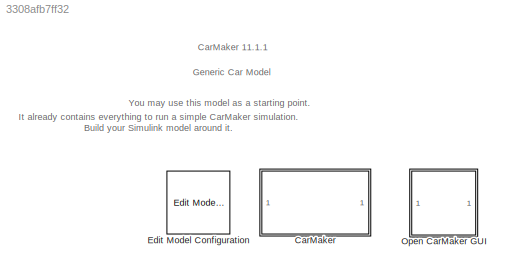
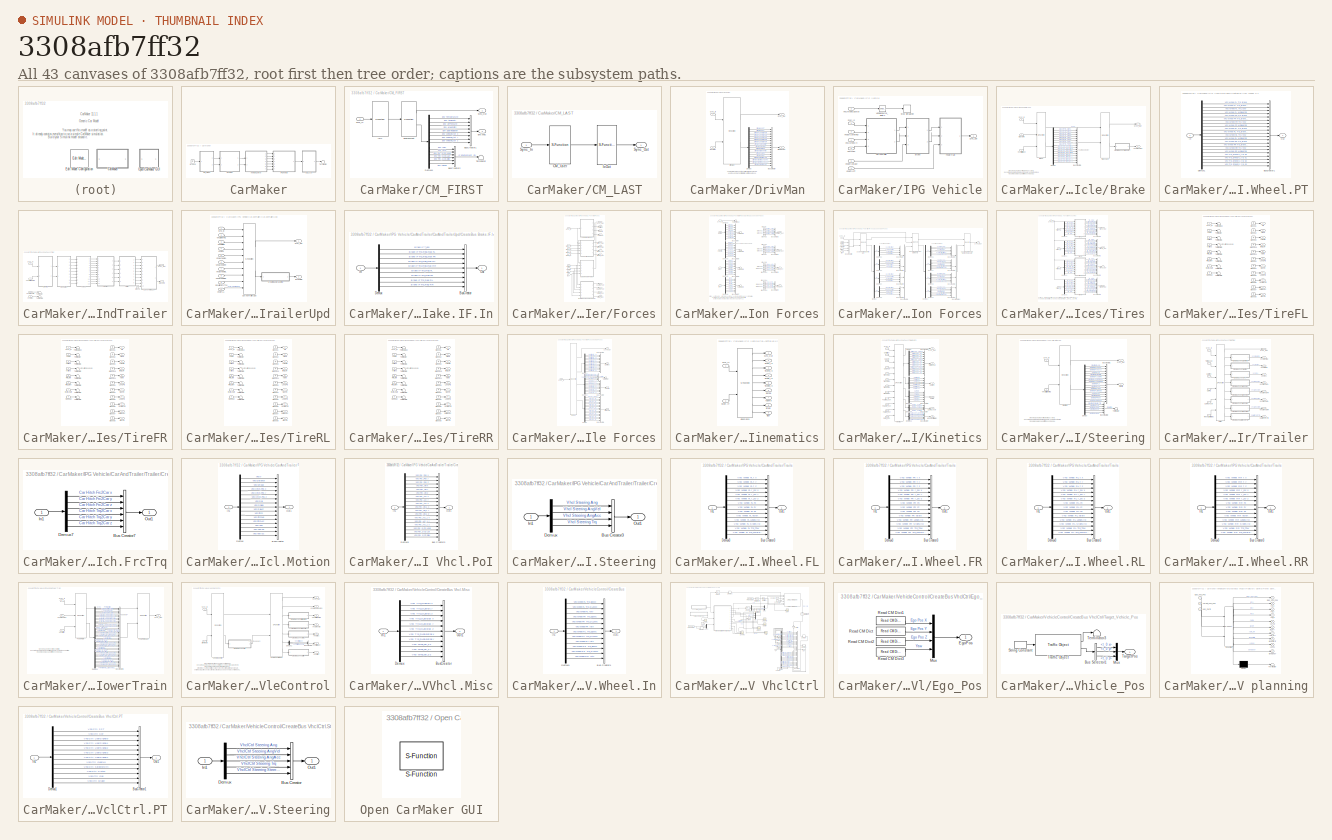
[diagram: thumbnail index - all 43 canvases of the model, root first then tree order]
MODEL slx_3308afb7ff32
KIND model
CONFIG AbsTol = auto
CONFIG EnableMultiTasking = on
CONFIG FixedStep = auto
CONFIG MaxStep = auto
CONFIG MinStep = auto
CONFIG RelTol = 1e-3
CONFIG SampleTimeConstraint = Unconstrained
CONFIG SolverName = ode45
CONFIG StartTime = 0.0
CONFIG StopTime = inf
BLOCK [SubSystem] CarMaker
  Ports = []
  RequestExecContextInheritance = off
  TreatAsAtomicUnit = on
BLOCK [SubSystem] CarMaker/CM_FIRST
  Ports = [1, 2]
  RequestExecContextInheritance = off
BLOCK [BusCreator] CarMaker/CM_FIRST/BusCreator1
  InheritFromInputs = on
  Inputs = 8
  Ports = [8, 1]
BLOCK [BusCreator] CarMaker/CM_FIRST/BusCreator2
  InheritFromInputs = on
  Inputs = 6
  Ports = [6, 1]
BLOCK [Demux] CarMaker/CM_FIRST/Demux1
  DisplayOption = none
  Outputs = 14
  Ports = [1, 14]
BLOCK [Outport] CarMaker/CM_FIRST/Env.Misc
  Port = 2
  VectorParamsAs1DForOutWhenUnconnected = off
BLOCK [S-Function] CarMaker/CM_FIRST/Environment
  EnableBusSupport = off
  FunctionName = CM_Sfun
  Parameters = 'Environment'
  Ports = [1, 2]
  SFcnIsStateOwnerBlock = off
  SFunctionDeploymentMode = off
BLOCK [S-Function] CarMaker/CM_FIRST/IoIn
  EnableBusSupport = off
  FunctionName = CM_Sfun
  Parameters = 'IoIn'
  Ports = [1, 1]
  SFcnIsStateOwnerBlock = off
  SFunctionDeploymentMode = off
BLOCK [Inport] CarMaker/CM_FIRST/Sync_In
BLOCK [Outport] CarMaker/CM_FIRST/Sync_Out
  VectorParamsAs1DForOutWhenUnconnected = off
BLOCK [Terminator] CarMaker/CM_FIRST/Terminator
BLOCK [SubSystem] CarMaker/CM_LAST
  Ports = [1, 1]
  RequestExecContextInheritance = off
BLOCK [S-Function] CarMaker/CM_LAST/CM_User
  EnableBusSupport = off
  FunctionName = CM_Sfun
  Parameters = 'CM_User'
  Ports = [1, 1]
  SFcnIsStateOwnerBlock = off
  SFunctionDeploymentMode = off
BLOCK [S-Function] CarMaker/CM_LAST/IoOut
  EnableBusSupport = off
  FunctionName = CM_Sfun
  Parameters = 'IoOut'
  Ports = [1, 1]
  SFcnIsStateOwnerBlock = off
  SFunctionDeploymentMode = off
BLOCK [Inport] CarMaker/CM_LAST/Sync_In
BLOCK [Outport] CarMaker/CM_LAST/Sync_Out
  VectorParamsAs1DForOutWhenUnconnected = off
BLOCK [SubSystem] CarMaker/DrivMan
  Ports = [2, 2]
  RequestExecContextInheritance = off
BLOCK [BusCreator] CarMaker/DrivMan/BusCreator
  InheritFromInputs = on
  Inputs = 17
  Ports = [17, 1]
BLOCK [Demux] CarMaker/DrivMan/Demux
  DisplayOption = none
  Outputs = 17
  Ports = [1, 17]
BLOCK [S-Function] CarMaker/DrivMan/DrivMan
  EnableBusSupport = off
  FunctionName = CM_Sfun
  Parameters = 'DrivMan'
  Ports = [2, 2]
  SFcnIsStateOwnerBlock = off
  SFunctionDeploymentMode = off
BLOCK [Outport] CarMaker/DrivMan/DrivMan.Out
  Port = 2
  VectorParamsAs1DForOutWhenUnconnected = off
BLOCK [Inport] CarMaker/DrivMan/Env.Misc
  Port = 2
BLOCK [Inport] CarMaker/DrivMan/Sync_In
BLOCK [Outport] CarMaker/DrivMan/Sync_Out
  VectorParamsAs1DForOutWhenUnconnected = off
BLOCK [Ground] CarMaker/Ground
BLOCK [SubSystem] CarMaker/IPG Vehicle
  Ports = [7, 1]
  RequestExecContextInheritance = off
BLOCK [SubSystem] CarMaker/IPG Vehicle/Brake
  Ports = [3, 2]
  RequestExecContextInheritance = off
BLOCK [S-Function] CarMaker/IPG Vehicle/Brake/Brake
  EnableBusSupport = off
  FunctionName = CM_Sfun
  Parameters = 'Brake'
  Ports = [3, 2]
  SFcnIsStateOwnerBlock = off
  SFunctionDeploymentMode = off
BLOCK [Inport] CarMaker/IPG Vehicle/Brake/Brake.IF.In
  Port = 2
BLOCK [S-Function] CarMaker/IPG Vehicle/Brake/BrakeUpd
  EnableBusSupport = off
  FunctionName = CM_Sfun
  Parameters = 'BrakeUpd'
  Ports = [2, 2]
  SFcnIsStateOwnerBlock = off
  SFunctionDeploymentMode = off
BLOCK [BusCreator] CarMaker/IPG Vehicle/Brake/BusCreator1
  InheritFromInputs = on
  Inputs = 16
  Ports = [16, 1]
BLOCK [SubSystem] CarMaker/IPG Vehicle/Brake/CreateBus Vhcl.Wheel.PT
  Ports = [1, 1]
  RequestExecContextInheritance = off
BLOCK [BusCreator] CarMaker/IPG Vehicle/Brake/CreateBus Vhcl.Wheel.PT/BusCreator1
  InheritFromInputs = on
  Inputs = 20
  Ports = [20, 1]
BLOCK [Demux] CarMaker/IPG Vehicle/Brake/CreateBus Vhcl.Wheel.PT/Demux1
  DisplayOption = none
  Outputs = 20
  Ports = [1, 20]
BLOCK [Inport] CarMaker/IPG Vehicle/Brake/CreateBus Vhcl.Wheel.PT/In
BLOCK [Outport] CarMaker/IPG Vehicle/Brake/CreateBus Vhcl.Wheel.PT/Out
  VectorParamsAs1DForOutWhenUnconnected = off
BLOCK [Demux] CarMaker/IPG Vehicle/Brake/Demux
  DisplayOption = none
  Outputs = 16
  Ports = [1, 16]
BLOCK [Inport] CarMaker/IPG Vehicle/Brake/Sync_In
BLOCK [Outport] CarMaker/IPG Vehicle/Brake/Sync_Out
  VectorParamsAs1DForOutWhenUnconnected = off
BLOCK [Outport] CarMaker/IPG Vehicle/Brake/Vhcl.Wheel.PT
  Port = 2
  VectorParamsAs1DForOutWhenUnconnected = off
BLOCK [Inport] CarMaker/IPG Vehicle/Brake/VhclCtrl.Brake
  Port = 3
BLOCK [SubSystem] CarMaker/IPG Vehicle/CarAndTrailer
  Ports = [4, 2]
  RequestExecContextInheritance = off
BLOCK [Outport] CarMaker/IPG Vehicle/CarAndTrailer/Brake.IF.In
  Port = 2
  VectorParamsAs1DForOutWhenUnconnected = off
BLOCK [SubSystem] CarMaker/IPG Vehicle/CarAndTrailer/CarAndTrailerUpd
  Ports = [10, 2]
  RequestExecContextInheritance = off
BLOCK [Outport] CarMaker/IPG Vehicle/CarAndTrailer/CarAndTrailerUpd/Brake.IF.In
  Port = 2
  VectorParamsAs1DForOutWhenUnconnected = off
BLOCK [Inport] CarMaker/IPG Vehicle/CarAndTrailer/CarAndTrailerUpd/Car.Hitch.FrcTrq
  Port = 9
BLOCK [S-Function] CarMaker/IPG Vehicle/CarAndTrailer/CarAndTrailerUpd/CarAndTrailerUpd
  EnableBusSupport = off
  FunctionName = CM_Sfun
  Parameters = 'CarAndTrUpd'
  Ports = [10, 2]
  SFcnIsStateOwnerBlock = off
  SFunctionDeploymentMode = off
BLOCK [SubSystem] CarMaker/IPG Vehicle/CarAndTrailer/CarAndTrailerUpd/CreateBus Brake.IF.In
  Ports = [1, 1]
  RequestExecContextInheritance = off
BLOCK [BusCreator] CarMaker/IPG Vehicle/CarAndTrailer/CarAndTrailerUpd/CreateBus Brake.IF.In/BusCreator
  InheritFromInputs = on
  Inputs = 9
  Ports = [9, 1]
BLOCK [Demux] CarMaker/IPG Vehicle/CarAndTrailer/CarAndTrailerUpd/CreateBus Brake.IF.In/Demux
  DisplayOption = none
  Outputs = 9
  Ports = [1, 9]
BLOCK [Inport] CarMaker/IPG Vehicle/CarAndTrailer/CarAndTrailerUpd/CreateBus Brake.IF.In/In
BLOCK [Outport] CarMaker/IPG Vehicle/CarAndTrailer/CarAndTrailerUpd/CreateBus Brake.IF.In/Out
  VectorParamsAs1DForOutWhenUnconnected = off
BLOCK [Inport] CarMaker/IPG Vehicle/CarAndTrailer/CarAndTrailerUpd/Sync_In
BLOCK [Outport] CarMaker/IPG Vehicle/CarAndTrailer/CarAndTrailerUpd/Sync_Out
  VectorParamsAs1DForOutWhenUnconnected = off
BLOCK [Inport] CarMaker/IPG Vehicle/CarAndTrailer/CarAndTrailerUpd/Vhcl.Fr1A
  Port = 10
BLOCK [Inport] CarMaker/IPG Vehicle/CarAndTrailer/CarAndTrailerUpd/Vhcl.Motion
  Port = 3
BLOCK [Inport] CarMaker/IPG Vehicle/CarAndTrailer/CarAndTrailerUpd/Vhcl.PoI
  Port = 4
BLOCK [Inport] CarMaker/IPG Vehicle/CarAndTrailer/CarAndTrailerUpd/Vhcl.Steering
  Port = 2
BLOCK [Inport] CarMaker/IPG Vehicle/CarAndTrailer/CarAndTrailerUpd/Vhcl.Wheel.FL
  Port = 5
BLOCK [Inport] CarMaker/IPG Vehicle/CarAndTrailer/CarAndTrailerUpd/Vhcl.Wheel.FR
  Port = 6
BLOCK [Inport] CarMaker/IPG Vehicle/CarAndTrailer/CarAndTrailerUpd/Vhcl.Wheel.RL
  Port = 7
BLOCK [Inport] CarMaker/IPG Vehicle/CarAndTrailer/CarAndTrailerUpd/Vhcl.Wheel.RR
  Port = 8
BLOCK [SubSystem] CarMaker/IPG Vehicle/CarAndTrailer/Forces
  Ports = [9, 12]
  RequestExecContextInheritance = off
BLOCK [Outport] CarMaker/IPG Vehicle/CarAndTrailer/Forces/Car.Aero
  Port = 3
  VectorParamsAs1DForOutWhenUnconnected = off
BLOCK [Outport] CarMaker/IPG Vehicle/CarAndTrailer/Forces/Car.Load
  Port = 4
  VectorParamsAs1DForOutWhenUnconnected = off
BLOCK [Outport] CarMaker/IPG Vehicle/CarAndTrailer/Forces/Car.Virtual
  Port = 2
  VectorParamsAs1DForOutWhenUnconnected = off
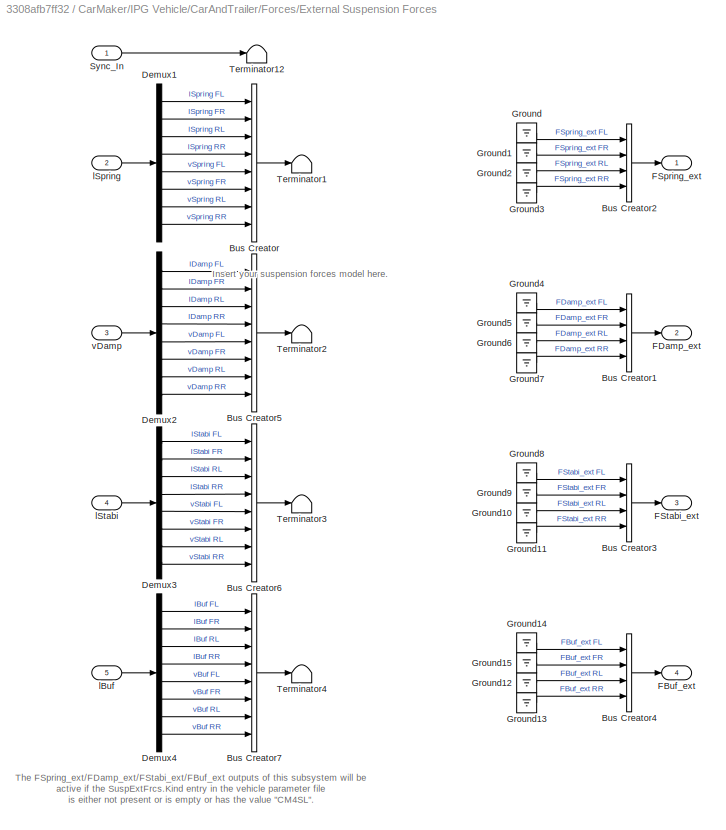
BLOCK [SubSystem] CarMaker/IPG Vehicle/CarAndTrailer/Forces/External Suspension Forces
  Ports = [5, 4]
  RequestExecContextInheritance = off
BLOCK [BusCreator] CarMaker/IPG Vehicle/CarAndTrailer/Forces/External Suspension Forces/Bus Creator
  DisplayOption = bar
  InheritFromInputs = on
  Inputs = 8
  Ports = [8, 1]
BLOCK [BusCreator] CarMaker/IPG Vehicle/CarAndTrailer/Forces/External Suspension Forces/Bus Creator1
  DisplayOption = bar
  InheritFromInputs = on
  Inputs = 4
  Ports = [4, 1]
BLOCK [BusCreator] CarMaker/IPG Vehicle/CarAndTrailer/Forces/External Suspension Forces/Bus Creator2
  DisplayOption = bar
  InheritFromInputs = on
  Inputs = 4
  Ports = [4, 1]
BLOCK [BusCreator] CarMaker/IPG Vehicle/CarAndTrailer/Forces/External Suspension Forces/Bus Creator3
  DisplayOption = bar
  InheritFromInputs = on
  Inputs = 4
  Ports = [4, 1]
BLOCK [BusCreator] CarMaker/IPG Vehicle/CarAndTrailer/Forces/External Suspension Forces/Bus Creator4
  DisplayOption = bar
  InheritFromInputs = on
  Inputs = 4
  Ports = [4, 1]
BLOCK [BusCreator] CarMaker/IPG Vehicle/CarAndTrailer/Forces/External Suspension Forces/Bus Creator5
  DisplayOption = bar
  InheritFromInputs = on
  Inputs = 8
  Ports = [8, 1]
BLOCK [BusCreator] CarMaker/IPG Vehicle/CarAndTrailer/Forces/External Suspension Forces/Bus Creator6
  DisplayOption = bar
  InheritFromInputs = on
  Inputs = 8
  Ports = [8, 1]
BLOCK [BusCreator] CarMaker/IPG Vehicle/CarAndTrailer/Forces/External Suspension Forces/Bus Creator7
  DisplayOption = bar
  InheritFromInputs = on
  Inputs = 8
  Ports = [8, 1]
BLOCK [Demux] CarMaker/IPG Vehicle/CarAndTrailer/Forces/External Suspension Forces/Demux1
  DisplayOption = none
  Outputs = 8
  Ports = [1, 8]
BLOCK [Demux] CarMaker/IPG Vehicle/CarAndTrailer/Forces/External Suspension Forces/Demux2
  DisplayOption = none
  Outputs = 8
  Ports = [1, 8]
BLOCK [Demux] CarMaker/IPG Vehicle/CarAndTrailer/Forces/External Suspension Forces/Demux3
  DisplayOption = none
  Outputs = 8
  Ports = [1, 8]
BLOCK [Demux] CarMaker/IPG Vehicle/CarAndTrailer/Forces/External Suspension Forces/Demux4
  DisplayOption = none
  Outputs = 8
  Ports = [1, 8]
BLOCK [Outport] CarMaker/IPG Vehicle/CarAndTrailer/Forces/External Suspension Forces/FBuf_ext
  Port = 4
  VectorParamsAs1DForOutWhenUnconnected = off
BLOCK [Outport] CarMaker/IPG Vehicle/CarAndTrailer/Forces/External Suspension Forces/FDamp_ext
  Port = 2
  VectorParamsAs1DForOutWhenUnconnected = off
BLOCK [Outport] CarMaker/IPG Vehicle/CarAndTrailer/Forces/External Suspension Forces/FSpring_ext
  VectorParamsAs1DForOutWhenUnconnected = off
BLOCK [Outport] CarMaker/IPG Vehicle/CarAndTrailer/Forces/External Suspension Forces/FStabi_ext
  Port = 3
  VectorParamsAs1DForOutWhenUnconnected = off
BLOCK [Ground] CarMaker/IPG Vehicle/CarAndTrailer/Forces/External Suspension Forces/Ground
BLOCK [Ground] CarMaker/IPG Vehicle/CarAndTrailer/Forces/External Suspension Forces/Ground1
BLOCK [Ground] CarMaker/IPG Vehicle/CarAndTrailer/Forces/External Suspension Forces/Ground10
BLOCK [Ground] CarMaker/IPG Vehicle/CarAndTrailer/Forces/External Suspension Forces/Ground11
BLOCK [Ground] CarMaker/IPG Vehicle/CarAndTrailer/Forces/External Suspension Forces/Ground12
BLOCK [Ground] CarMaker/IPG Vehicle/CarAndTrailer/Forces/External Suspension Forces/Ground13
BLOCK [Ground] CarMaker/IPG Vehicle/CarAndTrailer/Forces/External Suspension Forces/Ground14
BLOCK [Ground] CarMaker/IPG Vehicle/CarAndTrailer/Forces/External Suspension Forces/Ground15
BLOCK [Ground] CarMaker/IPG Vehicle/CarAndTrailer/Forces/External Suspension Forces/Ground2
BLOCK [Ground] CarMaker/IPG Vehicle/CarAndTrailer/Forces/External Suspension Forces/Ground3
BLOCK [Ground] CarMaker/IPG Vehicle/CarAndTrailer/Forces/External Suspension Forces/Ground4
BLOCK [Ground] CarMaker/IPG Vehicle/CarAndTrailer/Forces/External Suspension Forces/Ground5
BLOCK [Ground] CarMaker/IPG Vehicle/CarAndTrailer/Forces/External Suspension Forces/Ground6
BLOCK [Ground] CarMaker/IPG Vehicle/CarAndTrailer/Forces/External Suspension Forces/Ground7
BLOCK [Ground] CarMaker/IPG Vehicle/CarAndTrailer/Forces/External Suspension Forces/Ground8
BLOCK [Ground] CarMaker/IPG Vehicle/CarAndTrailer/Forces/External Suspension Forces/Ground9
BLOCK [Inport] CarMaker/IPG Vehicle/CarAndTrailer/Forces/External Suspension Forces/Sync_In
BLOCK [Terminator] CarMaker/IPG Vehicle/CarAndTrailer/Forces/External Suspension Forces/Terminator1
BLOCK [Terminator] CarMaker/IPG Vehicle/CarAndTrailer/Forces/External Suspension Forces/Terminator12
BLOCK [Terminator] CarMaker/IPG Vehicle/CarAndTrailer/Forces/External Suspension Forces/Terminator2
BLOCK [Terminator] CarMaker/IPG Vehicle/CarAndTrailer/Forces/External Suspension Forces/Terminator3
BLOCK [Terminator] CarMaker/IPG Vehicle/CarAndTrailer/Forces/External Suspension Forces/Terminator4
BLOCK [Inport] CarMaker/IPG Vehicle/CarAndTrailer/Forces/External Suspension Forces/lBuf
  Port = 5
BLOCK [Inport] CarMaker/IPG Vehicle/CarAndTrailer/Forces/External Suspension Forces/lSpring
  Port = 2
BLOCK [Inport] CarMaker/IPG Vehicle/CarAndTrailer/Forces/External Suspension Forces/lStabi
  Port = 4
BLOCK [Inport] CarMaker/IPG Vehicle/CarAndTrailer/Forces/External Suspension Forces/vDamp
  Port = 3
BLOCK [Outport] CarMaker/IPG Vehicle/CarAndTrailer/Forces/FBuf_ext
  Port = 12
  VectorParamsAs1DForOutWhenUnconnected = off
BLOCK [Outport] CarMaker/IPG Vehicle/CarAndTrailer/Forces/FDamp_ext
  Port = 10
  VectorParamsAs1DForOutWhenUnconnected = off
BLOCK [Outport] CarMaker/IPG Vehicle/CarAndTrailer/Forces/FSpring_ext
  Port = 9
  VectorParamsAs1DForOutWhenUnconnected = off
BLOCK [Outport] CarMaker/IPG Vehicle/CarAndTrailer/Forces/FStabi_ext
  Port = 11
  VectorParamsAs1DForOutWhenUnconnected = off
BLOCK [SubSystem] CarMaker/IPG Vehicle/CarAndTrailer/Forces/Suspension Forces
  Ports = [5, 1]
  RequestExecContextInheritance = off
BLOCK [BusCreator] CarMaker/IPG Vehicle/CarAndTrailer/Forces/Suspension Forces/Bus Creator
  DisplayOption = bar
  InheritFromInputs = on
  Inputs = 4
  Ports = [4, 1]
BLOCK [BusCreator] CarMaker/IPG Vehicle/CarAndTrailer/Forces/Suspension Forces/Bus Creator1
  DisplayOption = bar
  InheritFromInputs = on
  Inputs = 4
  Ports = [4, 1]
BLOCK [BusCreator] CarMaker/IPG Vehicle/CarAndTrailer/Forces/Suspension Forces/Bus Creator10
  DisplayOption = bar
  InheritFromInputs = on
  Inputs = 4
  Ports = [4, 1]
BLOCK [BusCreator] CarMaker/IPG Vehicle/CarAndTrailer/Forces/Suspension Forces/Bus Creator2
  DisplayOption = bar
  InheritFromInputs = on
  Inputs = 4
  Ports = [4, 1]
BLOCK [BusCreator] CarMaker/IPG Vehicle/CarAndTrailer/Forces/Suspension Forces/Bus Creator3
  DisplayOption = bar
  InheritFromInputs = on
  Inputs = 4
  Ports = [4, 1]
BLOCK [BusCreator] CarMaker/IPG Vehicle/CarAndTrailer/Forces/Suspension Forces/Bus Creator4
  DisplayOption = bar
  InheritFromInputs = on
  Inputs = 6
  Ports = [6, 1]
BLOCK [BusCreator] CarMaker/IPG Vehicle/CarAndTrailer/Forces/Suspension Forces/Bus Creator5
  DisplayOption = bar
  InheritFromInputs = on
  Inputs = 6
  Ports = [6, 1]
BLOCK [BusCreator] CarMaker/IPG Vehicle/CarAndTrailer/Forces/Suspension Forces/Bus Creator6
  DisplayOption = bar
  InheritFromInputs = on
  Inputs = 6
  Ports = [6, 1]
BLOCK [BusCreator] CarMaker/IPG Vehicle/CarAndTrailer/Forces/Suspension Forces/Bus Creator7
  DisplayOption = bar
  InheritFromInputs = on
  Inputs = 6
  Ports = [6, 1]
BLOCK [BusCreator] CarMaker/IPG Vehicle/CarAndTrailer/Forces/Suspension Forces/Bus Creator8
  DisplayOption = bar
  InheritFromInputs = on
  Inputs = 4
  Ports = [4, 1]
BLOCK [BusCreator] CarMaker/IPG Vehicle/CarAndTrailer/Forces/Suspension Forces/Bus Creator9
  DisplayOption = bar
  InheritFromInputs = on
  Inputs = 4
  Ports = [4, 1]
BLOCK [Demux] CarMaker/IPG Vehicle/CarAndTrailer/Forces/Suspension Forces/Demux
  Ports = [1, 4]
BLOCK [Demux] CarMaker/IPG Vehicle/CarAndTrailer/Forces/Suspension Forces/Demux1
  Ports = [1, 4]
BLOCK [Demux] CarMaker/IPG Vehicle/CarAndTrailer/Forces/Suspension Forces/Demux2
  Ports = [1, 4]
BLOCK [Demux] CarMaker/IPG Vehicle/CarAndTrailer/Forces/Suspension Forces/Demux3
  Ports = [1, 4]
BLOCK [Demux] CarMaker/IPG Vehicle/CarAndTrailer/Forces/Suspension Forces/Demux4
  Ports = [1, 4]
BLOCK [Demux] CarMaker/IPG Vehicle/CarAndTrailer/Forces/Suspension Forces/Demux5
  Ports = [1, 4]
BLOCK [Demux] CarMaker/IPG Vehicle/CarAndTrailer/Forces/Suspension Forces/Demux6
  Outputs = 6
  Ports = [1, 6]
BLOCK [Demux] CarMaker/IPG Vehicle/CarAndTrailer/Forces/Suspension Forces/Demux7
  Outputs = 6
  Ports = [1, 6]
BLOCK [Demux] CarMaker/IPG Vehicle/CarAndTrailer/Forces/Suspension Forces/Demux8
  Outputs = 6
  Ports = [1, 6]
BLOCK [Demux] CarMaker/IPG Vehicle/CarAndTrailer/Forces/Suspension Forces/Demux9
  Outputs = 6
  Ports = [1, 6]
BLOCK [S-Function] CarMaker/IPG Vehicle/CarAndTrailer/Forces/Suspension Forces/Suspension Control Unit
  EnableBusSupport = off
  FunctionName = CM_Sfun
  Parameters = 'ForcesSuspControl'
  Ports = [2, 2]
  SFcnIsStateOwnerBlock = off
  SFunctionDeploymentMode = off
BLOCK [S-Function] CarMaker/IPG Vehicle/CarAndTrailer/Forces/Suspension Forces/Suspension Force Elements
  EnableBusSupport = off
  FunctionName = CM_Sfun
  Parameters = 'ForcesSusp'
  Ports = [3, 2]
  SFcnIsStateOwnerBlock = off
  SFunctionDeploymentMode = off
BLOCK [S-Function] CarMaker/IPG Vehicle/CarAndTrailer/Forces/Suspension Forces/Suspension Force Elements Update
  EnableBusSupport = off
  FunctionName = CM_Sfun
  Parameters = 'ForcesSuspUpd'
  Ports = [2, 1]
  SFcnIsStateOwnerBlock = off
  SFunctionDeploymentMode = off
BLOCK [Inport] CarMaker/IPG Vehicle/CarAndTrailer/Forces/Suspension Forces/Sync_In
BLOCK [Outport] CarMaker/IPG Vehicle/CarAndTrailer/Forces/Suspension Forces/Sync_Out
  VectorParamsAs1DForOutWhenUnconnected = off
BLOCK [Inport] CarMaker/IPG Vehicle/CarAndTrailer/Forces/Suspension Forces/lBuf
  Port = 5
BLOCK [Inport] CarMaker/IPG Vehicle/CarAndTrailer/Forces/Suspension Forces/lSpring
  Port = 2
BLOCK [Inport] CarMaker/IPG Vehicle/CarAndTrailer/Forces/Suspension Forces/lStabi
  Port = 4
BLOCK [Inport] CarMaker/IPG Vehicle/CarAndTrailer/Forces/Suspension Forces/vDamp
  Port = 3
BLOCK [Inport] CarMaker/IPG Vehicle/CarAndTrailer/Forces/Sync_In
BLOCK [Outport] CarMaker/IPG Vehicle/CarAndTrailer/Forces/Sync_Out
  VectorParamsAs1DForOutWhenUnconnected = off
BLOCK [Inport] CarMaker/IPG Vehicle/CarAndTrailer/Forces/TireFL_In
  Port = 2
BLOCK [Outport] CarMaker/IPG Vehicle/CarAndTrailer/Forces/TireFL_Out
  Port = 5
  VectorParamsAs1DForOutWhenUnconnected = off
BLOCK [Inport] CarMaker/IPG Vehicle/CarAndTrailer/Forces/TireFR_In
  Port = 3
BLOCK [Outport] CarMaker/IPG Vehicle/CarAndTrailer/Forces/TireFR_Out
  Port = 6
  VectorParamsAs1DForOutWhenUnconnected = off
BLOCK [Inport] CarMaker/IPG Vehicle/CarAndTrailer/Forces/TireRL_In
  Port = 4
BLOCK [Outport] CarMaker/IPG Vehicle/CarAndTrailer/Forces/TireRL_Out
  Port = 7
  VectorParamsAs1DForOutWhenUnconnected = off
BLOCK [Inport] CarMaker/IPG Vehicle/CarAndTrailer/Forces/TireRR_In
  Port = 5
BLOCK [Outport] CarMaker/IPG Vehicle/CarAndTrailer/Forces/TireRR_Out
  Port = 8
  VectorParamsAs1DForOutWhenUnconnected = off
BLOCK [SubSystem] CarMaker/IPG Vehicle/CarAndTrailer/Forces/Tires
  Ports = [5, 4]
  RequestExecContextInheritance = off
BLOCK [BusCreator] CarMaker/IPG Vehicle/CarAndTrailer/Forces/Tires/Bus Creator1
  DisplayOption = bar
  InheritFromInputs = on
  Inputs = 11
  Ports = [11, 1]
BLOCK [BusCreator] CarMaker/IPG Vehicle/CarAndTrailer/Forces/Tires/Bus Creator2
  DisplayOption = bar
  InheritFromInputs = on
  Inputs = 11
  Ports = [11, 1]
BLOCK [BusCreator] CarMaker/IPG Vehicle/CarAndTrailer/Forces/Tires/Bus Creator3
  DisplayOption = bar
  InheritFromInputs = on
  Inputs = 11
  Ports = [11, 1]
BLOCK [BusCreator] CarMaker/IPG Vehicle/CarAndTrailer/Forces/Tires/Bus Creator4
  DisplayOption = bar
  InheritFromInputs = on
  Inputs = 11
  Ports = [11, 1]
BLOCK [Demux] CarMaker/IPG Vehicle/CarAndTrailer/Forces/Tires/Demux1
  DisplayOption = none
  Outputs = 7
  Ports = [1, 7]
BLOCK [Demux] CarMaker/IPG Vehicle/CarAndTrailer/Forces/Tires/Demux2
  DisplayOption = none
  Outputs = 7
  Ports = [1, 7]
BLOCK [Demux] CarMaker/IPG Vehicle/CarAndTrailer/Forces/Tires/Demux3
  DisplayOption = none
  Outputs = 7
  Ports = [1, 7]
BLOCK [Demux] CarMaker/IPG Vehicle/CarAndTrailer/Forces/Tires/Demux8
  DisplayOption = none
  Outputs = 7
  Ports = [1, 7]
BLOCK [Inport] CarMaker/IPG Vehicle/CarAndTrailer/Forces/Tires/Sync_In
BLOCK [SubSystem] CarMaker/IPG Vehicle/CarAndTrailer/Forces/Tires/TireFL
  Ports = [8, 11]
  RequestExecContextInheritance = off
BLOCK [Outport] CarMaker/IPG Vehicle/CarAndTrailer/Forces/Tires/TireFL/AlignTrq
  Port = 11
  VectorParamsAs1DForOutWhenUnconnected = off
BLOCK [Outport] CarMaker/IPG Vehicle/CarAndTrailer/Forces/Tires/TireFL/Alpha
  Port = 2
  VectorParamsAs1DForOutWhenUnconnected = off
BLOCK [Ground] CarMaker/IPG Vehicle/CarAndTrailer/Forces/Tires/TireFL/Ground1
BLOCK [Ground] CarMaker/IPG Vehicle/CarAndTrailer/Forces/Tires/TireFL/Ground10
BLOCK [Ground] CarMaker/IPG Vehicle/CarAndTrailer/Forces/Tires/TireFL/Ground11
BLOCK [Ground] CarMaker/IPG Vehicle/CarAndTrailer/Forces/Tires/TireFL/Ground2
BLOCK [Ground] CarMaker/IPG Vehicle/CarAndTrailer/Forces/Tires/TireFL/Ground3
BLOCK [Ground] CarMaker/IPG Vehicle/CarAndTrailer/Forces/Tires/TireFL/Ground4
BLOCK [Ground] CarMaker/IPG Vehicle/CarAndTrailer/Forces/Tires/TireFL/Ground5
BLOCK [Ground] CarMaker/IPG Vehicle/CarAndTrailer/Forces/Tires/TireFL/Ground6
BLOCK [Ground] CarMaker/IPG Vehicle/CarAndTrailer/Forces/Tires/TireFL/Ground7
BLOCK [Ground] CarMaker/IPG Vehicle/CarAndTrailer/Forces/Tires/TireFL/Ground8
BLOCK [Ground] CarMaker/IPG Vehicle/CarAndTrailer/Forces/Tires/TireFL/Ground9
BLOCK [Inport] CarMaker/IPG Vehicle/CarAndTrailer/Forces/Tires/TireFL/InclinAngle
  Port = 7
BLOCK [Inport] CarMaker/IPG Vehicle/CarAndTrailer/Forces/Tires/TireFL/Load
  Port = 2
BLOCK [Outport] CarMaker/IPG Vehicle/CarAndTrailer/Forces/Tires/TireFL/LoadFrc
  Port = 8
  VectorParamsAs1DForOutWhenUnconnected = off
BLOCK [Outport] CarMaker/IPG Vehicle/CarAndTrailer/Forces/Tires/TireFL/LongFrc
  Port = 6
  VectorParamsAs1DForOutWhenUnconnected = off
BLOCK [Outport] CarMaker/IPG Vehicle/CarAndTrailer/Forces/Tires/TireFL/OverturnTrq
  Port = 9
  VectorParamsAs1DForOutWhenUnconnected = off
BLOCK [Inport] CarMaker/IPG Vehicle/CarAndTrailer/Forces/Tires/TireFL/Rim_rotv
  Port = 5
BLOCK [Inport] CarMaker/IPG Vehicle/CarAndTrailer/Forces/Tires/TireFL/Rim_turnv
  Port = 6
BLOCK [Outport] CarMaker/IPG Vehicle/CarAndTrailer/Forces/Tires/TireFL/RollResist
  Port = 10
  VectorParamsAs1DForOutWhenUnconnected = off
BLOCK [Outport] CarMaker/IPG Vehicle/CarAndTrailer/Forces/Tires/TireFL/SideFrc
  Port = 7
  VectorParamsAs1DForOutWhenUnconnected = off
BLOCK [Outport] CarMaker/IPG Vehicle/CarAndTrailer/Forces/Tires/TireFL/Slp
  VectorParamsAs1DForOutWhenUnconnected = off
BLOCK [Inport] CarMaker/IPG Vehicle/CarAndTrailer/Forces/Tires/TireFL/Sync_In
BLOCK [Terminator] CarMaker/IPG Vehicle/CarAndTrailer/Forces/Tires/TireFL/Terminator
BLOCK [Terminator] CarMaker/IPG Vehicle/CarAndTrailer/Forces/Tires/TireFL/Terminator1
BLOCK [Terminator] CarMaker/IPG Vehicle/CarAndTrailer/Forces/Tires/TireFL/Terminator12
BLOCK [Terminator] CarMaker/IPG Vehicle/CarAndTrailer/Forces/Tires/TireFL/Terminator2
BLOCK [Terminator] CarMaker/IPG Vehicle/CarAndTrailer/Forces/Tires/TireFL/Terminator3
BLOCK [Terminator] CarMaker/IPG Vehicle/CarAndTrailer/Forces/Tires/TireFL/Terminator4
BLOCK [Terminator] CarMaker/IPG Vehicle/CarAndTrailer/Forces/Tires/TireFL/Terminator5
BLOCK [Terminator] CarMaker/IPG Vehicle/CarAndTrailer/Forces/Tires/TireFL/Terminator6
BLOCK [Outport] CarMaker/IPG Vehicle/CarAndTrailer/Forces/Tires/TireFL/TurnSlp
  Port = 3
  VectorParamsAs1DForOutWhenUnconnected = off
BLOCK [Inport] CarMaker/IPG Vehicle/CarAndTrailer/Forces/Tires/TireFL/muRoad
  Port = 8
BLOCK [Outport] CarMaker/IPG Vehicle/CarAndTrailer/Forces/Tires/TireFL/rBelt_eff
  Port = 4
  VectorParamsAs1DForOutWhenUnconnected = off
BLOCK [Outport] CarMaker/IPG Vehicle/CarAndTrailer/Forces/Tires/TireFL/vBelt
  Port = 5
  VectorParamsAs1DForOutWhenUnconnected = off
BLOCK [Inport] CarMaker/IPG Vehicle/CarAndTrailer/Forces/Tires/TireFL/vxtrans
  Port = 3
BLOCK [Inport] CarMaker/IPG Vehicle/CarAndTrailer/Forces/Tires/TireFL/vytrans
  Port = 4
BLOCK [Inport] CarMaker/IPG Vehicle/CarAndTrailer/Forces/Tires/TireFL_In
  Port = 2
BLOCK [Outport] CarMaker/IPG Vehicle/CarAndTrailer/Forces/Tires/TireFL_Out
  VectorParamsAs1DForOutWhenUnconnected = off
BLOCK [SubSystem] CarMaker/IPG Vehicle/CarAndTrailer/Forces/Tires/TireFR
  Ports = [8, 11]
  RequestExecContextInheritance = off
BLOCK [Outport] CarMaker/IPG Vehicle/CarAndTrailer/Forces/Tires/TireFR/AlignTrq
  Port = 11
  VectorParamsAs1DForOutWhenUnconnected = off
BLOCK [Outport] CarMaker/IPG Vehicle/CarAndTrailer/Forces/Tires/TireFR/Alpha
  Port = 2
  VectorParamsAs1DForOutWhenUnconnected = off
BLOCK [Ground] CarMaker/IPG Vehicle/CarAndTrailer/Forces/Tires/TireFR/Ground1
BLOCK [Ground] CarMaker/IPG Vehicle/CarAndTrailer/Forces/Tires/TireFR/Ground10
BLOCK [Ground] CarMaker/IPG Vehicle/CarAndTrailer/Forces/Tires/TireFR/Ground11
BLOCK [Ground] CarMaker/IPG Vehicle/CarAndTrailer/Forces/Tires/TireFR/Ground2
BLOCK [Ground] CarMaker/IPG Vehicle/CarAndTrailer/Forces/Tires/TireFR/Ground3
BLOCK [Ground] CarMaker/IPG Vehicle/CarAndTrailer/Forces/Tires/TireFR/Ground4
BLOCK [Ground] CarMaker/IPG Vehicle/CarAndTrailer/Forces/Tires/TireFR/Ground5
BLOCK [Ground] CarMaker/IPG Vehicle/CarAndTrailer/Forces/Tires/TireFR/Ground6
BLOCK [Ground] CarMaker/IPG Vehicle/CarAndTrailer/Forces/Tires/TireFR/Ground7
BLOCK [Ground] CarMaker/IPG Vehicle/CarAndTrailer/Forces/Tires/TireFR/Ground8
BLOCK [Ground] CarMaker/IPG Vehicle/CarAndTrailer/Forces/Tires/TireFR/Ground9
BLOCK [Inport] CarMaker/IPG Vehicle/CarAndTrailer/Forces/Tires/TireFR/InclinAngle
  Port = 7
BLOCK [Inport] CarMaker/IPG Vehicle/CarAndTrailer/Forces/Tires/TireFR/Load
  Port = 2
BLOCK [Outport] CarMaker/IPG Vehicle/CarAndTrailer/Forces/Tires/TireFR/LoadFrc
  Port = 8
  VectorParamsAs1DForOutWhenUnconnected = off
BLOCK [Outport] CarMaker/IPG Vehicle/CarAndTrailer/Forces/Tires/TireFR/LongFrc
  Port = 6
  VectorParamsAs1DForOutWhenUnconnected = off
BLOCK [Outport] CarMaker/IPG Vehicle/CarAndTrailer/Forces/Tires/TireFR/OverturnTrq
  Port = 9
  VectorParamsAs1DForOutWhenUnconnected = off
BLOCK [Inport] CarMaker/IPG Vehicle/CarAndTrailer/Forces/Tires/TireFR/Rim_rotv
  Port = 5
BLOCK [Inport] CarMaker/IPG Vehicle/CarAndTrailer/Forces/Tires/TireFR/Rim_turnv
  Port = 6
BLOCK [Outport] CarMaker/IPG Vehicle/CarAndTrailer/Forces/Tires/TireFR/RollResist
  Port = 10
  VectorParamsAs1DForOutWhenUnconnected = off
BLOCK [Outport] CarMaker/IPG Vehicle/CarAndTrailer/Forces/Tires/TireFR/SideFrc
  Port = 7
  VectorParamsAs1DForOutWhenUnconnected = off
BLOCK [Outport] CarMaker/IPG Vehicle/CarAndTrailer/Forces/Tires/TireFR/Slp
  VectorParamsAs1DForOutWhenUnconnected = off
BLOCK [Inport] CarMaker/IPG Vehicle/CarAndTrailer/Forces/Tires/TireFR/Sync_In
BLOCK [Terminator] CarMaker/IPG Vehicle/CarAndTrailer/Forces/Tires/TireFR/Terminator
BLOCK [Terminator] CarMaker/IPG Vehicle/CarAndTrailer/Forces/Tires/TireFR/Terminator1
BLOCK [Terminator] CarMaker/IPG Vehicle/CarAndTrailer/Forces/Tires/TireFR/Terminator12
BLOCK [Terminator] CarMaker/IPG Vehicle/CarAndTrailer/Forces/Tires/TireFR/Terminator2
BLOCK [Terminator] CarMaker/IPG Vehicle/CarAndTrailer/Forces/Tires/TireFR/Terminator3
BLOCK [Terminator] CarMaker/IPG Vehicle/CarAndTrailer/Forces/Tires/TireFR/Terminator4
BLOCK [Terminator] CarMaker/IPG Vehicle/CarAndTrailer/Forces/Tires/TireFR/Terminator5
BLOCK [Terminator] CarMaker/IPG Vehicle/CarAndTrailer/Forces/Tires/TireFR/Terminator6
BLOCK [Outport] CarMaker/IPG Vehicle/CarAndTrailer/Forces/Tires/TireFR/TurnSlp
  Port = 3
  VectorParamsAs1DForOutWhenUnconnected = off
BLOCK [Inport] CarMaker/IPG Vehicle/CarAndTrailer/Forces/Tires/TireFR/muRoad
  Port = 8
BLOCK [Outport] CarMaker/IPG Vehicle/CarAndTrailer/Forces/Tires/TireFR/rBelt_eff
  Port = 4
  VectorParamsAs1DForOutWhenUnconnected = off
BLOCK [Outport] CarMaker/IPG Vehicle/CarAndTrailer/Forces/Tires/TireFR/vBelt
  Port = 5
  VectorParamsAs1DForOutWhenUnconnected = off
BLOCK [Inport] CarMaker/IPG Vehicle/CarAndTrailer/Forces/Tires/TireFR/vxtrans
  Port = 3
BLOCK [Inport] CarMaker/IPG Vehicle/CarAndTrailer/Forces/Tires/TireFR/vytrans
  Port = 4
BLOCK [Inport] CarMaker/IPG Vehicle/CarAndTrailer/Forces/Tires/TireFR_In
  Port = 3
BLOCK [Outport] CarMaker/IPG Vehicle/CarAndTrailer/Forces/Tires/TireFR_Out
  Port = 2
  VectorParamsAs1DForOutWhenUnconnected = off
BLOCK [SubSystem] CarMaker/IPG Vehicle/CarAndTrailer/Forces/Tires/TireRL
  Ports = [8, 11]
  RequestExecContextInheritance = off
BLOCK [Outport] CarMaker/IPG Vehicle/CarAndTrailer/Forces/Tires/TireRL/AlignTrq
  Port = 11
  VectorParamsAs1DForOutWhenUnconnected = off
BLOCK [Outport] CarMaker/IPG Vehicle/CarAndTrailer/Forces/Tires/TireRL/Alpha
  Port = 2
  VectorParamsAs1DForOutWhenUnconnected = off
BLOCK [Ground] CarMaker/IPG Vehicle/CarAndTrailer/Forces/Tires/TireRL/Ground1
BLOCK [Ground] CarMaker/IPG Vehicle/CarAndTrailer/Forces/Tires/TireRL/Ground10
BLOCK [Ground] CarMaker/IPG Vehicle/CarAndTrailer/Forces/Tires/TireRL/Ground11
BLOCK [Ground] CarMaker/IPG Vehicle/CarAndTrailer/Forces/Tires/TireRL/Ground2
BLOCK [Ground] CarMaker/IPG Vehicle/CarAndTrailer/Forces/Tires/TireRL/Ground3
BLOCK [Ground] CarMaker/IPG Vehicle/CarAndTrailer/Forces/Tires/TireRL/Ground4
BLOCK [Ground] CarMaker/IPG Vehicle/CarAndTrailer/Forces/Tires/TireRL/Ground5
BLOCK [Ground] CarMaker/IPG Vehicle/CarAndTrailer/Forces/Tires/TireRL/Ground6
BLOCK [Ground] CarMaker/IPG Vehicle/CarAndTrailer/Forces/Tires/TireRL/Ground7
BLOCK [Ground] CarMaker/IPG Vehicle/CarAndTrailer/Forces/Tires/TireRL/Ground8
BLOCK [Ground] CarMaker/IPG Vehicle/CarAndTrailer/Forces/Tires/TireRL/Ground9
BLOCK [Inport] CarMaker/IPG Vehicle/CarAndTrailer/Forces/Tires/TireRL/InclinAngle
  Port = 7
BLOCK [Inport] CarMaker/IPG Vehicle/CarAndTrailer/Forces/Tires/TireRL/Load
  Port = 2
BLOCK [Outport] CarMaker/IPG Vehicle/CarAndTrailer/Forces/Tires/TireRL/LoadFrc
  Port = 8
  VectorParamsAs1DForOutWhenUnconnected = off
BLOCK [Outport] CarMaker/IPG Vehicle/CarAndTrailer/Forces/Tires/TireRL/LongFrc
  Port = 6
  VectorParamsAs1DForOutWhenUnconnected = off
BLOCK [Outport] CarMaker/IPG Vehicle/CarAndTrailer/Forces/Tires/TireRL/OverturnTrq
  Port = 9
  VectorParamsAs1DForOutWhenUnconnected = off
BLOCK [Inport] CarMaker/IPG Vehicle/CarAndTrailer/Forces/Tires/TireRL/Rim_rotv
  Port = 5
BLOCK [Inport] CarMaker/IPG Vehicle/CarAndTrailer/Forces/Tires/TireRL/Rim_turnv
  Port = 6
BLOCK [Outport] CarMaker/IPG Vehicle/CarAndTrailer/Forces/Tires/TireRL/RollResist
  Port = 10
  VectorParamsAs1DForOutWhenUnconnected = off
BLOCK [Outport] CarMaker/IPG Vehicle/CarAndTrailer/Forces/Tires/TireRL/SideFrc
  Port = 7
  VectorParamsAs1DForOutWhenUnconnected = off
BLOCK [Outport] CarMaker/IPG Vehicle/CarAndTrailer/Forces/Tires/TireRL/Slp
  VectorParamsAs1DForOutWhenUnconnected = off
BLOCK [Inport] CarMaker/IPG Vehicle/CarAndTrailer/Forces/Tires/TireRL/Sync_In
BLOCK [Terminator] CarMaker/IPG Vehicle/CarAndTrailer/Forces/Tires/TireRL/Terminator
BLOCK [Terminator] CarMaker/IPG Vehicle/CarAndTrailer/Forces/Tires/TireRL/Terminator1
BLOCK [Terminator] CarMaker/IPG Vehicle/CarAndTrailer/Forces/Tires/TireRL/Terminator12
BLOCK [Terminator] CarMaker/IPG Vehicle/CarAndTrailer/Forces/Tires/TireRL/Terminator2
BLOCK [Terminator] CarMaker/IPG Vehicle/CarAndTrailer/Forces/Tires/TireRL/Terminator3
BLOCK [Terminator] CarMaker/IPG Vehicle/CarAndTrailer/Forces/Tires/TireRL/Terminator4
BLOCK [Terminator] CarMaker/IPG Vehicle/CarAndTrailer/Forces/Tires/TireRL/Terminator5
BLOCK [Terminator] CarMaker/IPG Vehicle/CarAndTrailer/Forces/Tires/TireRL/Terminator6
BLOCK [Outport] CarMaker/IPG Vehicle/CarAndTrailer/Forces/Tires/TireRL/TurnSlp
  Port = 3
  VectorParamsAs1DForOutWhenUnconnected = off
BLOCK [Inport] CarMaker/IPG Vehicle/CarAndTrailer/Forces/Tires/TireRL/muRoad
  Port = 8
BLOCK [Outport] CarMaker/IPG Vehicle/CarAndTrailer/Forces/Tires/TireRL/rBelt_eff
  Port = 4
  VectorParamsAs1DForOutWhenUnconnected = off
BLOCK [Outport] CarMaker/IPG Vehicle/CarAndTrailer/Forces/Tires/TireRL/vBelt
  Port = 5
  VectorParamsAs1DForOutWhenUnconnected = off
BLOCK [Inport] CarMaker/IPG Vehicle/CarAndTrailer/Forces/Tires/TireRL/vxtrans
  Port = 3
BLOCK [Inport] CarMaker/IPG Vehicle/CarAndTrailer/Forces/Tires/TireRL/vytrans
  Port = 4
BLOCK [Inport] CarMaker/IPG Vehicle/CarAndTrailer/Forces/Tires/TireRL_In
  Port = 4
BLOCK [Outport] CarMaker/IPG Vehicle/CarAndTrailer/Forces/Tires/TireRL_Out
  Port = 3
  VectorParamsAs1DForOutWhenUnconnected = off
BLOCK [SubSystem] CarMaker/IPG Vehicle/CarAndTrailer/Forces/Tires/TireRR
  Ports = [8, 11]
  RequestExecContextInheritance = off
BLOCK [Outport] CarMaker/IPG Vehicle/CarAndTrailer/Forces/Tires/TireRR/AlignTrq
  Port = 11
  VectorParamsAs1DForOutWhenUnconnected = off
BLOCK [Outport] CarMaker/IPG Vehicle/CarAndTrailer/Forces/Tires/TireRR/Alpha
  Port = 2
  VectorParamsAs1DForOutWhenUnconnected = off
BLOCK [Ground] CarMaker/IPG Vehicle/CarAndTrailer/Forces/Tires/TireRR/Ground1
BLOCK [Ground] CarMaker/IPG Vehicle/CarAndTrailer/Forces/Tires/TireRR/Ground10
BLOCK [Ground] CarMaker/IPG Vehicle/CarAndTrailer/Forces/Tires/TireRR/Ground11
BLOCK [Ground] CarMaker/IPG Vehicle/CarAndTrailer/Forces/Tires/TireRR/Ground2
BLOCK [Ground] CarMaker/IPG Vehicle/CarAndTrailer/Forces/Tires/TireRR/Ground3
BLOCK [Ground] CarMaker/IPG Vehicle/CarAndTrailer/Forces/Tires/TireRR/Ground4
BLOCK [Ground] CarMaker/IPG Vehicle/CarAndTrailer/Forces/Tires/TireRR/Ground5
BLOCK [Ground] CarMaker/IPG Vehicle/CarAndTrailer/Forces/Tires/TireRR/Ground6
BLOCK [Ground] CarMaker/IPG Vehicle/CarAndTrailer/Forces/Tires/TireRR/Ground7
BLOCK [Ground] CarMaker/IPG Vehicle/CarAndTrailer/Forces/Tires/TireRR/Ground8
BLOCK [Ground] CarMaker/IPG Vehicle/CarAndTrailer/Forces/Tires/TireRR/Ground9
BLOCK [Inport] CarMaker/IPG Vehicle/CarAndTrailer/Forces/Tires/TireRR/InclinAngle
  Port = 7
BLOCK [Inport] CarMaker/IPG Vehicle/CarAndTrailer/Forces/Tires/TireRR/Load
  Port = 2
BLOCK [Outport] CarMaker/IPG Vehicle/CarAndTrailer/Forces/Tires/TireRR/LoadFrc
  Port = 8
  VectorParamsAs1DForOutWhenUnconnected = off
BLOCK [Outport] CarMaker/IPG Vehicle/CarAndTrailer/Forces/Tires/TireRR/LongFrc
  Port = 6
  VectorParamsAs1DForOutWhenUnconnected = off
BLOCK [Outport] CarMaker/IPG Vehicle/CarAndTrailer/Forces/Tires/TireRR/OverturnTrq
  Port = 9
  VectorParamsAs1DForOutWhenUnconnected = off
BLOCK [Inport] CarMaker/IPG Vehicle/CarAndTrailer/Forces/Tires/TireRR/Rim_rotv
  Port = 5
BLOCK [Inport] CarMaker/IPG Vehicle/CarAndTrailer/Forces/Tires/TireRR/Rim_turnv
  Port = 6
BLOCK [Outport] CarMaker/IPG Vehicle/CarAndTrailer/Forces/Tires/TireRR/RollResist
  Port = 10
  VectorParamsAs1DForOutWhenUnconnected = off
BLOCK [Outport] CarMaker/IPG Vehicle/CarAndTrailer/Forces/Tires/TireRR/SideFrc
  Port = 7
  VectorParamsAs1DForOutWhenUnconnected = off
BLOCK [Outport] CarMaker/IPG Vehicle/CarAndTrailer/Forces/Tires/TireRR/Slp
  VectorParamsAs1DForOutWhenUnconnected = off
BLOCK [Inport] CarMaker/IPG Vehicle/CarAndTrailer/Forces/Tires/TireRR/Sync_In
BLOCK [Terminator] CarMaker/IPG Vehicle/CarAndTrailer/Forces/Tires/TireRR/Terminator
BLOCK [Terminator] CarMaker/IPG Vehicle/CarAndTrailer/Forces/Tires/TireRR/Terminator1
BLOCK [Terminator] CarMaker/IPG Vehicle/CarAndTrailer/Forces/Tires/TireRR/Terminator12
BLOCK [Terminator] CarMaker/IPG Vehicle/CarAndTrailer/Forces/Tires/TireRR/Terminator2
BLOCK [Terminator] CarMaker/IPG Vehicle/CarAndTrailer/Forces/Tires/TireRR/Terminator3
BLOCK [Terminator] CarMaker/IPG Vehicle/CarAndTrailer/Forces/Tires/TireRR/Terminator4
BLOCK [Terminator] CarMaker/IPG Vehicle/CarAndTrailer/Forces/Tires/TireRR/Terminator5
BLOCK [Terminator] CarMaker/IPG Vehicle/CarAndTrailer/Forces/Tires/TireRR/Terminator6
BLOCK [Outport] CarMaker/IPG Vehicle/CarAndTrailer/Forces/Tires/TireRR/TurnSlp
  Port = 3
  VectorParamsAs1DForOutWhenUnconnected = off
BLOCK [Inport] CarMaker/IPG Vehicle/CarAndTrailer/Forces/Tires/TireRR/muRoad
  Port = 8
BLOCK [Outport] CarMaker/IPG Vehicle/CarAndTrailer/Forces/Tires/TireRR/rBelt_eff
  Port = 4
  VectorParamsAs1DForOutWhenUnconnected = off
BLOCK [Outport] CarMaker/IPG Vehicle/CarAndTrailer/Forces/Tires/TireRR/vBelt
  Port = 5
  VectorParamsAs1DForOutWhenUnconnected = off
BLOCK [Inport] CarMaker/IPG Vehicle/CarAndTrailer/Forces/Tires/TireRR/vxtrans
  Port = 3
BLOCK [Inport] CarMaker/IPG Vehicle/CarAndTrailer/Forces/Tires/TireRR/vytrans
  Port = 4
BLOCK [Inport] CarMaker/IPG Vehicle/CarAndTrailer/Forces/Tires/TireRR_In
  Port = 5
BLOCK [Outport] CarMaker/IPG Vehicle/CarAndTrailer/Forces/Tires/TireRR_Out
  Port = 4
  VectorParamsAs1DForOutWhenUnconnected = off
BLOCK [SubSystem] CarMaker/IPG Vehicle/CarAndTrailer/Forces/Vehicle Forces
  Ports = [1, 4]
  RequestExecContextInheritance = off
BLOCK [BusCreator] CarMaker/IPG Vehicle/CarAndTrailer/Forces/Vehicle Forces/Bus Creator1
  DisplayOption = bar
  InheritFromInputs = on
  Inputs = 12
  Ports = [12, 1]
BLOCK [BusCreator] CarMaker/IPG Vehicle/CarAndTrailer/Forces/Vehicle Forces/Bus Creator8
  DisplayOption = bar
  InheritFromInputs = on
  Inputs = 16
  Ports = [16, 1]
BLOCK [BusCreator] CarMaker/IPG Vehicle/CarAndTrailer/Forces/Vehicle Forces/BusCreator1
  InheritFromInputs = on
  Inputs = 4
  Ports = [4, 1]
BLOCK [BusCreator] CarMaker/IPG Vehicle/CarAndTrailer/Forces/Vehicle Forces/BusCreator2
  InheritFromInputs = on
  Inputs = 9
  Ports = [9, 1]
BLOCK [Outport] CarMaker/IPG Vehicle/CarAndTrailer/Forces/Vehicle Forces/Car.Aero
  Port = 3
  VectorParamsAs1DForOutWhenUnconnected = off
BLOCK [Outport] CarMaker/IPG Vehicle/CarAndTrailer/Forces/Vehicle Forces/Car.Load
  Port = 4
  VectorParamsAs1DForOutWhenUnconnected = off
BLOCK [Outport] CarMaker/IPG Vehicle/CarAndTrailer/Forces/Vehicle Forces/Car.Virtual
  Port = 2
  VectorParamsAs1DForOutWhenUnconnected = off
BLOCK [Demux] CarMaker/IPG Vehicle/CarAndTrailer/Forces/Vehicle Forces/Demux
  DisplayOption = none
  Outputs = 16
  Ports = [1, 16]
BLOCK [Demux] CarMaker/IPG Vehicle/CarAndTrailer/Forces/Vehicle Forces/Demux1
  DisplayOption = none
  Outputs = 12
  Ports = [1, 12]
BLOCK [Demux] CarMaker/IPG Vehicle/CarAndTrailer/Forces/Vehicle Forces/Demux2
  DisplayOption = none
  Outputs = 13
  Ports = [1, 13]
BLOCK [S-Function] CarMaker/IPG Vehicle/CarAndTrailer/Forces/Vehicle Forces/Forces
  EnableBusSupport = off
  FunctionName = CM_Sfun
  Parameters = 'Forces'
  Ports = [1, 4]
  SFcnIsStateOwnerBlock = off
  SFunctionDeploymentMode = off
BLOCK [Inport] CarMaker/IPG Vehicle/CarAndTrailer/Forces/Vehicle Forces/Sync_In
BLOCK [Outport] CarMaker/IPG Vehicle/CarAndTrailer/Forces/Vehicle Forces/Sync_Out
  VectorParamsAs1DForOutWhenUnconnected = off
BLOCK [Terminator] CarMaker/IPG Vehicle/CarAndTrailer/Forces/Vehicle Forces/Terminator
BLOCK [Inport] CarMaker/IPG Vehicle/CarAndTrailer/Forces/lBuf
  Port = 9
BLOCK [Inport] CarMaker/IPG Vehicle/CarAndTrailer/Forces/lSpring
  Port = 6
BLOCK [Inport] CarMaker/IPG Vehicle/CarAndTrailer/Forces/lStabi
  Port = 8
BLOCK [Inport] CarMaker/IPG Vehicle/CarAndTrailer/Forces/vDamp
  Port = 7
BLOCK [Ground] CarMaker/IPG Vehicle/CarAndTrailer/Ground
BLOCK [SubSystem] CarMaker/IPG Vehicle/CarAndTrailer/Kinematics
  Ports = [2, 9]
  RequestExecContextInheritance = off
BLOCK [S-Function] CarMaker/IPG Vehicle/CarAndTrailer/Kinematics/Kinematics
  EnableBusSupport = off
  FunctionName = CM_Sfun
  Parameters = 'Kinematics'
  Ports = [2, 9]
  SFcnIsStateOwnerBlock = off
  SFunctionDeploymentMode = off
BLOCK [Inport] CarMaker/IPG Vehicle/CarAndTrailer/Kinematics/Steer.IF
  Port = 2
BLOCK [Inport] CarMaker/IPG Vehicle/CarAndTrailer/Kinematics/Sync_In
BLOCK [Outport] CarMaker/IPG Vehicle/CarAndTrailer/Kinematics/Sync_Out
  VectorParamsAs1DForOutWhenUnconnected = off
BLOCK [Outport] CarMaker/IPG Vehicle/CarAndTrailer/Kinematics/TireFL_In
  Port = 2
  VectorParamsAs1DForOutWhenUnconnected = off
BLOCK [Outport] CarMaker/IPG Vehicle/CarAndTrailer/Kinematics/TireFR_In
  Port = 3
  VectorParamsAs1DForOutWhenUnconnected = off
BLOCK [Outport] CarMaker/IPG Vehicle/CarAndTrailer/Kinematics/TireRL_In
  Port = 4
  VectorParamsAs1DForOutWhenUnconnected = off
BLOCK [Outport] CarMaker/IPG Vehicle/CarAndTrailer/Kinematics/TireRR_In
  Port = 5
  VectorParamsAs1DForOutWhenUnconnected = off
BLOCK [Outport] CarMaker/IPG Vehicle/CarAndTrailer/Kinematics/lBuf
  Port = 9
  VectorParamsAs1DForOutWhenUnconnected = off
BLOCK [Outport] CarMaker/IPG Vehicle/CarAndTrailer/Kinematics/lSpring
  Port = 6
  VectorParamsAs1DForOutWhenUnconnected = off
BLOCK [Outport] CarMaker/IPG Vehicle/CarAndTrailer/Kinematics/lStabi
  Port = 8
  VectorParamsAs1DForOutWhenUnconnected = off
BLOCK [Outport] CarMaker/IPG Vehicle/CarAndTrailer/Kinematics/vDamp
  Port = 7
  VectorParamsAs1DForOutWhenUnconnected = off
BLOCK [SubSystem] CarMaker/IPG Vehicle/CarAndTrailer/Kinetics
  Ports = [12, 6]
  RequestExecContextInheritance = off
BLOCK [BusCreator] CarMaker/IPG Vehicle/CarAndTrailer/Kinetics/Bus Creator
  DisplayOption = bar
  InheritFromInputs = on
  Inputs = 4
  Ports = [4, 1]
BLOCK [BusCreator] CarMaker/IPG Vehicle/CarAndTrailer/Kinetics/Bus Creator1
  DisplayOption = bar
  InheritFromInputs = on
  Inputs = 12
  Ports = [12, 1]
BLOCK [BusCreator] CarMaker/IPG Vehicle/CarAndTrailer/Kinetics/Bus Creator2
  DisplayOption = bar
  InheritFromInputs = on
  Inputs = 6
  Ports = [6, 1]
BLOCK [BusCreator] CarMaker/IPG Vehicle/CarAndTrailer/Kinetics/Bus Creator3
  DisplayOption = bar
  InheritFromInputs = on
  Inputs = 6
  Ports = [6, 1]
BLOCK [BusCreator] CarMaker/IPG Vehicle/CarAndTrailer/Kinetics/Bus Creator4
  DisplayOption = bar
  InheritFromInputs = on
  Inputs = 4
  Ports = [4, 1]
BLOCK [Inport] CarMaker/IPG Vehicle/CarAndTrailer/Kinetics/Car.Aero
  Port = 3
BLOCK [Outport] CarMaker/IPG Vehicle/CarAndTrailer/Kinetics/Car.Fr1
  Port = 4
  VectorParamsAs1DForOutWhenUnconnected = off
BLOCK [Outport] CarMaker/IPG Vehicle/CarAndTrailer/Kinetics/Car.Hitch
  Port = 3
  VectorParamsAs1DForOutWhenUnconnected = off
BLOCK [Inport] CarMaker/IPG Vehicle/CarAndTrailer/Kinetics/Car.Load
  Port = 4
BLOCK [Outport] CarMaker/IPG Vehicle/CarAndTrailer/Kinetics/Car.Trq_T2W
  Port = 5
  VectorParamsAs1DForOutWhenUnconnected = off
BLOCK [Inport] CarMaker/IPG Vehicle/CarAndTrailer/Kinetics/Car.Virtual
  Port = 2
BLOCK [Demux] CarMaker/IPG Vehicle/CarAndTrailer/Kinetics/Demux
  DisplayOption = none
  Outputs = 12
  Ports = [1, 12]
BLOCK [Demux] CarMaker/IPG Vehicle/CarAndTrailer/Kinetics/Demux1
  DisplayOption = none
  Outputs = 6
  Ports = [1, 6]
BLOCK [Demux] CarMaker/IPG Vehicle/CarAndTrailer/Kinetics/Demux2
  DisplayOption = none
  Outputs = 6
  Ports = [1, 6]
BLOCK [Demux] CarMaker/IPG Vehicle/CarAndTrailer/Kinetics/Demux3
  DisplayOption = none
  Ports = [1, 4]
BLOCK [Demux] CarMaker/IPG Vehicle/CarAndTrailer/Kinetics/Demux4
  DisplayOption = none
  Ports = [1, 4]
BLOCK [Inport] CarMaker/IPG Vehicle/CarAndTrailer/Kinetics/FBuf_ext
  Port = 12
BLOCK [Inport] CarMaker/IPG Vehicle/CarAndTrailer/Kinetics/FDamp_ext
  Port = 10
BLOCK [Inport] CarMaker/IPG Vehicle/CarAndTrailer/Kinetics/FSpring_ext
  Port = 9
BLOCK [Inport] CarMaker/IPG Vehicle/CarAndTrailer/Kinetics/FStabi_ext
  Port = 11
BLOCK [S-Function] CarMaker/IPG Vehicle/CarAndTrailer/Kinetics/Kinetics
  EnableBusSupport = off
  FunctionName = CM_Sfun
  Parameters = 'Kinetics'
  Ports = [12, 6]
  SFcnIsStateOwnerBlock = off
  SFunctionDeploymentMode = off
BLOCK [Inport] CarMaker/IPG Vehicle/CarAndTrailer/Kinetics/Sync_In
BLOCK [Outport] CarMaker/IPG Vehicle/CarAndTrailer/Kinetics/Sync_Out
  VectorParamsAs1DForOutWhenUnconnected = off
BLOCK [Inport] CarMaker/IPG Vehicle/CarAndTrailer/Kinetics/TireFL.Out
  Port = 5
BLOCK [Inport] CarMaker/IPG Vehicle/CarAndTrailer/Kinetics/TireFR.Out
  Port = 6
BLOCK [Inport] CarMaker/IPG Vehicle/CarAndTrailer/Kinetics/TireRL.Out
  Port = 7
BLOCK [Inport] CarMaker/IPG Vehicle/CarAndTrailer/Kinetics/TireRR.Out
  Port = 8
BLOCK [Outport] CarMaker/IPG Vehicle/CarAndTrailer/Kinetics/Trailer.Load
  Port = 2
  VectorParamsAs1DForOutWhenUnconnected = off
BLOCK [Outport] CarMaker/IPG Vehicle/CarAndTrailer/Kinetics/WheelCarrier.Misc
  Port = 6
  VectorParamsAs1DForOutWhenUnconnected = off
BLOCK [SubSystem] CarMaker/IPG Vehicle/CarAndTrailer/Steering
  Ports = [2, 2]
  RequestExecContextInheritance = off
BLOCK [BusCreator] CarMaker/IPG Vehicle/CarAndTrailer/Steering/Bus Creator1
  DisplayOption = bar
  InheritFromInputs = on
  Inputs = 16
  Ports = [16, 1]
BLOCK [BusCreator] CarMaker/IPG Vehicle/CarAndTrailer/Steering/Bus Creator2
  DisplayOption = bar
  InheritFromInputs = on
  Inputs = 5
  Ports = [5, 1]
BLOCK [Demux] CarMaker/IPG Vehicle/CarAndTrailer/Steering/Demux
  DisplayOption = none
  Outputs = 21
  Ports = [1, 21]
BLOCK [Outport] CarMaker/IPG Vehicle/CarAndTrailer/Steering/Steer.IF
  Port = 2
  VectorParamsAs1DForOutWhenUnconnected = off
BLOCK [S-Function] CarMaker/IPG Vehicle/CarAndTrailer/Steering/Steering
  EnableBusSupport = off
  FunctionName = CM_Sfun
  Parameters = 'Steering'
  Ports = [2, 2]
  SFcnIsStateOwnerBlock = off
  SFunctionDeploymentMode = off
BLOCK [Inport] CarMaker/IPG Vehicle/CarAndTrailer/Steering/Sync_In
BLOCK [Outport] CarMaker/IPG Vehicle/CarAndTrailer/Steering/Sync_Out
  VectorParamsAs1DForOutWhenUnconnected = off
BLOCK [Terminator] CarMaker/IPG Vehicle/CarAndTrailer/Steering/Terminator
BLOCK [Inport] CarMaker/IPG Vehicle/CarAndTrailer/Steering/VhclCtrl.Steering
  Port = 2
BLOCK [Inport] CarMaker/IPG Vehicle/CarAndTrailer/Sync_In
BLOCK [Outport] CarMaker/IPG Vehicle/CarAndTrailer/Sync_Out
  VectorParamsAs1DForOutWhenUnconnected = off
BLOCK [Terminator] CarMaker/IPG Vehicle/CarAndTrailer/Terminator
BLOCK [Terminator] CarMaker/IPG Vehicle/CarAndTrailer/Terminator1
BLOCK [SubSystem] CarMaker/IPG Vehicle/CarAndTrailer/Trailer
  Ports = [6, 9]
  RequestExecContextInheritance = off
BLOCK [Inport] CarMaker/IPG Vehicle/CarAndTrailer/Trailer/Car.Fr1
  Port = 4
BLOCK [Inport] CarMaker/IPG Vehicle/CarAndTrailer/Trailer/Car.Hitch
  Port = 3
BLOCK [Outport] CarMaker/IPG Vehicle/CarAndTrailer/Trailer/Car.Hitch.FrcTrq
  Port = 9
  VectorParamsAs1DForOutWhenUnconnected = off
BLOCK [Inport] CarMaker/IPG Vehicle/CarAndTrailer/Trailer/Car.Trq_T2W
  Port = 5
BLOCK [SubSystem] CarMaker/IPG Vehicle/CarAndTrailer/Trailer/CreateBus Car.Hitch.FrcTrq
  Ports = [1, 1]
  RequestExecContextInheritance = off
BLOCK [BusCreator] CarMaker/IPG Vehicle/CarAndTrailer/Trailer/CreateBus Car.Hitch.FrcTrq/Bus Creator7
  DisplayOption = bar
  InheritFromInputs = on
  Inputs = 6
  Ports = [6, 1]
BLOCK [Demux] CarMaker/IPG Vehicle/CarAndTrailer/Trailer/CreateBus Car.Hitch.FrcTrq/Demux7
  DisplayOption = none
  Outputs = 6
  Ports = [1, 6]
BLOCK [Inport] CarMaker/IPG Vehicle/CarAndTrailer/Trailer/CreateBus Car.Hitch.FrcTrq/In1
BLOCK [Outport] CarMaker/IPG Vehicle/CarAndTrailer/Trailer/CreateBus Car.Hitch.FrcTrq/Out1
  VectorParamsAs1DForOutWhenUnconnected = off
BLOCK [SubSystem] CarMaker/IPG Vehicle/CarAndTrailer/Trailer/CreateBus Vhcl.Motion
  Ports = [1, 1]
  RequestExecContextInheritance = off
BLOCK [BusCreator] CarMaker/IPG Vehicle/CarAndTrailer/Trailer/CreateBus Vhcl.Motion/BusCreator
  InheritFromInputs = on
  Inputs = 15
  Ports = [15, 1]
BLOCK [Demux] CarMaker/IPG Vehicle/CarAndTrailer/Trailer/CreateBus Vhcl.Motion/Demux
  DisplayOption = none
  Outputs = 15
  Ports = [1, 15]
BLOCK [Inport] CarMaker/IPG Vehicle/CarAndTrailer/Trailer/CreateBus Vhcl.Motion/In1
BLOCK [Outport] CarMaker/IPG Vehicle/CarAndTrailer/Trailer/CreateBus Vhcl.Motion/Out1
  VectorParamsAs1DForOutWhenUnconnected = off
BLOCK [SubSystem] CarMaker/IPG Vehicle/CarAndTrailer/Trailer/CreateBus Vhcl.PoI
  Ports = [1, 1]
  RequestExecContextInheritance = off
BLOCK [BusCreator] CarMaker/IPG Vehicle/CarAndTrailer/Trailer/CreateBus Vhcl.PoI/Bus Creator3
  DisplayOption = bar
  InheritFromInputs = on
  Inputs = 18
  Ports = [18, 1]
BLOCK [Demux] CarMaker/IPG Vehicle/CarAndTrailer/Trailer/CreateBus Vhcl.PoI/Demux3
  DisplayOption = none
  Outputs = 18
  Ports = [1, 18]
BLOCK [Inport] CarMaker/IPG Vehicle/CarAndTrailer/Trailer/CreateBus Vhcl.PoI/In1
BLOCK [Outport] CarMaker/IPG Vehicle/CarAndTrailer/Trailer/CreateBus Vhcl.PoI/Out1
  VectorParamsAs1DForOutWhenUnconnected = off
BLOCK [SubSystem] CarMaker/IPG Vehicle/CarAndTrailer/Trailer/CreateBus Vhcl.Steering
  Ports = [1, 1]
  RequestExecContextInheritance = off
BLOCK [BusCreator] CarMaker/IPG Vehicle/CarAndTrailer/Trailer/CreateBus Vhcl.Steering/Bus Creator3
  DisplayOption = bar
  InheritFromInputs = on
  Inputs = 4
  Ports = [4, 1]
BLOCK [Demux] CarMaker/IPG Vehicle/CarAndTrailer/Trailer/CreateBus Vhcl.Steering/Demux
  DisplayOption = none
  Ports = [1, 4]
BLOCK [Inport] CarMaker/IPG Vehicle/CarAndTrailer/Trailer/CreateBus Vhcl.Steering/In1
BLOCK [Outport] CarMaker/IPG Vehicle/CarAndTrailer/Trailer/CreateBus Vhcl.Steering/Out1
  VectorParamsAs1DForOutWhenUnconnected = off
BLOCK [SubSystem] CarMaker/IPG Vehicle/CarAndTrailer/Trailer/CreateBus Vhcl.Wheel.FL
  Ports = [1, 1]
  RequestExecContextInheritance = off
BLOCK [BusCreator] CarMaker/IPG Vehicle/CarAndTrailer/Trailer/CreateBus Vhcl.Wheel.FL/Bus Creator3
  DisplayOption = bar
  InheritFromInputs = on
  Inputs = 14
  Ports = [14, 1]
BLOCK [Demux] CarMaker/IPG Vehicle/CarAndTrailer/Trailer/CreateBus Vhcl.Wheel.FL/Demux3
  DisplayOption = none
  Outputs = 14
  Ports = [1, 14]
BLOCK [Inport] CarMaker/IPG Vehicle/CarAndTrailer/Trailer/CreateBus Vhcl.Wheel.FL/In1
BLOCK [Outport] CarMaker/IPG Vehicle/CarAndTrailer/Trailer/CreateBus Vhcl.Wheel.FL/Out1
  VectorParamsAs1DForOutWhenUnconnected = off
BLOCK [SubSystem] CarMaker/IPG Vehicle/CarAndTrailer/Trailer/CreateBus Vhcl.Wheel.FR
  Ports = [1, 1]
  RequestExecContextInheritance = off
BLOCK [BusCreator] CarMaker/IPG Vehicle/CarAndTrailer/Trailer/CreateBus Vhcl.Wheel.FR/Bus Creator3
  DisplayOption = bar
  InheritFromInputs = on
  Inputs = 14
  Ports = [14, 1]
BLOCK [Demux] CarMaker/IPG Vehicle/CarAndTrailer/Trailer/CreateBus Vhcl.Wheel.FR/Demux3
  DisplayOption = none
  Outputs = 14
  Ports = [1, 14]
BLOCK [Inport] CarMaker/IPG Vehicle/CarAndTrailer/Trailer/CreateBus Vhcl.Wheel.FR/In1
BLOCK [Outport] CarMaker/IPG Vehicle/CarAndTrailer/Trailer/CreateBus Vhcl.Wheel.FR/Out1
  VectorParamsAs1DForOutWhenUnconnected = off
BLOCK [SubSystem] CarMaker/IPG Vehicle/CarAndTrailer/Trailer/CreateBus Vhcl.Wheel.RL
  Ports = [1, 1]
  RequestExecContextInheritance = off
BLOCK [BusCreator] CarMaker/IPG Vehicle/CarAndTrailer/Trailer/CreateBus Vhcl.Wheel.RL/Bus Creator3
  DisplayOption = bar
  InheritFromInputs = on
  Inputs = 14
  Ports = [14, 1]
BLOCK [Demux] CarMaker/IPG Vehicle/CarAndTrailer/Trailer/CreateBus Vhcl.Wheel.RL/Demux3
  DisplayOption = none
  Outputs = 14
  Ports = [1, 14]
BLOCK [Inport] CarMaker/IPG Vehicle/CarAndTrailer/Trailer/CreateBus Vhcl.Wheel.RL/In1
BLOCK [Outport] CarMaker/IPG Vehicle/CarAndTrailer/Trailer/CreateBus Vhcl.Wheel.RL/Out1
  VectorParamsAs1DForOutWhenUnconnected = off
BLOCK [SubSystem] CarMaker/IPG Vehicle/CarAndTrailer/Trailer/CreateBus Vhcl.Wheel.RR
  Ports = [1, 1]
  RequestExecContextInheritance = off
BLOCK [BusCreator] CarMaker/IPG Vehicle/CarAndTrailer/Trailer/CreateBus Vhcl.Wheel.RR/Bus Creator3
  DisplayOption = bar
  InheritFromInputs = on
  Inputs = 14
  Ports = [14, 1]
BLOCK [Demux] CarMaker/IPG Vehicle/CarAndTrailer/Trailer/CreateBus Vhcl.Wheel.RR/Demux3
  DisplayOption = none
  Outputs = 14
  Ports = [1, 14]
BLOCK [Inport] CarMaker/IPG Vehicle/CarAndTrailer/Trailer/CreateBus Vhcl.Wheel.RR/In1
BLOCK [Outport] CarMaker/IPG Vehicle/CarAndTrailer/Trailer/CreateBus Vhcl.Wheel.RR/Out1
  VectorParamsAs1DForOutWhenUnconnected = off
BLOCK [Inport] CarMaker/IPG Vehicle/CarAndTrailer/Trailer/Sync_In
BLOCK [Outport] CarMaker/IPG Vehicle/CarAndTrailer/Trailer/Sync_Out
  VectorParamsAs1DForOutWhenUnconnected = off
BLOCK [S-Function] CarMaker/IPG Vehicle/CarAndTrailer/Trailer/Trailer
  EnableBusSupport = off
  FunctionName = CM_Sfun
  Parameters = 'Trailer'
  Ports = [6, 9]
  SFcnIsStateOwnerBlock = off
  SFunctionDeploymentMode = off
BLOCK [Inport] CarMaker/IPG Vehicle/CarAndTrailer/Trailer/Trailer.Load
  Port = 2
BLOCK [Outport] CarMaker/IPG Vehicle/CarAndTrailer/Trailer/Vhcl.Motion
  Port = 3
  VectorParamsAs1DForOutWhenUnconnected = off
BLOCK [Outport] CarMaker/IPG Vehicle/CarAndTrailer/Trailer/Vhcl.PoI
  Port = 4
  VectorParamsAs1DForOutWhenUnconnected = off
BLOCK [Outport] CarMaker/IPG Vehicle/CarAndTrailer/Trailer/Vhcl.Steering
  Port = 2
  VectorParamsAs1DForOutWhenUnconnected = off
BLOCK [Outport] CarMaker/IPG Vehicle/CarAndTrailer/Trailer/Vhcl.Wheel.FL
  Port = 5
  VectorParamsAs1DForOutWhenUnconnected = off
BLOCK [Outport] CarMaker/IPG Vehicle/CarAndTrailer/Trailer/Vhcl.Wheel.FR
  Port = 6
  VectorParamsAs1DForOutWhenUnconnected = off
BLOCK [Outport] CarMaker/IPG Vehicle/CarAndTrailer/Trailer/Vhcl.Wheel.RL
  Port = 7
  VectorParamsAs1DForOutWhenUnconnected = off
BLOCK [Outport] CarMaker/IPG Vehicle/CarAndTrailer/Trailer/Vhcl.Wheel.RR
  Port = 8
  VectorParamsAs1DForOutWhenUnconnected = off
BLOCK [Inport] CarMaker/IPG Vehicle/CarAndTrailer/Trailer/WheelCarrier.Misc
  Port = 6
BLOCK [Inport] CarMaker/IPG Vehicle/CarAndTrailer/Vhcl.Misc
  Port = 4
BLOCK [Inport] CarMaker/IPG Vehicle/CarAndTrailer/Vhcl.Wheel.In
  Port = 3
BLOCK [Inport] CarMaker/IPG Vehicle/CarAndTrailer/VhclCtrl.Steering
  Port = 2
BLOCK [SubSystem] CarMaker/IPG Vehicle/PowerTrain
  Ports = [3, 1]
  RequestExecContextInheritance = off
BLOCK [BusCreator] CarMaker/IPG Vehicle/PowerTrain/BusCreator1
  InheritFromInputs = on
  Inputs = 42
  Ports = [42, 1]
BLOCK [Demux] CarMaker/IPG Vehicle/PowerTrain/Demux1
  DisplayOption = none
  Outputs = 42
  Ports = [1, 42]
BLOCK [S-Function] CarMaker/IPG Vehicle/PowerTrain/PowerTrain
  EnableBusSupport = off
  FunctionName = CM_Sfun
  Parameters = 'PowerTrain'
  Ports = [3, 2]
  SFcnIsStateOwnerBlock = off
  SFunctionDeploymentMode = off
BLOCK [S-Function] CarMaker/IPG Vehicle/PowerTrain/PowerTrainUpd
  EnableBusSupport = off
  FunctionName = CM_Sfun
  Parameters = 'PowerTrainUpd'
  Ports = [2, 1]
  SFcnIsStateOwnerBlock = off
  SFunctionDeploymentMode = off
BLOCK [Inport] CarMaker/IPG Vehicle/PowerTrain/Sync_In
BLOCK [Outport] CarMaker/IPG Vehicle/PowerTrain/Sync_Out
  VectorParamsAs1DForOutWhenUnconnected = off
BLOCK [Inport] CarMaker/IPG Vehicle/PowerTrain/Vhcl.Wheel.PT
  Port = 2
BLOCK [Inport] CarMaker/IPG Vehicle/PowerTrain/VhclCtrl.PT
  Port = 3
BLOCK [Stop] CarMaker/IPG Vehicle/Stop Simulation
BLOCK [Inport] CarMaker/IPG Vehicle/Sync_In
BLOCK [Outport] CarMaker/IPG Vehicle/Sync_Out
  VectorParamsAs1DForOutWhenUnconnected = off
BLOCK [Reference] CarMaker/IPG Vehicle/VehicleSource_BuiltIn  REF=simulink/Logic and Bit
Operations/Compare
To Constant
  Ports = [1, 1]
  SourceBlock = simulink/Logic and Bit\nOperations/Compare\nTo Constant
  SourceProductBaseCode = SL
  SourceType = Compare To Constant
BLOCK [Inport] CarMaker/IPG Vehicle/Vhcl.Misc
  Port = 5
BLOCK [Inport] CarMaker/IPG Vehicle/Vhcl.Model.Source
  Port = 2
BLOCK [Inport] CarMaker/IPG Vehicle/Vhcl.Wheel.In
  Port = 4
BLOCK [Inport] CarMaker/IPG Vehicle/VhclCtrl.Brake
  Port = 6
BLOCK [Inport] CarMaker/IPG Vehicle/VhclCtrl.PT
  Port = 7
BLOCK [Inport] CarMaker/IPG Vehicle/VhclCtrl.Steering
  Port = 3
BLOCK [Terminator] CarMaker/Terminator
BLOCK [SubSystem] CarMaker/VehicleControl
  Ports = [2, 7]
  RequestExecContextInheritance = off
BLOCK [BusCreator] CarMaker/VehicleControl/Bus Creator2
  DisplayOption = bar
  InheritFromInputs = on
  Inputs = 2
  Ports = [2, 1]
BLOCK [SubSystem] CarMaker/VehicleControl/CreateBus Vhcl.Misc
  Ports = [1, 1]
  RequestExecContextInheritance = off
BLOCK [BusCreator] CarMaker/VehicleControl/CreateBus Vhcl.Misc/BusCreator
  InheritFromInputs = on
  Inputs = 11
  Ports = [11, 1]
BLOCK [Demux] CarMaker/VehicleControl/CreateBus Vhcl.Misc/Demux
  DisplayOption = none
  Outputs = 11
  Ports = [1, 11]
BLOCK [Inport] CarMaker/VehicleControl/CreateBus Vhcl.Misc/In1
BLOCK [Outport] CarMaker/VehicleControl/CreateBus Vhcl.Misc/Out1
  VectorParamsAs1DForOutWhenUnconnected = off
BLOCK [SubSystem] CarMaker/VehicleControl/CreateBus Vhcl.Wheel.In
  Ports = [1, 1]
  RequestExecContextInheritance = off
BLOCK [BusCreator] CarMaker/VehicleControl/CreateBus Vhcl.Wheel.In/Bus Creator1
  DisplayOption = bar
  InheritFromInputs = on
  Inputs = 12
  Ports = [12, 1]
BLOCK [Demux] CarMaker/VehicleControl/CreateBus Vhcl.Wheel.In/Demux1
  DisplayOption = none
  Outputs = 12
  Ports = [1, 12]
BLOCK [Inport] CarMaker/VehicleControl/CreateBus Vhcl.Wheel.In/In1
BLOCK [Outport] CarMaker/VehicleControl/CreateBus Vhcl.Wheel.In/Out1
  VectorParamsAs1DForOutWhenUnconnected = off
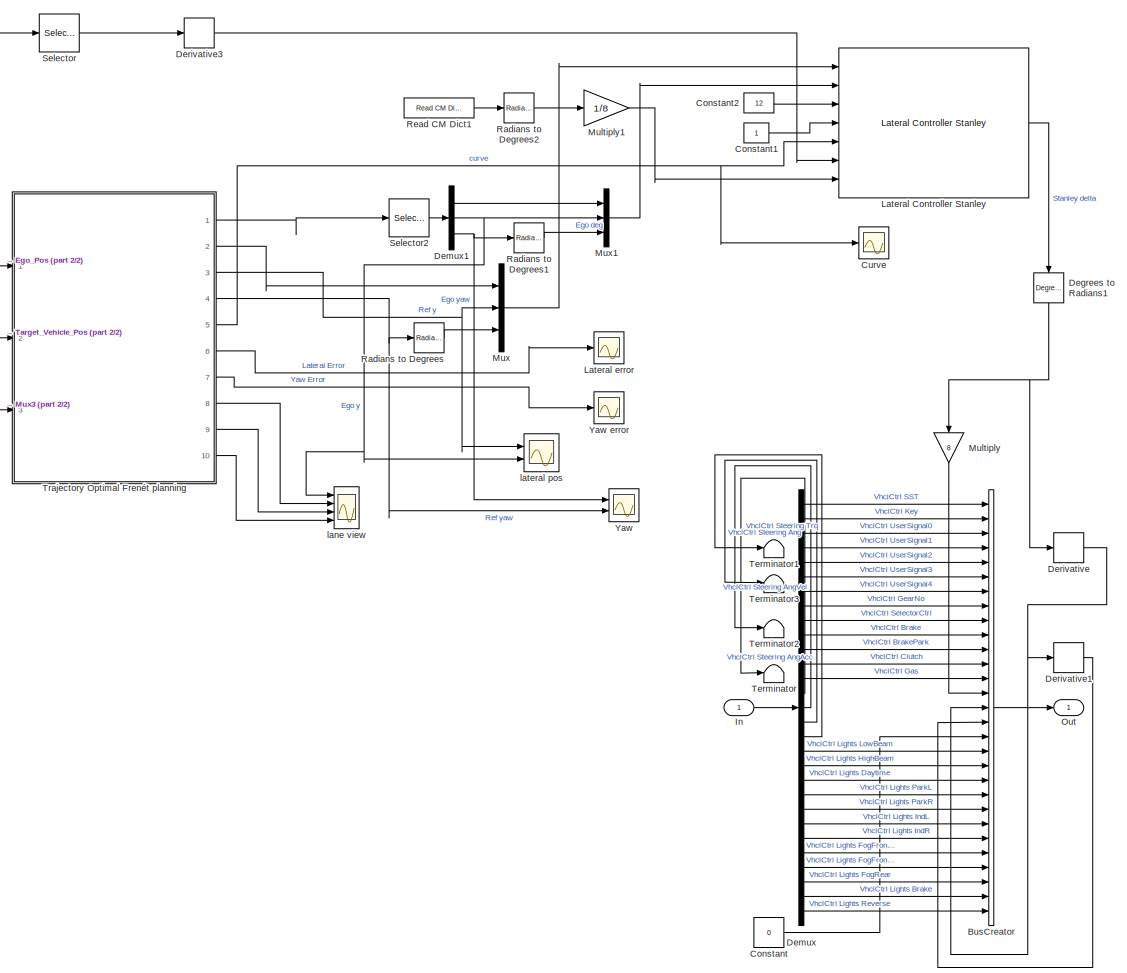
[diagram: CarMaker/VehicleControl/CreateBus VhclCtrl - part 1/2, most of the canvas]
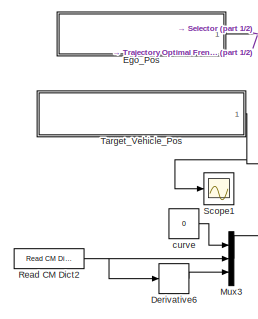
[diagram: CarMaker/VehicleControl/CreateBus VhclCtrl - part 2/2, middle left region]
BLOCK [SubSystem] CarMaker/VehicleControl/CreateBus VhclCtrl
  Ports = [1, 1]
  RequestExecContextInheritance = off
BLOCK [SubSystem] CarMaker/VehicleControl/CreateBus VhclCtrl.PT
  Ports = [1, 1]
  RequestExecContextInheritance = off
BLOCK [BusCreator] CarMaker/VehicleControl/CreateBus VhclCtrl.PT/BusCreator1
  InheritFromInputs = on
  Inputs = 12
  Ports = [12, 1]
BLOCK [Demux] CarMaker/VehicleControl/CreateBus VhclCtrl.PT/Demux1
  DisplayOption = none
  Outputs = 12
  Ports = [1, 12]
BLOCK [Inport] CarMaker/VehicleControl/CreateBus VhclCtrl.PT/In1
BLOCK [Outport] CarMaker/VehicleControl/CreateBus VhclCtrl.PT/Out1
  VectorParamsAs1DForOutWhenUnconnected = off
BLOCK [SubSystem] CarMaker/VehicleControl/CreateBus VhclCtrl.Steering
  Ports = [1, 1]
  RequestExecContextInheritance = off
BLOCK [BusCreator] CarMaker/VehicleControl/CreateBus VhclCtrl.Steering/Bus Creator
  DisplayOption = bar
  InheritFromInputs = on
  Inputs = 5
  Ports = [5, 1]
BLOCK [Demux] CarMaker/VehicleControl/CreateBus VhclCtrl.Steering/Demux
  DisplayOption = none
  Outputs = 5
  Ports = [1, 5]
BLOCK [Inport] CarMaker/VehicleControl/CreateBus VhclCtrl.Steering/In1
BLOCK [Outport] CarMaker/VehicleControl/CreateBus VhclCtrl.Steering/Out1
  VectorParamsAs1DForOutWhenUnconnected = off
BLOCK [BusCreator] CarMaker/VehicleControl/CreateBus VhclCtrl/BusCreator
  InheritFromInputs = on
  Inputs = 29
  Ports = [29, 1]
BLOCK [Constant] CarMaker/VehicleControl/CreateBus VhclCtrl/Constant
  Value = 0
BLOCK [Constant] CarMaker/VehicleControl/CreateBus VhclCtrl/Constant1
BLOCK [Constant] CarMaker/VehicleControl/CreateBus VhclCtrl/Constant2
  Value = 12
BLOCK [Scope] CarMaker/VehicleControl/CreateBus VhclCtrl/Curve
  Floating = off
  NumInputPorts = 1
  Ports = [1]
  ScopeSpecificationString = Simulink.scopes.TimeScopeBlockCfg('CurrentConfiguration', extmgr.ConfigurationSet(extmgr.Configuration('Core','General UI',true),extmgr.Configuration('Core','Source UI',true),extmgr.Configuration('Sources','WiredSimulink',true,'DataLoggingVariableName','ScopeData3'),extmgr.Configuration('Visuals','Time Domain',true),extmgr.Configuration('Tools','Plot Navigation',true),extmgr.Configuration('Tools',...<+40ch>
BLOCK [Reference] CarMaker/VehicleControl/CreateBus VhclCtrl/Degrees to Radians1  REF=simulink_extras/Transformations/Degrees to
Radians
  NameLocation = left
  Ports = [1, 1]
  SourceBlock = simulink_extras/Transformations/Degrees to\nRadians
  SourceProductBaseCode = SL
  SourceType = DegreesToRadians
BLOCK [Demux] CarMaker/VehicleControl/CreateBus VhclCtrl/Demux
  DisplayOption = none
  Outputs = 29
  Ports = [1, 29]
BLOCK [Demux] CarMaker/VehicleControl/CreateBus VhclCtrl/Demux1
  Outputs = 3
  Ports = [1, 3]
BLOCK [Derivative] CarMaker/VehicleControl/CreateBus VhclCtrl/Derivative
BLOCK [Derivative] CarMaker/VehicleControl/CreateBus VhclCtrl/Derivative1
BLOCK [Derivative] CarMaker/VehicleControl/CreateBus VhclCtrl/Derivative3
BLOCK [Derivative] CarMaker/VehicleControl/CreateBus VhclCtrl/Derivative6
BLOCK [SubSystem] CarMaker/VehicleControl/CreateBus VhclCtrl/Ego_Pos
  Ports = [0, 1]
  RequestExecContextInheritance = off
BLOCK [Outport] CarMaker/VehicleControl/CreateBus VhclCtrl/Ego_Pos/EgoPos
BLOCK [Mux] CarMaker/VehicleControl/CreateBus VhclCtrl/Ego_Pos/Mux
  DisplayOption = bar
  Ports = [4, 1]
BLOCK [Reference] CarMaker/VehicleControl/CreateBus VhclCtrl/Ego_Pos/Read CM Dict  REF=CarMaker4SL/Read CM Dict
  Ports = [0, 1]
  SourceBlock = CarMaker4SL/Read CM Dict
  SourceProductName = CarMaker4SL
  SourceType = Read CarMaker Dictionary Variable(s)
BLOCK [Reference] CarMaker/VehicleControl/CreateBus VhclCtrl/Ego_Pos/Read CM Dict1  REF=CarMaker4SL/Read CM Dict
  Ports = [0, 1]
  SourceBlock = CarMaker4SL/Read CM Dict
  SourceProductName = CarMaker4SL
  SourceType = Read CarMaker Dictionary Variable(s)
BLOCK [Reference] CarMaker/VehicleControl/CreateBus VhclCtrl/Ego_Pos/Read CM Dict2  REF=CarMaker4SL/Read CM Dict
  Ports = [0, 1]
  SourceBlock = CarMaker4SL/Read CM Dict
  SourceProductName = CarMaker4SL
  SourceType = Read CarMaker Dictionary Variable(s)
BLOCK [Reference] CarMaker/VehicleControl/CreateBus VhclCtrl/Ego_Pos/Read CM Dict3  REF=CarMaker4SL/Read CM Dict
  Ports = [0, 1]
  SourceBlock = CarMaker4SL/Read CM Dict
  SourceProductName = CarMaker4SL
  SourceType = Read CarMaker Dictionary Variable(s)
BLOCK [Inport] CarMaker/VehicleControl/CreateBus VhclCtrl/In
BLOCK [Reference] CarMaker/VehicleControl/CreateBus VhclCtrl/Lateral Controller Stanley  REF=drivingvehiclecontroller/Lateral Controller Stanley
  Ports = [7, 1]
  SourceBlock = drivingvehiclecontroller/Lateral Controller Stanley
  SourceProductBaseCode = DR
  SourceType = Lateral Controller Stanley
BLOCK [Scope] CarMaker/VehicleControl/CreateBus VhclCtrl/Lateral error
  Floating = off
  NumInputPorts = 1
  Ports = [1]
  ScopeSpecificationString = Simulink.scopes.TimeScopeBlockCfg('CurrentConfiguration', extmgr.ConfigurationSet(extmgr.Configuration('Core','General UI',true),extmgr.Configuration('Core','Source UI',true),extmgr.Configuration('Sources','WiredSimulink',true,'DataLoggingVariableName','ScopeData2'),extmgr.Configuration('Visuals','Time Domain',true,'SerializedDisplays',{struct('MinYLimReal','-0.06449','MaxYLimReal','0.58041','YLab...<+1426ch>
BLOCK [Gain] CarMaker/VehicleControl/CreateBus VhclCtrl/Multiply
  Gain = 8
  NameLocation = left
BLOCK [Gain] CarMaker/VehicleControl/CreateBus VhclCtrl/Multiply1
  Gain = 1/8
BLOCK [Mux] CarMaker/VehicleControl/CreateBus VhclCtrl/Mux
  DisplayOption = bar
  Inputs = 3
  Ports = [3, 1]
BLOCK [Mux] CarMaker/VehicleControl/CreateBus VhclCtrl/Mux1
  DisplayOption = bar
  Inputs = 3
  Ports = [3, 1]
BLOCK [Mux] CarMaker/VehicleControl/CreateBus VhclCtrl/Mux3
  DisplayOption = bar
  Inputs = 3
  Ports = [3, 1]
BLOCK [Outport] CarMaker/VehicleControl/CreateBus VhclCtrl/Out
  VectorParamsAs1DForOutWhenUnconnected = off
BLOCK [Reference] CarMaker/VehicleControl/CreateBus VhclCtrl/Radians to Degrees  REF=simulink_extras/Transformations/Radians
to Degrees
  Ports = [1, 1]
  SourceBlock = simulink_extras/Transformations/Radians\nto Degrees
  SourceProductBaseCode = SL
  SourceType = RadiansToDegrees
BLOCK [Reference] CarMaker/VehicleControl/CreateBus VhclCtrl/Radians to Degrees1  REF=simulink_extras/Transformations/Radians
to Degrees
  Ports = [1, 1]
  SourceBlock = simulink_extras/Transformations/Radians\nto Degrees
  SourceProductBaseCode = SL
  SourceType = RadiansToDegrees
BLOCK [Reference] CarMaker/VehicleControl/CreateBus VhclCtrl/Radians to Degrees2  REF=simulink_extras/Transformations/Radians
to Degrees
  Ports = [1, 1]
  SourceBlock = simulink_extras/Transformations/Radians\nto Degrees
  SourceProductBaseCode = SL
  SourceType = RadiansToDegrees
BLOCK [Reference] CarMaker/VehicleControl/CreateBus VhclCtrl/Read CM Dict1  REF=CarMaker4SL/Read CM Dict
  Ports = [0, 1]
  SourceBlock = CarMaker4SL/Read CM Dict
  SourceProductName = CarMaker4SL
  SourceType = Read CarMaker Dictionary Variable(s)
BLOCK [Reference] CarMaker/VehicleControl/CreateBus VhclCtrl/Read CM Dict2  REF=CarMaker4SL/Read CM Dict
  Ports = [0, 1]
  SourceBlock = CarMaker4SL/Read CM Dict
  SourceProductName = CarMaker4SL
  SourceType = Read CarMaker Dictionary Variable(s)
BLOCK [Scope] CarMaker/VehicleControl/CreateBus VhclCtrl/Scope1
  Floating = off
  NumInputPorts = 1
  Ports = [1]
  ScopeSpecificationString = Simulink.scopes.TimeScopeBlockCfg('CurrentConfiguration', extmgr.ConfigurationSet(extmgr.Configuration('Core','General UI',true),extmgr.Configuration('Core','Source UI',true),extmgr.Configuration('Sources','WiredSimulink',true,'DataLoggingVariableName','ScopeData1'),extmgr.Configuration('Visuals','Time Domain',true,'SerializedDisplays',{struct('MinYLimReal','-5.2512','MaxYLimReal','-5.24911','YLab...<+1469ch>
BLOCK [Selector] CarMaker/VehicleControl/CreateBus VhclCtrl/Selector
  IndexOptions = Index vector (dialog)
  Indices = [4]
  InputPortWidth = 4
  OutputSizes = 1
  Ports = [1, 1]
BLOCK [Selector] CarMaker/VehicleControl/CreateBus VhclCtrl/Selector2
  IndexOptions = Index vector (dialog)
  Indices = [1 2 4]
  InputPortWidth = 4
  OutputSizes = 1
  Ports = [1, 1]
BLOCK [SubSystem] CarMaker/VehicleControl/CreateBus VhclCtrl/Target_Vehicle_Pos
  Ports = [0, 1]
  RequestExecContextInheritance = off
BLOCK [BusSelector] CarMaker/VehicleControl/CreateBus VhclCtrl/Target_Vehicle_Pos/Bus Selector1
  OutputSignals = t_0 x,t_0 y,t_0 z
  Ports = [1, 3]
BLOCK [Mux] CarMaker/VehicleControl/CreateBus VhclCtrl/Target_Vehicle_Pos/Mux
  DisplayOption = bar
  Inputs = 3
  Ports = [3, 1]
BLOCK [StringConstant] CarMaker/VehicleControl/CreateBus VhclCtrl/Target_Vehicle_Pos/String Constant
  String = "T00"
BLOCK [Outport] CarMaker/VehicleControl/CreateBus VhclCtrl/Target_Vehicle_Pos/TargetPos
BLOCK [Terminator] CarMaker/VehicleControl/CreateBus VhclCtrl/Target_Vehicle_Pos/Terminator3
BLOCK [Reference] CarMaker/VehicleControl/CreateBus VhclCtrl/Target_Vehicle_Pos/Traffic Object  REF=CarMaker4SL/Traffic Object
  Ports = [1, 2]
  SourceBlock = CarMaker4SL/Traffic Object
  SourceProductName = CarMaker4SL
  SourceType = CarMaker Traffic Object
BLOCK [Terminator] CarMaker/VehicleControl/CreateBus VhclCtrl/Terminator
BLOCK [Terminator] CarMaker/VehicleControl/CreateBus VhclCtrl/Terminator1
BLOCK [Terminator] CarMaker/VehicleControl/CreateBus VhclCtrl/Terminator2
BLOCK [Terminator] CarMaker/VehicleControl/CreateBus VhclCtrl/Terminator3
BLOCK [SubSystem] CarMaker/VehicleControl/CreateBus VhclCtrl/Trajectory Optimal Frenét planning
  ErrorFcn = Stateflow.Translate.translate
  PermitHierarchicalResolution = ExplicitOnly
  Ports = [3, 10]
  RequestExecContextInheritance = off
  SFBlockType = MATLAB Function
  TreatAsAtomicUnit = on
BLOCK [Demux] CarMaker/VehicleControl/CreateBus VhclCtrl/Trajectory Optimal Frenét planning/ Demux 
  Outputs = 1
  Ports = [1, 1]
BLOCK [S-Function] CarMaker/VehicleControl/CreateBus VhclCtrl/Trajectory Optimal Frenét planning/ SFunction 
  EnableBusSupport = on
  FunctionName = sf_sfun
  PortCounts = [3 11]
  Ports = [3, 11]
  SFcnIsStateOwnerBlock = off
  SFunctionDeploymentMode = off
  Tag = Stateflow S-Function 4
BLOCK [Terminator] CarMaker/VehicleControl/CreateBus VhclCtrl/Trajectory Optimal Frenét planning/ Terminator 
BLOCK [Outport] CarMaker/VehicleControl/CreateBus VhclCtrl/Trajectory Optimal Frenét planning/Ego_Vhcl_Pos
BLOCK [Inport] CarMaker/VehicleControl/CreateBus VhclCtrl/Trajectory Optimal Frenét planning/Ego_Vhcl_Pos 
BLOCK [Outport] CarMaker/VehicleControl/CreateBus VhclCtrl/Trajectory Optimal Frenét planning/Lane1
  Port = 9
BLOCK [Inport] CarMaker/VehicleControl/CreateBus VhclCtrl/Trajectory Optimal Frenét planning/Target_Vhcl_Pos
  Port = 2
BLOCK [Outport] CarMaker/VehicleControl/CreateBus VhclCtrl/Trajectory Optimal Frenét planning/curve
  Port = 5
BLOCK [Inport] CarMaker/VehicleControl/CreateBus VhclCtrl/Trajectory Optimal Frenét planning/ego_CartS
  Port = 3
BLOCK [Outport] CarMaker/VehicleControl/CreateBus VhclCtrl/Trajectory Optimal Frenét planning/laneEndY
  Port = 10
BLOCK [Outport] CarMaker/VehicleControl/CreateBus VhclCtrl/Trajectory Optimal Frenét planning/laneStartY
  Port = 8
BLOCK [Outport] CarMaker/VehicleControl/CreateBus VhclCtrl/Trajectory Optimal Frenét planning/lat_err
  Port = 6
BLOCK [Outport] CarMaker/VehicleControl/CreateBus VhclCtrl/Trajectory Optimal Frenét planning/ref_d
  Port = 4
BLOCK [Outport] CarMaker/VehicleControl/CreateBus VhclCtrl/Trajectory Optimal Frenét planning/ref_x
  Port = 2
BLOCK [Outport] CarMaker/VehicleControl/CreateBus VhclCtrl/Trajectory Optimal Frenét planning/ref_y
  Port = 3
BLOCK [Outport] CarMaker/VehicleControl/CreateBus VhclCtrl/Trajectory Optimal Frenét planning/yaw_err
  Port = 7
BLOCK [Scope] CarMaker/VehicleControl/CreateBus VhclCtrl/Yaw
  Floating = off
  NumInputPorts = 2
  Ports = [2]
  ScopeSpecificationString = Simulink.scopes.TimeScopeBlockCfg('CurrentConfiguration', extmgr.ConfigurationSet(extmgr.Configuration('Core','General UI',true),extmgr.Configuration('Core','Source UI',true),extmgr.Configuration('Sources','WiredSimulink',true,'DataLoggingVariableName','ScopeData4'),extmgr.Configuration('Visuals','Time Domain',true,'SerializedDisplays',{struct('MinYLimReal','-0.05127','MaxYLimReal','0.29018','YLab...<+1428ch>
BLOCK [Scope] CarMaker/VehicleControl/CreateBus VhclCtrl/Yaw error
  Floating = off
  NumInputPorts = 1
  Ports = [1]
  ScopeSpecificationString = Simulink.scopes.TimeScopeBlockCfg('CurrentConfiguration', extmgr.ConfigurationSet(extmgr.Configuration('Core','General UI',true),extmgr.Configuration('Core','Source UI',true),extmgr.Configuration('Sources','WiredSimulink',true,'DataLoggingVariableName','ScopeData5'),extmgr.Configuration('Visuals','Time Domain',true,'SerializedDisplays',{struct('MinYLimReal','-0.1724','MaxYLimReal','0.12459','YLabe...<+1389ch>
BLOCK [Constant] CarMaker/VehicleControl/CreateBus VhclCtrl/curve
  Value = 0
BLOCK [Scope] CarMaker/VehicleControl/CreateBus VhclCtrl/lane view
  Floating = off
  NumInputPorts = 4
  Ports = [4]
  ScopeSpecificationString = Simulink.scopes.TimeScopeBlockCfg('CurrentConfiguration', extmgr.ConfigurationSet(extmgr.Configuration('Core','General UI',true),extmgr.Configuration('Core','Source UI',true),extmgr.Configuration('Sources','WiredSimulink',true,'DataLoggingVariableName','ScopeData1'),extmgr.Configuration('Visuals','Time Domain',true,'SerializedDisplays',{struct('MinYLimReal','-4.375','MaxYLimReal','4.375','YLabelRe...<+1685ch>
BLOCK [Scope] CarMaker/VehicleControl/CreateBus VhclCtrl/lateral pos
  Floating = off
  NumInputPorts = 2
  Ports = [2]
  ScopeSpecificationString = Simulink.scopes.TimeScopeBlockCfg('CurrentConfiguration', extmgr.ConfigurationSet(extmgr.Configuration('Core','General UI',true),extmgr.Configuration('Core','Source UI',true),extmgr.Configuration('Sources','WiredSimulink',true,'DataLoggingVariableName','ScopeData1'),extmgr.Configuration('Visuals','Time Domain',true,'SerializedDisplays',{struct('MinYLimReal','-3.27745','MaxYLimReal','3.38347','YLab...<+1445ch>
BLOCK [Demux] CarMaker/VehicleControl/Demux2
  DisplayOption = none
  Outputs = 2
  Ports = [1, 2]
BLOCK [Inport] CarMaker/VehicleControl/DrivMan.In
  Port = 2
BLOCK [Inport] CarMaker/VehicleControl/Sync_In
BLOCK [Outport] CarMaker/VehicleControl/Sync_Out
  VectorParamsAs1DForOutWhenUnconnected = off
BLOCK [S-Function] CarMaker/VehicleControl/VehicleControl
  EnableBusSupport = off
  FunctionName = CM_Sfun
  Parameters = 'VehicleControl'
  Ports = [2, 2]
  SFcnIsStateOwnerBlock = off
  SFunctionDeploymentMode = off
BLOCK [S-Function] CarMaker/VehicleControl/VehicleControlUpd
  EnableBusSupport = off
  FunctionName = CM_Sfun
  Parameters = 'VehicleControlUpd'
  Ports = [2, 7]
  SFcnIsStateOwnerBlock = off
  SFunctionDeploymentMode = off
BLOCK [Outport] CarMaker/VehicleControl/Vhcl.Misc
  Port = 5
  VectorParamsAs1DForOutWhenUnconnected = off
BLOCK [Outport] CarMaker/VehicleControl/Vhcl.Model.Source
  Port = 2
  VectorParamsAs1DForOutWhenUnconnected = off
BLOCK [Outport] CarMaker/VehicleControl/Vhcl.Wheel.In
  Port = 4
  VectorParamsAs1DForOutWhenUnconnected = off
BLOCK [Outport] CarMaker/VehicleControl/VhclCtrl.Brake
  Port = 6
  VectorParamsAs1DForOutWhenUnconnected = off
BLOCK [Outport] CarMaker/VehicleControl/VhclCtrl.PT
  Port = 7
  VectorParamsAs1DForOutWhenUnconnected = off
BLOCK [Outport] CarMaker/VehicleControl/VhclCtrl.Steering
  Port = 3
  VectorParamsAs1DForOutWhenUnconnected = off
BLOCK [Reference] Edit Model Configuration  REF=CarMaker4SL/Edit Model
Configuration
  Ports = []
  SourceBlock = CarMaker4SL/Edit Model\nConfiguration
  SourceProductName = CarMaker4SL
BLOCK [SubSystem] Open CarMaker GUI
  LoadFcn = if ~length(which('cmself')), cmenv; end
  OpenFcn = cmblockmagic('gui_fix_display'); CM_Simulink
  Ports = []
  RequestExecContextInheritance = off
BLOCK [S-Function] Open CarMaker GUI/S-Function
  EnableBusSupport = off
  FunctionName = cm_gui
  Ports = []
  SFcnIsStateOwnerBlock = off
  SFunctionDeploymentMode = off
ANNOTATION (root): CarMaker 11.1.1
ANNOTATION (root): Generic Car Model
ANNOTATION (root): It already contains everything to run a simple CarMaker simulation. Build your Simulink model around it.
ANNOTATION (root): You may use this model as a starting point.
ANNOTATION CarMaker/DrivMan: There's rarely a reason to override DrivMan signals. Use the VehicleControl interface for this purpose.
ANNOTATION CarMaker/IPG Vehicle/Brake: When replacing the entire braking system, be sure to disable the IPG brake model by using the brake model 'Model Manager off' in the vehicle GUI.
ANNOTATION CarMaker/IPG Vehicle/CarAndTrailer/Forces/External Suspension Forces: Insert your suspension forces model here.
ANNOTATION CarMaker/IPG Vehicle/CarAndTrailer/Forces/External Suspension Forces: The FSpring_ext/FDamp_ext/FStabi_ext/FBuf_ext outputs of this subsystem will be active if the SuspExtFrcs.Kind entry in the vehicle parameter file is either not present or is empty or has the value "CM4SL".
ANNOTATION CarMaker/IPG Vehicle/CarAndTrailer/Forces/Tires: The TireXX_Out signals will only be used if FileIdent is "CarMaker-Tire-CM4SL" in the tire parameter file! An example parameter file can be found in Data/Tire/DT_CM4SL_UserTire.
ANNOTATION CarMaker/IPG Vehicle/CarAndTrailer/Forces/Tires/TireFL: Insert your tire model here.
ANNOTATION CarMaker/IPG Vehicle/CarAndTrailer/Forces/Tires/TireFR: Insert your tire model here.
ANNOTATION CarMaker/IPG Vehicle/CarAndTrailer/Forces/Tires/TireRL: Insert your tire model here.
ANNOTATION CarMaker/IPG Vehicle/CarAndTrailer/Forces/Tires/TireRR: Insert your tire model here.
ANNOTATION CarMaker/IPG Vehicle/CarAndTrailer/Steering: When replacing the entire steering system, be sure to disable the IPG steering model by using the steering model 'Model Manager off' in the vehicle GUI.
ANNOTATION CarMaker/IPG Vehicle/PowerTrain: When replacing the entire powertrain, be sure to disable the IPG powertrain model by using the powertrain model 'Model Manager off' in the vehicle GUI.
ANNOTATION CarMaker/VehicleControl: When implementing a vehicle control model, be sure to add '-disablevehiclecontrol' to the command line arguments in the CarMaker Model Configuration block. Otherwise your model will possibly not see the original DrivMan signals on its inputs, but those of a currently activated C-coded vehicle control model instead.
LINE CarMaker/CM_FIRST/BusCreator1:1 -> CarMaker/CM_FIRST/Env.Misc:1
LINE CarMaker/CM_FIRST/BusCreator2:1 -> CarMaker/CM_FIRST/Terminator:1
LINE CarMaker/CM_FIRST/Demux1:1 -> CarMaker/CM_FIRST/BusCreator1:1
LINE CarMaker/CM_FIRST/Demux1:10 -> CarMaker/CM_FIRST/BusCreator2:2
LINE CarMaker/CM_FIRST/Demux1:11 -> CarMaker/CM_FIRST/BusCreator2:3
LINE CarMaker/CM_FIRST/Demux1:12 -> CarMaker/CM_FIRST/BusCreator2:4
LINE CarMaker/CM_FIRST/Demux1:13 -> CarMaker/CM_FIRST/BusCreator2:5
LINE CarMaker/CM_FIRST/Demux1:14 -> CarMaker/CM_FIRST/BusCreator2:6
LINE CarMaker/CM_FIRST/Demux1:2 -> CarMaker/CM_FIRST/BusCreator1:2
LINE CarMaker/CM_FIRST/Demux1:3 -> CarMaker/CM_FIRST/BusCreator1:3
LINE CarMaker/CM_FIRST/Demux1:4 -> CarMaker/CM_FIRST/BusCreator1:4
LINE CarMaker/CM_FIRST/Demux1:5 -> CarMaker/CM_FIRST/BusCreator1:5
LINE CarMaker/CM_FIRST/Demux1:6 -> CarMaker/CM_FIRST/BusCreator1:6
LINE CarMaker/CM_FIRST/Demux1:7 -> CarMaker/CM_FIRST/BusCreator1:7
LINE CarMaker/CM_FIRST/Demux1:8 -> CarMaker/CM_FIRST/BusCreator1:8
LINE CarMaker/CM_FIRST/Demux1:9 -> CarMaker/CM_FIRST/BusCreator2:1
LINE CarMaker/CM_FIRST/Environment:1 -> CarMaker/CM_FIRST/Sync_Out:1
LINE CarMaker/CM_FIRST/Environment:2 -> CarMaker/CM_FIRST/Demux1:1
LINE CarMaker/CM_FIRST/IoIn:1 -> CarMaker/CM_FIRST/Environment:1
LINE CarMaker/CM_FIRST/Sync_In:1 -> CarMaker/CM_FIRST/IoIn:1
LINE CarMaker/CM_FIRST:1 -> CarMaker/DrivMan:1
LINE CarMaker/CM_FIRST:2 -> CarMaker/DrivMan:2
LINE CarMaker/CM_LAST/CM_User:1 -> CarMaker/CM_LAST/IoOut:1
LINE CarMaker/CM_LAST/IoOut:1 -> CarMaker/CM_LAST/Sync_Out:1
LINE CarMaker/CM_LAST/Sync_In:1 -> CarMaker/CM_LAST/CM_User:1
LINE CarMaker/CM_LAST:1 -> CarMaker/Terminator:1
LINE CarMaker/DrivMan/BusCreator:1 -> CarMaker/DrivMan/DrivMan.Out:1
LINE CarMaker/DrivMan/Demux:1 -> CarMaker/DrivMan/BusCreator:1
LINE CarMaker/DrivMan/Demux:10 -> CarMaker/DrivMan/BusCreator:10
LINE CarMaker/DrivMan/Demux:11 -> CarMaker/DrivMan/BusCreator:11
LINE CarMaker/DrivMan/Demux:12 -> CarMaker/DrivMan/BusCreator:12
LINE CarMaker/DrivMan/Demux:13 -> CarMaker/DrivMan/BusCreator:13
LINE CarMaker/DrivMan/Demux:14 -> CarMaker/DrivMan/BusCreator:14
LINE CarMaker/DrivMan/Demux:15 -> CarMaker/DrivMan/BusCreator:15
LINE CarMaker/DrivMan/Demux:16 -> CarMaker/DrivMan/BusCreator:16
LINE CarMaker/DrivMan/Demux:17 -> CarMaker/DrivMan/BusCreator:17
LINE CarMaker/DrivMan/Demux:2 -> CarMaker/DrivMan/BusCreator:2
LINE CarMaker/DrivMan/Demux:3 -> CarMaker/DrivMan/BusCreator:3
LINE CarMaker/DrivMan/Demux:4 -> CarMaker/DrivMan/BusCreator:4
LINE CarMaker/DrivMan/Demux:5 -> CarMaker/DrivMan/BusCreator:5
LINE CarMaker/DrivMan/Demux:6 -> CarMaker/DrivMan/BusCreator:6
LINE CarMaker/DrivMan/Demux:7 -> CarMaker/DrivMan/BusCreator:7
LINE CarMaker/DrivMan/Demux:8 -> CarMaker/DrivMan/BusCreator:8
LINE CarMaker/DrivMan/Demux:9 -> CarMaker/DrivMan/BusCreator:9
LINE CarMaker/DrivMan/DrivMan:1 -> CarMaker/DrivMan/Sync_Out:1
LINE CarMaker/DrivMan/DrivMan:2 -> CarMaker/DrivMan/Demux:1
LINE CarMaker/DrivMan/Env.Misc:1 -> CarMaker/DrivMan/DrivMan:2
LINE CarMaker/DrivMan/Sync_In:1 -> CarMaker/DrivMan/DrivMan:1
LINE CarMaker/DrivMan:1 -> CarMaker/VehicleControl:1
LINE CarMaker/DrivMan:2 -> CarMaker/VehicleControl:2
LINE CarMaker/Ground:1 -> CarMaker/CM_FIRST:1
LINE CarMaker/IPG Vehicle/Brake/Brake.IF.In:1 -> CarMaker/IPG Vehicle/Brake/Brake:2
LINE CarMaker/IPG Vehicle/Brake/Brake:1 -> CarMaker/IPG Vehicle/Brake/BrakeUpd:1
LINE CarMaker/IPG Vehicle/Brake/Brake:2 -> CarMaker/IPG Vehicle/Brake/Demux:1
LINE CarMaker/IPG Vehicle/Brake/BrakeUpd:1 -> CarMaker/IPG Vehicle/Brake/Sync_Out:1
LINE CarMaker/IPG Vehicle/Brake/BrakeUpd:2 -> CarMaker/IPG Vehicle/Brake/CreateBus Vhcl.Wheel.PT:1
LINE CarMaker/IPG Vehicle/Brake/BusCreator1:1 -> CarMaker/IPG Vehicle/Brake/BrakeUpd:2
LINE CarMaker/IPG Vehicle/Brake/CreateBus Vhcl.Wheel.PT/BusCreator1:1 -> CarMaker/IPG Vehicle/Brake/CreateBus Vhcl.Wheel.PT/Out:1
LINE CarMaker/IPG Vehicle/Brake/CreateBus Vhcl.Wheel.PT/Demux1:1 -> CarMaker/IPG Vehicle/Brake/CreateBus Vhcl.Wheel.PT/BusCreator1:1
LINE CarMaker/IPG Vehicle/Brake/CreateBus Vhcl.Wheel.PT/Demux1:10 -> CarMaker/IPG Vehicle/Brake/CreateBus Vhcl.Wheel.PT/BusCreator1:10
LINE CarMaker/IPG Vehicle/Brake/CreateBus Vhcl.Wheel.PT/Demux1:11 -> CarMaker/IPG Vehicle/Brake/CreateBus Vhcl.Wheel.PT/BusCreator1:11
LINE CarMaker/IPG Vehicle/Brake/CreateBus Vhcl.Wheel.PT/Demux1:12 -> CarMaker/IPG Vehicle/Brake/CreateBus Vhcl.Wheel.PT/BusCreator1:12
LINE CarMaker/IPG Vehicle/Brake/CreateBus Vhcl.Wheel.PT/Demux1:13 -> CarMaker/IPG Vehicle/Brake/CreateBus Vhcl.Wheel.PT/BusCreator1:13
LINE CarMaker/IPG Vehicle/Brake/CreateBus Vhcl.Wheel.PT/Demux1:14 -> CarMaker/IPG Vehicle/Brake/CreateBus Vhcl.Wheel.PT/BusCreator1:14
LINE CarMaker/IPG Vehicle/Brake/CreateBus Vhcl.Wheel.PT/Demux1:15 -> CarMaker/IPG Vehicle/Brake/CreateBus Vhcl.Wheel.PT/BusCreator1:15
LINE CarMaker/IPG Vehicle/Brake/CreateBus Vhcl.Wheel.PT/Demux1:16 -> CarMaker/IPG Vehicle/Brake/CreateBus Vhcl.Wheel.PT/BusCreator1:16
LINE CarMaker/IPG Vehicle/Brake/CreateBus Vhcl.Wheel.PT/Demux1:17 -> CarMaker/IPG Vehicle/Brake/CreateBus Vhcl.Wheel.PT/BusCreator1:17
LINE CarMaker/IPG Vehicle/Brake/CreateBus Vhcl.Wheel.PT/Demux1:18 -> CarMaker/IPG Vehicle/Brake/CreateBus Vhcl.Wheel.PT/BusCreator1:18
LINE CarMaker/IPG Vehicle/Brake/CreateBus Vhcl.Wheel.PT/Demux1:19 -> CarMaker/IPG Vehicle/Brake/CreateBus Vhcl.Wheel.PT/BusCreator1:19
LINE CarMaker/IPG Vehicle/Brake/CreateBus Vhcl.Wheel.PT/Demux1:2 -> CarMaker/IPG Vehicle/Brake/CreateBus Vhcl.Wheel.PT/BusCreator1:2
LINE CarMaker/IPG Vehicle/Brake/CreateBus Vhcl.Wheel.PT/Demux1:20 -> CarMaker/IPG Vehicle/Brake/CreateBus Vhcl.Wheel.PT/BusCreator1:20
LINE CarMaker/IPG Vehicle/Brake/CreateBus Vhcl.Wheel.PT/Demux1:3 -> CarMaker/IPG Vehicle/Brake/CreateBus Vhcl.Wheel.PT/BusCreator1:3
LINE CarMaker/IPG Vehicle/Brake/CreateBus Vhcl.Wheel.PT/Demux1:4 -> CarMaker/IPG Vehicle/Brake/CreateBus Vhcl.Wheel.PT/BusCreator1:4
LINE CarMaker/IPG Vehicle/Brake/CreateBus Vhcl.Wheel.PT/Demux1:5 -> CarMaker/IPG Vehicle/Brake/CreateBus Vhcl.Wheel.PT/BusCreator1:5
LINE CarMaker/IPG Vehicle/Brake/CreateBus Vhcl.Wheel.PT/Demux1:6 -> CarMaker/IPG Vehicle/Brake/CreateBus Vhcl.Wheel.PT/BusCreator1:6
LINE CarMaker/IPG Vehicle/Brake/CreateBus Vhcl.Wheel.PT/Demux1:7 -> CarMaker/IPG Vehicle/Brake/CreateBus Vhcl.Wheel.PT/BusCreator1:7
LINE CarMaker/IPG Vehicle/Brake/CreateBus Vhcl.Wheel.PT/Demux1:8 -> CarMaker/IPG Vehicle/Brake/CreateBus Vhcl.Wheel.PT/BusCreator1:8
LINE CarMaker/IPG Vehicle/Brake/CreateBus Vhcl.Wheel.PT/Demux1:9 -> CarMaker/IPG Vehicle/Brake/CreateBus Vhcl.Wheel.PT/BusCreator1:9
LINE CarMaker/IPG Vehicle/Brake/CreateBus Vhcl.Wheel.PT/In:1 -> CarMaker/IPG Vehicle/Brake/CreateBus Vhcl.Wheel.PT/Demux1:1
LINE CarMaker/IPG Vehicle/Brake/CreateBus Vhcl.Wheel.PT:1 -> CarMaker/IPG Vehicle/Brake/Vhcl.Wheel.PT:1
LINE CarMaker/IPG Vehicle/Brake/Demux:1 -> CarMaker/IPG Vehicle/Brake/BusCreator1:1
LINE CarMaker/IPG Vehicle/Brake/Demux:10 -> CarMaker/IPG Vehicle/Brake/BusCreator1:10
LINE CarMaker/IPG Vehicle/Brake/Demux:11 -> CarMaker/IPG Vehicle/Brake/BusCreator1:11
LINE CarMaker/IPG Vehicle/Brake/Demux:12 -> CarMaker/IPG Vehicle/Brake/BusCreator1:12
LINE CarMaker/IPG Vehicle/Brake/Demux:13 -> CarMaker/IPG Vehicle/Brake/BusCreator1:13
LINE CarMaker/IPG Vehicle/Brake/Demux:14 -> CarMaker/IPG Vehicle/Brake/BusCreator1:14
LINE CarMaker/IPG Vehicle/Brake/Demux:15 -> CarMaker/IPG Vehicle/Brake/BusCreator1:15
LINE CarMaker/IPG Vehicle/Brake/Demux:16 -> CarMaker/IPG Vehicle/Brake/BusCreator1:16
LINE CarMaker/IPG Vehicle/Brake/Demux:2 -> CarMaker/IPG Vehicle/Brake/BusCreator1:2
LINE CarMaker/IPG Vehicle/Brake/Demux:3 -> CarMaker/IPG Vehicle/Brake/BusCreator1:3
LINE CarMaker/IPG Vehicle/Brake/Demux:4 -> CarMaker/IPG Vehicle/Brake/BusCreator1:4
LINE CarMaker/IPG Vehicle/Brake/Demux:5 -> CarMaker/IPG Vehicle/Brake/BusCreator1:5
LINE CarMaker/IPG Vehicle/Brake/Demux:6 -> CarMaker/IPG Vehicle/Brake/BusCreator1:6
LINE CarMaker/IPG Vehicle/Brake/Demux:7 -> CarMaker/IPG Vehicle/Brake/BusCreator1:7
LINE CarMaker/IPG Vehicle/Brake/Demux:8 -> CarMaker/IPG Vehicle/Brake/BusCreator1:8
LINE CarMaker/IPG Vehicle/Brake/Demux:9 -> CarMaker/IPG Vehicle/Brake/BusCreator1:9
LINE CarMaker/IPG Vehicle/Brake/Sync_In:1 -> CarMaker/IPG Vehicle/Brake/Brake:1
LINE CarMaker/IPG Vehicle/Brake/VhclCtrl.Brake:1 -> CarMaker/IPG Vehicle/Brake/Brake:3
LINE CarMaker/IPG Vehicle/Brake:1 -> CarMaker/IPG Vehicle/PowerTrain:1
LINE CarMaker/IPG Vehicle/Brake:2 -> CarMaker/IPG Vehicle/PowerTrain:2
LINE CarMaker/IPG Vehicle/CarAndTrailer/CarAndTrailerUpd/Car.Hitch.FrcTrq:1 -> CarMaker/IPG Vehicle/CarAndTrailer/CarAndTrailerUpd/CarAndTrailerUpd:9
LINE CarMaker/IPG Vehicle/CarAndTrailer/CarAndTrailerUpd/CarAndTrailerUpd:1 -> CarMaker/IPG Vehicle/CarAndTrailer/CarAndTrailerUpd/Sync_Out:1
LINE CarMaker/IPG Vehicle/CarAndTrailer/CarAndTrailerUpd/CarAndTrailerUpd:2 -> CarMaker/IPG Vehicle/CarAndTrailer/CarAndTrailerUpd/CreateBus Brake.IF.In:1
LINE CarMaker/IPG Vehicle/CarAndTrailer/CarAndTrailerUpd/CreateBus Brake.IF.In/BusCreator:1 -> CarMaker/IPG Vehicle/CarAndTrailer/CarAndTrailerUpd/CreateBus Brake.IF.In/Out:1
LINE CarMaker/IPG Vehicle/CarAndTrailer/CarAndTrailerUpd/CreateBus Brake.IF.In/Demux:1 -> CarMaker/IPG Vehicle/CarAndTrailer/CarAndTrailerUpd/CreateBus Brake.IF.In/BusCreator:1
LINE CarMaker/IPG Vehicle/CarAndTrailer/CarAndTrailerUpd/CreateBus Brake.IF.In/Demux:2 -> CarMaker/IPG Vehicle/CarAndTrailer/CarAndTrailerUpd/CreateBus Brake.IF.In/BusCreator:2
LINE CarMaker/IPG Vehicle/CarAndTrailer/CarAndTrailerUpd/CreateBus Brake.IF.In/Demux:3 -> CarMaker/IPG Vehicle/CarAndTrailer/CarAndTrailerUpd/CreateBus Brake.IF.In/BusCreator:3
LINE CarMaker/IPG Vehicle/CarAndTrailer/CarAndTrailerUpd/CreateBus Brake.IF.In/Demux:4 -> CarMaker/IPG Vehicle/CarAndTrailer/CarAndTrailerUpd/CreateBus Brake.IF.In/BusCreator:4
LINE CarMaker/IPG Vehicle/CarAndTrailer/CarAndTrailerUpd/CreateBus Brake.IF.In/Demux:5 -> CarMaker/IPG Vehicle/CarAndTrailer/CarAndTrailerUpd/CreateBus Brake.IF.In/BusCreator:5
LINE CarMaker/IPG Vehicle/CarAndTrailer/CarAndTrailerUpd/CreateBus Brake.IF.In/Demux:6 -> CarMaker/IPG Vehicle/CarAndTrailer/CarAndTrailerUpd/CreateBus Brake.IF.In/BusCreator:6
LINE CarMaker/IPG Vehicle/CarAndTrailer/CarAndTrailerUpd/CreateBus Brake.IF.In/Demux:7 -> CarMaker/IPG Vehicle/CarAndTrailer/CarAndTrailerUpd/CreateBus Brake.IF.In/BusCreator:7
LINE CarMaker/IPG Vehicle/CarAndTrailer/CarAndTrailerUpd/CreateBus Brake.IF.In/Demux:8 -> CarMaker/IPG Vehicle/CarAndTrailer/CarAndTrailerUpd/CreateBus Brake.IF.In/BusCreator:8
LINE CarMaker/IPG Vehicle/CarAndTrailer/CarAndTrailerUpd/CreateBus Brake.IF.In/Demux:9 -> CarMaker/IPG Vehicle/CarAndTrailer/CarAndTrailerUpd/CreateBus Brake.IF.In/BusCreator:9
LINE CarMaker/IPG Vehicle/CarAndTrailer/CarAndTrailerUpd/CreateBus Brake.IF.In/In:1 -> CarMaker/IPG Vehicle/CarAndTrailer/CarAndTrailerUpd/CreateBus Brake.IF.In/Demux:1
LINE CarMaker/IPG Vehicle/CarAndTrailer/CarAndTrailerUpd/CreateBus Brake.IF.In:1 -> CarMaker/IPG Vehicle/CarAndTrailer/CarAndTrailerUpd/Brake.IF.In:1
LINE CarMaker/IPG Vehicle/CarAndTrailer/CarAndTrailerUpd/Sync_In:1 -> CarMaker/IPG Vehicle/CarAndTrailer/CarAndTrailerUpd/CarAndTrailerUpd:1
LINE CarMaker/IPG Vehicle/CarAndTrailer/CarAndTrailerUpd/Vhcl.Fr1A:1 -> CarMaker/IPG Vehicle/CarAndTrailer/CarAndTrailerUpd/CarAndTrailerUpd:10
LINE CarMaker/IPG Vehicle/CarAndTrailer/CarAndTrailerUpd/Vhcl.Motion:1 -> CarMaker/IPG Vehicle/CarAndTrailer/CarAndTrailerUpd/CarAndTrailerUpd:3
LINE CarMaker/IPG Vehicle/CarAndTrailer/CarAndTrailerUpd/Vhcl.PoI:1 -> CarMaker/IPG Vehicle/CarAndTrailer/CarAndTrailerUpd/CarAndTrailerUpd:4
LINE CarMaker/IPG Vehicle/CarAndTrailer/CarAndTrailerUpd/Vhcl.Steering:1 -> CarMaker/IPG Vehicle/CarAndTrailer/CarAndTrailerUpd/CarAndTrailerUpd:2
LINE CarMaker/IPG Vehicle/CarAndTrailer/CarAndTrailerUpd/Vhcl.Wheel.FL:1 -> CarMaker/IPG Vehicle/CarAndTrailer/CarAndTrailerUpd/CarAndTrailerUpd:5
LINE CarMaker/IPG Vehicle/CarAndTrailer/CarAndTrailerUpd/Vhcl.Wheel.FR:1 -> CarMaker/IPG Vehicle/CarAndTrailer/CarAndTrailerUpd/CarAndTrailerUpd:6
LINE CarMaker/IPG Vehicle/CarAndTrailer/CarAndTrailerUpd/Vhcl.Wheel.RL:1 -> CarMaker/IPG Vehicle/CarAndTrailer/CarAndTrailerUpd/CarAndTrailerUpd:7
LINE CarMaker/IPG Vehicle/CarAndTrailer/CarAndTrailerUpd/Vhcl.Wheel.RR:1 -> CarMaker/IPG Vehicle/CarAndTrailer/CarAndTrailerUpd/CarAndTrailerUpd:8
LINE CarMaker/IPG Vehicle/CarAndTrailer/CarAndTrailerUpd:1 -> CarMaker/IPG Vehicle/CarAndTrailer/Sync_Out:1
LINE CarMaker/IPG Vehicle/CarAndTrailer/CarAndTrailerUpd:2 -> CarMaker/IPG Vehicle/CarAndTrailer/Brake.IF.In:1
LINE CarMaker/IPG Vehicle/CarAndTrailer/Forces/External Suspension Forces/Bus Creator1:1 -> CarMaker/IPG Vehicle/CarAndTrailer/Forces/External Suspension Forces/FDamp_ext:1
LINE CarMaker/IPG Vehicle/CarAndTrailer/Forces/External Suspension Forces/Bus Creator2:1 -> CarMaker/IPG Vehicle/CarAndTrailer/Forces/External Suspension Forces/FSpring_ext:1
LINE CarMaker/IPG Vehicle/CarAndTrailer/Forces/External Suspension Forces/Bus Creator3:1 -> CarMaker/IPG Vehicle/CarAndTrailer/Forces/External Suspension Forces/FStabi_ext:1
LINE CarMaker/IPG Vehicle/CarAndTrailer/Forces/External Suspension Forces/Bus Creator4:1 -> CarMaker/IPG Vehicle/CarAndTrailer/Forces/External Suspension Forces/FBuf_ext:1
LINE CarMaker/IPG Vehicle/CarAndTrailer/Forces/External Suspension Forces/Bus Creator5:1 -> CarMaker/IPG Vehicle/CarAndTrailer/Forces/External Suspension Forces/Terminator2:1
LINE CarMaker/IPG Vehicle/CarAndTrailer/Forces/External Suspension Forces/Bus Creator6:1 -> CarMaker/IPG Vehicle/CarAndTrailer/Forces/External Suspension Forces/Terminator3:1
LINE CarMaker/IPG Vehicle/CarAndTrailer/Forces/External Suspension Forces/Bus Creator7:1 -> CarMaker/IPG Vehicle/CarAndTrailer/Forces/External Suspension Forces/Terminator4:1
LINE CarMaker/IPG Vehicle/CarAndTrailer/Forces/External Suspension Forces/Bus Creator:1 -> CarMaker/IPG Vehicle/CarAndTrailer/Forces/External Suspension Forces/Terminator1:1
LINE CarMaker/IPG Vehicle/CarAndTrailer/Forces/External Suspension Forces/Demux1:1 -> CarMaker/IPG Vehicle/CarAndTrailer/Forces/External Suspension Forces/Bus Creator:1
LINE CarMaker/IPG Vehicle/CarAndTrailer/Forces/External Suspension Forces/Demux1:2 -> CarMaker/IPG Vehicle/CarAndTrailer/Forces/External Suspension Forces/Bus Creator:2
LINE CarMaker/IPG Vehicle/CarAndTrailer/Forces/External Suspension Forces/Demux1:3 -> CarMaker/IPG Vehicle/CarAndTrailer/Forces/External Suspension Forces/Bus Creator:3
LINE CarMaker/IPG Vehicle/CarAndTrailer/Forces/External Suspension Forces/Demux1:4 -> CarMaker/IPG Vehicle/CarAndTrailer/Forces/External Suspension Forces/Bus Creator:4
LINE CarMaker/IPG Vehicle/CarAndTrailer/Forces/External Suspension Forces/Demux1:5 -> CarMaker/IPG Vehicle/CarAndTrailer/Forces/External Suspension Forces/Bus Creator:5
LINE CarMaker/IPG Vehicle/CarAndTrailer/Forces/External Suspension Forces/Demux1:6 -> CarMaker/IPG Vehicle/CarAndTrailer/Forces/External Suspension Forces/Bus Creator:6
LINE CarMaker/IPG Vehicle/CarAndTrailer/Forces/External Suspension Forces/Demux1:7 -> CarMaker/IPG Vehicle/CarAndTrailer/Forces/External Suspension Forces/Bus Creator:7
LINE CarMaker/IPG Vehicle/CarAndTrailer/Forces/External Suspension Forces/Demux1:8 -> CarMaker/IPG Vehicle/CarAndTrailer/Forces/External Suspension Forces/Bus Creator:8
LINE CarMaker/IPG Vehicle/CarAndTrailer/Forces/External Suspension Forces/Demux2:1 -> CarMaker/IPG Vehicle/CarAndTrailer/Forces/External Suspension Forces/Bus Creator5:1
LINE CarMaker/IPG Vehicle/CarAndTrailer/Forces/External Suspension Forces/Demux2:2 -> CarMaker/IPG Vehicle/CarAndTrailer/Forces/External Suspension Forces/Bus Creator5:2
LINE CarMaker/IPG Vehicle/CarAndTrailer/Forces/External Suspension Forces/Demux2:3 -> CarMaker/IPG Vehicle/CarAndTrailer/Forces/External Suspension Forces/Bus Creator5:3
LINE CarMaker/IPG Vehicle/CarAndTrailer/Forces/External Suspension Forces/Demux2:4 -> CarMaker/IPG Vehicle/CarAndTrailer/Forces/External Suspension Forces/Bus Creator5:4
LINE CarMaker/IPG Vehicle/CarAndTrailer/Forces/External Suspension Forces/Demux2:5 -> CarMaker/IPG Vehicle/CarAndTrailer/Forces/External Suspension Forces/Bus Creator5:5
LINE CarMaker/IPG Vehicle/CarAndTrailer/Forces/External Suspension Forces/Demux2:6 -> CarMaker/IPG Vehicle/CarAndTrailer/Forces/External Suspension Forces/Bus Creator5:6
LINE CarMaker/IPG Vehicle/CarAndTrailer/Forces/External Suspension Forces/Demux2:7 -> CarMaker/IPG Vehicle/CarAndTrailer/Forces/External Suspension Forces/Bus Creator5:7
LINE CarMaker/IPG Vehicle/CarAndTrailer/Forces/External Suspension Forces/Demux2:8 -> CarMaker/IPG Vehicle/CarAndTrailer/Forces/External Suspension Forces/Bus Creator5:8
LINE CarMaker/IPG Vehicle/CarAndTrailer/Forces/External Suspension Forces/Demux3:1 -> CarMaker/IPG Vehicle/CarAndTrailer/Forces/External Suspension Forces/Bus Creator6:1
LINE CarMaker/IPG Vehicle/CarAndTrailer/Forces/External Suspension Forces/Demux3:2 -> CarMaker/IPG Vehicle/CarAndTrailer/Forces/External Suspension Forces/Bus Creator6:2
LINE CarMaker/IPG Vehicle/CarAndTrailer/Forces/External Suspension Forces/Demux3:3 -> CarMaker/IPG Vehicle/CarAndTrailer/Forces/External Suspension Forces/Bus Creator6:3
LINE CarMaker/IPG Vehicle/CarAndTrailer/Forces/External Suspension Forces/Demux3:4 -> CarMaker/IPG Vehicle/CarAndTrailer/Forces/External Suspension Forces/Bus Creator6:4
LINE CarMaker/IPG Vehicle/CarAndTrailer/Forces/External Suspension Forces/Demux3:5 -> CarMaker/IPG Vehicle/CarAndTrailer/Forces/External Suspension Forces/Bus Creator6:5
LINE CarMaker/IPG Vehicle/CarAndTrailer/Forces/External Suspension Forces/Demux3:6 -> CarMaker/IPG Vehicle/CarAndTrailer/Forces/External Suspension Forces/Bus Creator6:6
LINE CarMaker/IPG Vehicle/CarAndTrailer/Forces/External Suspension Forces/Demux3:7 -> CarMaker/IPG Vehicle/CarAndTrailer/Forces/External Suspension Forces/Bus Creator6:7
LINE CarMaker/IPG Vehicle/CarAndTrailer/Forces/External Suspension Forces/Demux3:8 -> CarMaker/IPG Vehicle/CarAndTrailer/Forces/External Suspension Forces/Bus Creator6:8
LINE CarMaker/IPG Vehicle/CarAndTrailer/Forces/External Suspension Forces/Demux4:1 -> CarMaker/IPG Vehicle/CarAndTrailer/Forces/External Suspension Forces/Bus Creator7:1
LINE CarMaker/IPG Vehicle/CarAndTrailer/Forces/External Suspension Forces/Demux4:2 -> CarMaker/IPG Vehicle/CarAndTrailer/Forces/External Suspension Forces/Bus Creator7:2
LINE CarMaker/IPG Vehicle/CarAndTrailer/Forces/External Suspension Forces/Demux4:3 -> CarMaker/IPG Vehicle/CarAndTrailer/Forces/External Suspension Forces/Bus Creator7:3
LINE CarMaker/IPG Vehicle/CarAndTrailer/Forces/External Suspension Forces/Demux4:4 -> CarMaker/IPG Vehicle/CarAndTrailer/Forces/External Suspension Forces/Bus Creator7:4
LINE CarMaker/IPG Vehicle/CarAndTrailer/Forces/External Suspension Forces/Demux4:5 -> CarMaker/IPG Vehicle/CarAndTrailer/Forces/External Suspension Forces/Bus Creator7:5
LINE CarMaker/IPG Vehicle/CarAndTrailer/Forces/External Suspension Forces/Demux4:6 -> CarMaker/IPG Vehicle/CarAndTrailer/Forces/External Suspension Forces/Bus Creator7:6
LINE CarMaker/IPG Vehicle/CarAndTrailer/Forces/External Suspension Forces/Demux4:7 -> CarMaker/IPG Vehicle/CarAndTrailer/Forces/External Suspension Forces/Bus Creator7:7
LINE CarMaker/IPG Vehicle/CarAndTrailer/Forces/External Suspension Forces/Demux4:8 -> CarMaker/IPG Vehicle/CarAndTrailer/Forces/External Suspension Forces/Bus Creator7:8
LINE CarMaker/IPG Vehicle/CarAndTrailer/Forces/External Suspension Forces/Ground10:1 -> CarMaker/IPG Vehicle/CarAndTrailer/Forces/External Suspension Forces/Bus Creator3:3
LINE CarMaker/IPG Vehicle/CarAndTrailer/Forces/External Suspension Forces/Ground11:1 -> CarMaker/IPG Vehicle/CarAndTrailer/Forces/External Suspension Forces/Bus Creator3:4
LINE CarMaker/IPG Vehicle/CarAndTrailer/Forces/External Suspension Forces/Ground12:1 -> CarMaker/IPG Vehicle/CarAndTrailer/Forces/External Suspension Forces/Bus Creator4:3
LINE CarMaker/IPG Vehicle/CarAndTrailer/Forces/External Suspension Forces/Ground13:1 -> CarMaker/IPG Vehicle/CarAndTrailer/Forces/External Suspension Forces/Bus Creator4:4
LINE CarMaker/IPG Vehicle/CarAndTrailer/Forces/External Suspension Forces/Ground14:1 -> CarMaker/IPG Vehicle/CarAndTrailer/Forces/External Suspension Forces/Bus Creator4:1
LINE CarMaker/IPG Vehicle/CarAndTrailer/Forces/External Suspension Forces/Ground15:1 -> CarMaker/IPG Vehicle/CarAndTrailer/Forces/External Suspension Forces/Bus Creator4:2
LINE CarMaker/IPG Vehicle/CarAndTrailer/Forces/External Suspension Forces/Ground1:1 -> CarMaker/IPG Vehicle/CarAndTrailer/Forces/External Suspension Forces/Bus Creator2:2
LINE CarMaker/IPG Vehicle/CarAndTrailer/Forces/External Suspension Forces/Ground2:1 -> CarMaker/IPG Vehicle/CarAndTrailer/Forces/External Suspension Forces/Bus Creator2:3
LINE CarMaker/IPG Vehicle/CarAndTrailer/Forces/External Suspension Forces/Ground3:1 -> CarMaker/IPG Vehicle/CarAndTrailer/Forces/External Suspension Forces/Bus Creator2:4
LINE CarMaker/IPG Vehicle/CarAndTrailer/Forces/External Suspension Forces/Ground4:1 -> CarMaker/IPG Vehicle/CarAndTrailer/Forces/External Suspension Forces/Bus Creator1:1
LINE CarMaker/IPG Vehicle/CarAndTrailer/Forces/External Suspension Forces/Ground5:1 -> CarMaker/IPG Vehicle/CarAndTrailer/Forces/External Suspension Forces/Bus Creator1:2
LINE CarMaker/IPG Vehicle/CarAndTrailer/Forces/External Suspension Forces/Ground6:1 -> CarMaker/IPG Vehicle/CarAndTrailer/Forces/External Suspension Forces/Bus Creator1:3
LINE CarMaker/IPG Vehicle/CarAndTrailer/Forces/External Suspension Forces/Ground7:1 -> CarMaker/IPG Vehicle/CarAndTrailer/Forces/External Suspension Forces/Bus Creator1:4
LINE CarMaker/IPG Vehicle/CarAndTrailer/Forces/External Suspension Forces/Ground8:1 -> CarMaker/IPG Vehicle/CarAndTrailer/Forces/External Suspension Forces/Bus Creator3:1
LINE CarMaker/IPG Vehicle/CarAndTrailer/Forces/External Suspension Forces/Ground9:1 -> CarMaker/IPG Vehicle/CarAndTrailer/Forces/External Suspension Forces/Bus Creator3:2
LINE CarMaker/IPG Vehicle/CarAndTrailer/Forces/External Suspension Forces/Ground:1 -> CarMaker/IPG Vehicle/CarAndTrailer/Forces/External Suspension Forces/Bus Creator2:1
LINE CarMaker/IPG Vehicle/CarAndTrailer/Forces/External Suspension Forces/Sync_In:1 -> CarMaker/IPG Vehicle/CarAndTrailer/Forces/External Suspension Forces/Terminator12:1
LINE CarMaker/IPG Vehicle/CarAndTrailer/Forces/External Suspension Forces/lBuf:1 -> CarMaker/IPG Vehicle/CarAndTrailer/Forces/External Suspension Forces/Demux4:1
LINE CarMaker/IPG Vehicle/CarAndTrailer/Forces/External Suspension Forces/lSpring:1 -> CarMaker/IPG Vehicle/CarAndTrailer/Forces/External Suspension Forces/Demux1:1
LINE CarMaker/IPG Vehicle/CarAndTrailer/Forces/External Suspension Forces/lStabi:1 -> CarMaker/IPG Vehicle/CarAndTrailer/Forces/External Suspension Forces/Demux3:1
LINE CarMaker/IPG Vehicle/CarAndTrailer/Forces/External Suspension Forces/vDamp:1 -> CarMaker/IPG Vehicle/CarAndTrailer/Forces/External Suspension Forces/Demux2:1
LINE CarMaker/IPG Vehicle/CarAndTrailer/Forces/External Suspension Forces:1 -> CarMaker/IPG Vehicle/CarAndTrailer/Forces/FSpring_ext:1
LINE CarMaker/IPG Vehicle/CarAndTrailer/Forces/External Suspension Forces:2 -> CarMaker/IPG Vehicle/CarAndTrailer/Forces/FDamp_ext:1
LINE CarMaker/IPG Vehicle/CarAndTrailer/Forces/External Suspension Forces:3 -> CarMaker/IPG Vehicle/CarAndTrailer/Forces/FStabi_ext:1
LINE CarMaker/IPG Vehicle/CarAndTrailer/Forces/External Suspension Forces:4 -> CarMaker/IPG Vehicle/CarAndTrailer/Forces/FBuf_ext:1
LINE CarMaker/IPG Vehicle/CarAndTrailer/Forces/Suspension Forces/Bus Creator10:1 -> CarMaker/IPG Vehicle/CarAndTrailer/Forces/Suspension Forces/Suspension Force Elements Update:2
LINE CarMaker/IPG Vehicle/CarAndTrailer/Forces/Suspension Forces/Bus Creator1:1 -> CarMaker/IPG Vehicle/CarAndTrailer/Forces/Suspension Forces/Bus Creator9:2
LINE CarMaker/IPG Vehicle/CarAndTrailer/Forces/Suspension Forces/Bus Creator2:1 -> CarMaker/IPG Vehicle/CarAndTrailer/Forces/Suspension Forces/Bus Creator9:3
LINE CarMaker/IPG Vehicle/CarAndTrailer/Forces/Suspension Forces/Bus Creator3:1 -> CarMaker/IPG Vehicle/CarAndTrailer/Forces/Suspension Forces/Bus Creator9:4
LINE CarMaker/IPG Vehicle/CarAndTrailer/Forces/Suspension Forces/Bus Creator4:1 -> CarMaker/IPG Vehicle/CarAndTrailer/Forces/Suspension Forces/Bus Creator10:1
LINE CarMaker/IPG Vehicle/CarAndTrailer/Forces/Suspension Forces/Bus Creator5:1 -> CarMaker/IPG Vehicle/CarAndTrailer/Forces/Suspension Forces/Bus Creator10:2
LINE CarMaker/IPG Vehicle/CarAndTrailer/Forces/Suspension Forces/Bus Creator6:1 -> CarMaker/IPG Vehicle/CarAndTrailer/Forces/Suspension Forces/Bus Creator10:3
LINE CarMaker/IPG Vehicle/CarAndTrailer/Forces/Suspension Forces/Bus Creator7:1 -> CarMaker/IPG Vehicle/CarAndTrailer/Forces/Suspension Forces/Bus Creator10:4
NET CarMaker/IPG Vehicle/CarAndTrailer/Forces/Suspension Forces/Bus Creator8:1 -> CarMaker/IPG Vehicle/CarAndTrailer/Forces/Suspension Forces/Suspension Control Unit:2, CarMaker/IPG Vehicle/CarAndTrailer/Forces/Suspension Forces/Suspension Force Elements:2
LINE CarMaker/IPG Vehicle/CarAndTrailer/Forces/Suspension Forces/Bus Creator9:1 -> CarMaker/IPG Vehicle/CarAndTrailer/Forces/Suspension Forces/Suspension Force Elements:3
LINE CarMaker/IPG Vehicle/CarAndTrailer/Forces/Suspension Forces/Bus Creator:1 -> CarMaker/IPG Vehicle/CarAndTrailer/Forces/Suspension Forces/Bus Creator9:1
LINE CarMaker/IPG Vehicle/CarAndTrailer/Forces/Suspension Forces/Demux1:1 -> CarMaker/IPG Vehicle/CarAndTrailer/Forces/Suspension Forces/Demux6:1
LINE CarMaker/IPG Vehicle/CarAndTrailer/Forces/Suspension Forces/Demux1:2 -> CarMaker/IPG Vehicle/CarAndTrailer/Forces/Suspension Forces/Demux7:1
LINE CarMaker/IPG Vehicle/CarAndTrailer/Forces/Suspension Forces/Demux1:3 -> CarMaker/IPG Vehicle/CarAndTrailer/Forces/Suspension Forces/Demux8:1
LINE CarMaker/IPG Vehicle/CarAndTrailer/Forces/Suspension Forces/Demux1:4 -> CarMaker/IPG Vehicle/CarAndTrailer/Forces/Suspension Forces/Demux9:1
LINE CarMaker/IPG Vehicle/CarAndTrailer/Forces/Suspension Forces/Demux2:1 -> CarMaker/IPG Vehicle/CarAndTrailer/Forces/Suspension Forces/Bus Creator:1
LINE CarMaker/IPG Vehicle/CarAndTrailer/Forces/Suspension Forces/Demux2:2 -> CarMaker/IPG Vehicle/CarAndTrailer/Forces/Suspension Forces/Bus Creator:2
LINE CarMaker/IPG Vehicle/CarAndTrailer/Forces/Suspension Forces/Demux2:3 -> CarMaker/IPG Vehicle/CarAndTrailer/Forces/Suspension Forces/Bus Creator:3
LINE CarMaker/IPG Vehicle/CarAndTrailer/Forces/Suspension Forces/Demux2:4 -> CarMaker/IPG Vehicle/CarAndTrailer/Forces/Suspension Forces/Bus Creator:4
LINE CarMaker/IPG Vehicle/CarAndTrailer/Forces/Suspension Forces/Demux3:1 -> CarMaker/IPG Vehicle/CarAndTrailer/Forces/Suspension Forces/Bus Creator1:1
LINE CarMaker/IPG Vehicle/CarAndTrailer/Forces/Suspension Forces/Demux3:2 -> CarMaker/IPG Vehicle/CarAndTrailer/Forces/Suspension Forces/Bus Creator1:2
LINE CarMaker/IPG Vehicle/CarAndTrailer/Forces/Suspension Forces/Demux3:3 -> CarMaker/IPG Vehicle/CarAndTrailer/Forces/Suspension Forces/Bus Creator1:3
LINE CarMaker/IPG Vehicle/CarAndTrailer/Forces/Suspension Forces/Demux3:4 -> CarMaker/IPG Vehicle/CarAndTrailer/Forces/Suspension Forces/Bus Creator1:4
LINE CarMaker/IPG Vehicle/CarAndTrailer/Forces/Suspension Forces/Demux4:1 -> CarMaker/IPG Vehicle/CarAndTrailer/Forces/Suspension Forces/Bus Creator2:1
LINE CarMaker/IPG Vehicle/CarAndTrailer/Forces/Suspension Forces/Demux4:2 -> CarMaker/IPG Vehicle/CarAndTrailer/Forces/Suspension Forces/Bus Creator2:2
LINE CarMaker/IPG Vehicle/CarAndTrailer/Forces/Suspension Forces/Demux4:3 -> CarMaker/IPG Vehicle/CarAndTrailer/Forces/Suspension Forces/Bus Creator2:3
LINE CarMaker/IPG Vehicle/CarAndTrailer/Forces/Suspension Forces/Demux4:4 -> CarMaker/IPG Vehicle/CarAndTrailer/Forces/Suspension Forces/Bus Creator2:4
LINE CarMaker/IPG Vehicle/CarAndTrailer/Forces/Suspension Forces/Demux5:1 -> CarMaker/IPG Vehicle/CarAndTrailer/Forces/Suspension Forces/Bus Creator3:1
LINE CarMaker/IPG Vehicle/CarAndTrailer/Forces/Suspension Forces/Demux5:2 -> CarMaker/IPG Vehicle/CarAndTrailer/Forces/Suspension Forces/Bus Creator3:2
LINE CarMaker/IPG Vehicle/CarAndTrailer/Forces/Suspension Forces/Demux5:3 -> CarMaker/IPG Vehicle/CarAndTrailer/Forces/Suspension Forces/Bus Creator3:3
LINE CarMaker/IPG Vehicle/CarAndTrailer/Forces/Suspension Forces/Demux5:4 -> CarMaker/IPG Vehicle/CarAndTrailer/Forces/Suspension Forces/Bus Creator3:4
LINE CarMaker/IPG Vehicle/CarAndTrailer/Forces/Suspension Forces/Demux6:1 -> CarMaker/IPG Vehicle/CarAndTrailer/Forces/Suspension Forces/Bus Creator4:1
LINE CarMaker/IPG Vehicle/CarAndTrailer/Forces/Suspension Forces/Demux6:2 -> CarMaker/IPG Vehicle/CarAndTrailer/Forces/Suspension Forces/Bus Creator4:2
LINE CarMaker/IPG Vehicle/CarAndTrailer/Forces/Suspension Forces/Demux6:3 -> CarMaker/IPG Vehicle/CarAndTrailer/Forces/Suspension Forces/Bus Creator4:3
LINE CarMaker/IPG Vehicle/CarAndTrailer/Forces/Suspension Forces/Demux6:4 -> CarMaker/IPG Vehicle/CarAndTrailer/Forces/Suspension Forces/Bus Creator4:4
LINE CarMaker/IPG Vehicle/CarAndTrailer/Forces/Suspension Forces/Demux6:5 -> CarMaker/IPG Vehicle/CarAndTrailer/Forces/Suspension Forces/Bus Creator4:5
LINE CarMaker/IPG Vehicle/CarAndTrailer/Forces/Suspension Forces/Demux6:6 -> CarMaker/IPG Vehicle/CarAndTrailer/Forces/Suspension Forces/Bus Creator4:6
LINE CarMaker/IPG Vehicle/CarAndTrailer/Forces/Suspension Forces/Demux7:1 -> CarMaker/IPG Vehicle/CarAndTrailer/Forces/Suspension Forces/Bus Creator5:1
LINE CarMaker/IPG Vehicle/CarAndTrailer/Forces/Suspension Forces/Demux7:2 -> CarMaker/IPG Vehicle/CarAndTrailer/Forces/Suspension Forces/Bus Creator5:2
LINE CarMaker/IPG Vehicle/CarAndTrailer/Forces/Suspension Forces/Demux7:3 -> CarMaker/IPG Vehicle/CarAndTrailer/Forces/Suspension Forces/Bus Creator5:3
LINE CarMaker/IPG Vehicle/CarAndTrailer/Forces/Suspension Forces/Demux7:4 -> CarMaker/IPG Vehicle/CarAndTrailer/Forces/Suspension Forces/Bus Creator5:4
LINE CarMaker/IPG Vehicle/CarAndTrailer/Forces/Suspension Forces/Demux7:5 -> CarMaker/IPG Vehicle/CarAndTrailer/Forces/Suspension Forces/Bus Creator5:5
LINE CarMaker/IPG Vehicle/CarAndTrailer/Forces/Suspension Forces/Demux7:6 -> CarMaker/IPG Vehicle/CarAndTrailer/Forces/Suspension Forces/Bus Creator5:6
LINE CarMaker/IPG Vehicle/CarAndTrailer/Forces/Suspension Forces/Demux8:1 -> CarMaker/IPG Vehicle/CarAndTrailer/Forces/Suspension Forces/Bus Creator6:1
LINE CarMaker/IPG Vehicle/CarAndTrailer/Forces/Suspension Forces/Demux8:2 -> CarMaker/IPG Vehicle/CarAndTrailer/Forces/Suspension Forces/Bus Creator6:2
LINE CarMaker/IPG Vehicle/CarAndTrailer/Forces/Suspension Forces/Demux8:3 -> CarMaker/IPG Vehicle/CarAndTrailer/Forces/Suspension Forces/Bus Creator6:3
LINE CarMaker/IPG Vehicle/CarAndTrailer/Forces/Suspension Forces/Demux8:4 -> CarMaker/IPG Vehicle/CarAndTrailer/Forces/Suspension Forces/Bus Creator6:4
LINE CarMaker/IPG Vehicle/CarAndTrailer/Forces/Suspension Forces/Demux8:5 -> CarMaker/IPG Vehicle/CarAndTrailer/Forces/Suspension Forces/Bus Creator6:5
LINE CarMaker/IPG Vehicle/CarAndTrailer/Forces/Suspension Forces/Demux8:6 -> CarMaker/IPG Vehicle/CarAndTrailer/Forces/Suspension Forces/Bus Creator6:6
LINE CarMaker/IPG Vehicle/CarAndTrailer/Forces/Suspension Forces/Demux9:1 -> CarMaker/IPG Vehicle/CarAndTrailer/Forces/Suspension Forces/Bus Creator7:1
LINE CarMaker/IPG Vehicle/CarAndTrailer/Forces/Suspension Forces/Demux9:2 -> CarMaker/IPG Vehicle/CarAndTrailer/Forces/Suspension Forces/Bus Creator7:2
LINE CarMaker/IPG Vehicle/CarAndTrailer/Forces/Suspension Forces/Demux9:3 -> CarMaker/IPG Vehicle/CarAndTrailer/Forces/Suspension Forces/Bus Creator7:3
LINE CarMaker/IPG Vehicle/CarAndTrailer/Forces/Suspension Forces/Demux9:4 -> CarMaker/IPG Vehicle/CarAndTrailer/Forces/Suspension Forces/Bus Creator7:4
LINE CarMaker/IPG Vehicle/CarAndTrailer/Forces/Suspension Forces/Demux9:5 -> CarMaker/IPG Vehicle/CarAndTrailer/Forces/Suspension Forces/Bus Creator7:5
LINE CarMaker/IPG Vehicle/CarAndTrailer/Forces/Suspension Forces/Demux9:6 -> CarMaker/IPG Vehicle/CarAndTrailer/Forces/Suspension Forces/Bus Creator7:6
LINE CarMaker/IPG Vehicle/CarAndTrailer/Forces/Suspension Forces/Demux:1 -> CarMaker/IPG Vehicle/CarAndTrailer/Forces/Suspension Forces/Demux2:1
LINE CarMaker/IPG Vehicle/CarAndTrailer/Forces/Suspension Forces/Demux:2 -> CarMaker/IPG Vehicle/CarAndTrailer/Forces/Suspension Forces/Demux3:1
LINE CarMaker/IPG Vehicle/CarAndTrailer/Forces/Suspension Forces/Demux:3 -> CarMaker/IPG Vehicle/CarAndTrailer/Forces/Suspension Forces/Demux4:1
LINE CarMaker/IPG Vehicle/CarAndTrailer/Forces/Suspension Forces/Demux:4 -> CarMaker/IPG Vehicle/CarAndTrailer/Forces/Suspension Forces/Demux5:1
LINE CarMaker/IPG Vehicle/CarAndTrailer/Forces/Suspension Forces/Suspension Control Unit:1 -> CarMaker/IPG Vehicle/CarAndTrailer/Forces/Suspension Forces/Suspension Force Elements:1
LINE CarMaker/IPG Vehicle/CarAndTrailer/Forces/Suspension Forces/Suspension Control Unit:2 -> CarMaker/IPG Vehicle/CarAndTrailer/Forces/Suspension Forces/Demux:1
LINE CarMaker/IPG Vehicle/CarAndTrailer/Forces/Suspension Forces/Suspension Force Elements Update:1 -> CarMaker/IPG Vehicle/CarAndTrailer/Forces/Suspension Forces/Sync_Out:1
LINE CarMaker/IPG Vehicle/CarAndTrailer/Forces/Suspension Forces/Suspension Force Elements:1 -> CarMaker/IPG Vehicle/CarAndTrailer/Forces/Suspension Forces/Suspension Force Elements Update:1
LINE CarMaker/IPG Vehicle/CarAndTrailer/Forces/Suspension Forces/Suspension Force Elements:2 -> CarMaker/IPG Vehicle/CarAndTrailer/Forces/Suspension Forces/Demux1:1
LINE CarMaker/IPG Vehicle/CarAndTrailer/Forces/Suspension Forces/Sync_In:1 -> CarMaker/IPG Vehicle/CarAndTrailer/Forces/Suspension Forces/Suspension Control Unit:1
LINE CarMaker/IPG Vehicle/CarAndTrailer/Forces/Suspension Forces/lBuf:1 -> CarMaker/IPG Vehicle/CarAndTrailer/Forces/Suspension Forces/Bus Creator8:4
LINE CarMaker/IPG Vehicle/CarAndTrailer/Forces/Suspension Forces/lSpring:1 -> CarMaker/IPG Vehicle/CarAndTrailer/Forces/Suspension Forces/Bus Creator8:1
LINE CarMaker/IPG Vehicle/CarAndTrailer/Forces/Suspension Forces/lStabi:1 -> CarMaker/IPG Vehicle/CarAndTrailer/Forces/Suspension Forces/Bus Creator8:3
LINE CarMaker/IPG Vehicle/CarAndTrailer/Forces/Suspension Forces/vDamp:1 -> CarMaker/IPG Vehicle/CarAndTrailer/Forces/Suspension Forces/Bus Creator8:2
LINE CarMaker/IPG Vehicle/CarAndTrailer/Forces/Suspension Forces:1 -> CarMaker/IPG Vehicle/CarAndTrailer/Forces/Sync_Out:1
NET CarMaker/IPG Vehicle/CarAndTrailer/Forces/Sync_In:1 -> CarMaker/IPG Vehicle/CarAndTrailer/Forces/External Suspension Forces:1, CarMaker/IPG Vehicle/CarAndTrailer/Forces/Tires:1, CarMaker/IPG Vehicle/CarAndTrailer/Forces/Vehicle Forces:1
LINE CarMaker/IPG Vehicle/CarAndTrailer/Forces/TireFL_In:1 -> CarMaker/IPG Vehicle/CarAndTrailer/Forces/Tires:2
LINE CarMaker/IPG Vehicle/CarAndTrailer/Forces/TireFR_In:1 -> CarMaker/IPG Vehicle/CarAndTrailer/Forces/Tires:3
LINE CarMaker/IPG Vehicle/CarAndTrailer/Forces/TireRL_In:1 -> CarMaker/IPG Vehicle/CarAndTrailer/Forces/Tires:4
LINE CarMaker/IPG Vehicle/CarAndTrailer/Forces/TireRR_In:1 -> CarMaker/IPG Vehicle/CarAndTrailer/Forces/Tires:5
LINE CarMaker/IPG Vehicle/CarAndTrailer/Forces/Tires/Bus Creator1:1 -> CarMaker/IPG Vehicle/CarAndTrailer/Forces/Tires/TireFR_Out:1
LINE CarMaker/IPG Vehicle/CarAndTrailer/Forces/Tires/Bus Creator2:1 -> CarMaker/IPG Vehicle/CarAndTrailer/Forces/Tires/TireRL_Out:1
LINE CarMaker/IPG Vehicle/CarAndTrailer/Forces/Tires/Bus Creator3:1 -> CarMaker/IPG Vehicle/CarAndTrailer/Forces/Tires/TireFL_Out:1
LINE CarMaker/IPG Vehicle/CarAndTrailer/Forces/Tires/Bus Creator4:1 -> CarMaker/IPG Vehicle/CarAndTrailer/Forces/Tires/TireRR_Out:1
LINE CarMaker/IPG Vehicle/CarAndTrailer/Forces/Tires/Demux1:1 -> CarMaker/IPG Vehicle/CarAndTrailer/Forces/Tires/TireFR:2
LINE CarMaker/IPG Vehicle/CarAndTrailer/Forces/Tires/Demux1:2 -> CarMaker/IPG Vehicle/CarAndTrailer/Forces/Tires/TireFR:3
LINE CarMaker/IPG Vehicle/CarAndTrailer/Forces/Tires/Demux1:3 -> CarMaker/IPG Vehicle/CarAndTrailer/Forces/Tires/TireFR:4
LINE CarMaker/IPG Vehicle/CarAndTrailer/Forces/Tires/Demux1:4 -> CarMaker/IPG Vehicle/CarAndTrailer/Forces/Tires/TireFR:5
LINE CarMaker/IPG Vehicle/CarAndTrailer/Forces/Tires/Demux1:5 -> CarMaker/IPG Vehicle/CarAndTrailer/Forces/Tires/TireFR:6
LINE CarMaker/IPG Vehicle/CarAndTrailer/Forces/Tires/Demux1:6 -> CarMaker/IPG Vehicle/CarAndTrailer/Forces/Tires/TireFR:7
LINE CarMaker/IPG Vehicle/CarAndTrailer/Forces/Tires/Demux1:7 -> CarMaker/IPG Vehicle/CarAndTrailer/Forces/Tires/TireFR:8
LINE CarMaker/IPG Vehicle/CarAndTrailer/Forces/Tires/Demux2:1 -> CarMaker/IPG Vehicle/CarAndTrailer/Forces/Tires/TireRL:2
LINE CarMaker/IPG Vehicle/CarAndTrailer/Forces/Tires/Demux2:2 -> CarMaker/IPG Vehicle/CarAndTrailer/Forces/Tires/TireRL:3
LINE CarMaker/IPG Vehicle/CarAndTrailer/Forces/Tires/Demux2:3 -> CarMaker/IPG Vehicle/CarAndTrailer/Forces/Tires/TireRL:4
LINE CarMaker/IPG Vehicle/CarAndTrailer/Forces/Tires/Demux2:4 -> CarMaker/IPG Vehicle/CarAndTrailer/Forces/Tires/TireRL:5
LINE CarMaker/IPG Vehicle/CarAndTrailer/Forces/Tires/Demux2:5 -> CarMaker/IPG Vehicle/CarAndTrailer/Forces/Tires/TireRL:6
LINE CarMaker/IPG Vehicle/CarAndTrailer/Forces/Tires/Demux2:6 -> CarMaker/IPG Vehicle/CarAndTrailer/Forces/Tires/TireRL:7
LINE CarMaker/IPG Vehicle/CarAndTrailer/Forces/Tires/Demux2:7 -> CarMaker/IPG Vehicle/CarAndTrailer/Forces/Tires/TireRL:8
LINE CarMaker/IPG Vehicle/CarAndTrailer/Forces/Tires/Demux3:1 -> CarMaker/IPG Vehicle/CarAndTrailer/Forces/Tires/TireRR:2
LINE CarMaker/IPG Vehicle/CarAndTrailer/Forces/Tires/Demux3:2 -> CarMaker/IPG Vehicle/CarAndTrailer/Forces/Tires/TireRR:3
LINE CarMaker/IPG Vehicle/CarAndTrailer/Forces/Tires/Demux3:3 -> CarMaker/IPG Vehicle/CarAndTrailer/Forces/Tires/TireRR:4
LINE CarMaker/IPG Vehicle/CarAndTrailer/Forces/Tires/Demux3:4 -> CarMaker/IPG Vehicle/CarAndTrailer/Forces/Tires/TireRR:5
LINE CarMaker/IPG Vehicle/CarAndTrailer/Forces/Tires/Demux3:5 -> CarMaker/IPG Vehicle/CarAndTrailer/Forces/Tires/TireRR:6
LINE CarMaker/IPG Vehicle/CarAndTrailer/Forces/Tires/Demux3:6 -> CarMaker/IPG Vehicle/CarAndTrailer/Forces/Tires/TireRR:7
LINE CarMaker/IPG Vehicle/CarAndTrailer/Forces/Tires/Demux3:7 -> CarMaker/IPG Vehicle/CarAndTrailer/Forces/Tires/TireRR:8
LINE CarMaker/IPG Vehicle/CarAndTrailer/Forces/Tires/Demux8:1 -> CarMaker/IPG Vehicle/CarAndTrailer/Forces/Tires/TireFL:2
LINE CarMaker/IPG Vehicle/CarAndTrailer/Forces/Tires/Demux8:2 -> CarMaker/IPG Vehicle/CarAndTrailer/Forces/Tires/TireFL:3
LINE CarMaker/IPG Vehicle/CarAndTrailer/Forces/Tires/Demux8:3 -> CarMaker/IPG Vehicle/CarAndTrailer/Forces/Tires/TireFL:4
LINE CarMaker/IPG Vehicle/CarAndTrailer/Forces/Tires/Demux8:4 -> CarMaker/IPG Vehicle/CarAndTrailer/Forces/Tires/TireFL:5
LINE CarMaker/IPG Vehicle/CarAndTrailer/Forces/Tires/Demux8:5 -> CarMaker/IPG Vehicle/CarAndTrailer/Forces/Tires/TireFL:6
LINE CarMaker/IPG Vehicle/CarAndTrailer/Forces/Tires/Demux8:6 -> CarMaker/IPG Vehicle/CarAndTrailer/Forces/Tires/TireFL:7
LINE CarMaker/IPG Vehicle/CarAndTrailer/Forces/Tires/Demux8:7 -> CarMaker/IPG Vehicle/CarAndTrailer/Forces/Tires/TireFL:8
NET CarMaker/IPG Vehicle/CarAndTrailer/Forces/Tires/Sync_In:1 -> CarMaker/IPG Vehicle/CarAndTrailer/Forces/Tires/TireFL:1, CarMaker/IPG Vehicle/CarAndTrailer/Forces/Tires/TireFR:1, CarMaker/IPG Vehicle/CarAndTrailer/Forces/Tires/TireRL:1, CarMaker/IPG Vehicle/CarAndTrailer/Forces/Tires/TireRR:1
LINE CarMaker/IPG Vehicle/CarAndTrailer/Forces/Tires/TireFL/Ground10:1 -> CarMaker/IPG Vehicle/CarAndTrailer/Forces/Tires/TireFL/rBelt_eff:1
LINE CarMaker/IPG Vehicle/CarAndTrailer/Forces/Tires/TireFL/Ground11:1 -> CarMaker/IPG Vehicle/CarAndTrailer/Forces/Tires/TireFL/vBelt:1
LINE CarMaker/IPG Vehicle/CarAndTrailer/Forces/Tires/TireFL/Ground1:1 -> CarMaker/IPG Vehicle/CarAndTrailer/Forces/Tires/TireFL/Slp:1
LINE CarMaker/IPG Vehicle/CarAndTrailer/Forces/Tires/TireFL/Ground2:1 -> CarMaker/IPG Vehicle/CarAndTrailer/Forces/Tires/TireFL/Alpha:1
LINE CarMaker/IPG Vehicle/CarAndTrailer/Forces/Tires/TireFL/Ground3:1 -> CarMaker/IPG Vehicle/CarAndTrailer/Forces/Tires/TireFL/LongFrc:1
LINE CarMaker/IPG Vehicle/CarAndTrailer/Forces/Tires/TireFL/Ground4:1 -> CarMaker/IPG Vehicle/CarAndTrailer/Forces/Tires/TireFL/SideFrc:1
LINE CarMaker/IPG Vehicle/CarAndTrailer/Forces/Tires/TireFL/Ground5:1 -> CarMaker/IPG Vehicle/CarAndTrailer/Forces/Tires/TireFL/OverturnTrq:1
LINE CarMaker/IPG Vehicle/CarAndTrailer/Forces/Tires/TireFL/Ground6:1 -> CarMaker/IPG Vehicle/CarAndTrailer/Forces/Tires/TireFL/LoadFrc:1
LINE CarMaker/IPG Vehicle/CarAndTrailer/Forces/Tires/TireFL/Ground7:1 -> CarMaker/IPG Vehicle/CarAndTrailer/Forces/Tires/TireFL/RollResist:1
LINE CarMaker/IPG Vehicle/CarAndTrailer/Forces/Tires/TireFL/Ground8:1 -> CarMaker/IPG Vehicle/CarAndTrailer/Forces/Tires/TireFL/AlignTrq:1
LINE CarMaker/IPG Vehicle/CarAndTrailer/Forces/Tires/TireFL/Ground9:1 -> CarMaker/IPG Vehicle/CarAndTrailer/Forces/Tires/TireFL/TurnSlp:1
LINE CarMaker/IPG Vehicle/CarAndTrailer/Forces/Tires/TireFL/InclinAngle:1 -> CarMaker/IPG Vehicle/CarAndTrailer/Forces/Tires/TireFL/Terminator4:1
LINE CarMaker/IPG Vehicle/CarAndTrailer/Forces/Tires/TireFL/Load:1 -> CarMaker/IPG Vehicle/CarAndTrailer/Forces/Tires/TireFL/Terminator:1
LINE CarMaker/IPG Vehicle/CarAndTrailer/Forces/Tires/TireFL/Rim_rotv:1 -> CarMaker/IPG Vehicle/CarAndTrailer/Forces/Tires/TireFL/Terminator3:1
LINE CarMaker/IPG Vehicle/CarAndTrailer/Forces/Tires/TireFL/Rim_turnv:1 -> CarMaker/IPG Vehicle/CarAndTrailer/Forces/Tires/TireFL/Terminator6:1
LINE CarMaker/IPG Vehicle/CarAndTrailer/Forces/Tires/TireFL/Sync_In:1 -> CarMaker/IPG Vehicle/CarAndTrailer/Forces/Tires/TireFL/Terminator12:1
LINE CarMaker/IPG Vehicle/CarAndTrailer/Forces/Tires/TireFL/muRoad:1 -> CarMaker/IPG Vehicle/CarAndTrailer/Forces/Tires/TireFL/Terminator5:1
LINE CarMaker/IPG Vehicle/CarAndTrailer/Forces/Tires/TireFL/vxtrans:1 -> CarMaker/IPG Vehicle/CarAndTrailer/Forces/Tires/TireFL/Terminator1:1
LINE CarMaker/IPG Vehicle/CarAndTrailer/Forces/Tires/TireFL/vytrans:1 -> CarMaker/IPG Vehicle/CarAndTrailer/Forces/Tires/TireFL/Terminator2:1
LINE CarMaker/IPG Vehicle/CarAndTrailer/Forces/Tires/TireFL:1 -> CarMaker/IPG Vehicle/CarAndTrailer/Forces/Tires/Bus Creator3:1
LINE CarMaker/IPG Vehicle/CarAndTrailer/Forces/Tires/TireFL:10 -> CarMaker/IPG Vehicle/CarAndTrailer/Forces/Tires/Bus Creator3:10
LINE CarMaker/IPG Vehicle/CarAndTrailer/Forces/Tires/TireFL:11 -> CarMaker/IPG Vehicle/CarAndTrailer/Forces/Tires/Bus Creator3:11
LINE CarMaker/IPG Vehicle/CarAndTrailer/Forces/Tires/TireFL:2 -> CarMaker/IPG Vehicle/CarAndTrailer/Forces/Tires/Bus Creator3:2
LINE CarMaker/IPG Vehicle/CarAndTrailer/Forces/Tires/TireFL:3 -> CarMaker/IPG Vehicle/CarAndTrailer/Forces/Tires/Bus Creator3:3
LINE CarMaker/IPG Vehicle/CarAndTrailer/Forces/Tires/TireFL:4 -> CarMaker/IPG Vehicle/CarAndTrailer/Forces/Tires/Bus Creator3:4
LINE CarMaker/IPG Vehicle/CarAndTrailer/Forces/Tires/TireFL:5 -> CarMaker/IPG Vehicle/CarAndTrailer/Forces/Tires/Bus Creator3:5
LINE CarMaker/IPG Vehicle/CarAndTrailer/Forces/Tires/TireFL:6 -> CarMaker/IPG Vehicle/CarAndTrailer/Forces/Tires/Bus Creator3:6
LINE CarMaker/IPG Vehicle/CarAndTrailer/Forces/Tires/TireFL:7 -> CarMaker/IPG Vehicle/CarAndTrailer/Forces/Tires/Bus Creator3:7
LINE CarMaker/IPG Vehicle/CarAndTrailer/Forces/Tires/TireFL:8 -> CarMaker/IPG Vehicle/CarAndTrailer/Forces/Tires/Bus Creator3:8
LINE CarMaker/IPG Vehicle/CarAndTrailer/Forces/Tires/TireFL:9 -> CarMaker/IPG Vehicle/CarAndTrailer/Forces/Tires/Bus Creator3:9
LINE CarMaker/IPG Vehicle/CarAndTrailer/Forces/Tires/TireFL_In:1 -> CarMaker/IPG Vehicle/CarAndTrailer/Forces/Tires/Demux8:1
LINE CarMaker/IPG Vehicle/CarAndTrailer/Forces/Tires/TireFR/Ground10:1 -> CarMaker/IPG Vehicle/CarAndTrailer/Forces/Tires/TireFR/rBelt_eff:1
LINE CarMaker/IPG Vehicle/CarAndTrailer/Forces/Tires/TireFR/Ground11:1 -> CarMaker/IPG Vehicle/CarAndTrailer/Forces/Tires/TireFR/vBelt:1
LINE CarMaker/IPG Vehicle/CarAndTrailer/Forces/Tires/TireFR/Ground1:1 -> CarMaker/IPG Vehicle/CarAndTrailer/Forces/Tires/TireFR/Slp:1
LINE CarMaker/IPG Vehicle/CarAndTrailer/Forces/Tires/TireFR/Ground2:1 -> CarMaker/IPG Vehicle/CarAndTrailer/Forces/Tires/TireFR/Alpha:1
LINE CarMaker/IPG Vehicle/CarAndTrailer/Forces/Tires/TireFR/Ground3:1 -> CarMaker/IPG Vehicle/CarAndTrailer/Forces/Tires/TireFR/LongFrc:1
LINE CarMaker/IPG Vehicle/CarAndTrailer/Forces/Tires/TireFR/Ground4:1 -> CarMaker/IPG Vehicle/CarAndTrailer/Forces/Tires/TireFR/SideFrc:1
LINE CarMaker/IPG Vehicle/CarAndTrailer/Forces/Tires/TireFR/Ground5:1 -> CarMaker/IPG Vehicle/CarAndTrailer/Forces/Tires/TireFR/OverturnTrq:1
LINE CarMaker/IPG Vehicle/CarAndTrailer/Forces/Tires/TireFR/Ground6:1 -> CarMaker/IPG Vehicle/CarAndTrailer/Forces/Tires/TireFR/LoadFrc:1
LINE CarMaker/IPG Vehicle/CarAndTrailer/Forces/Tires/TireFR/Ground7:1 -> CarMaker/IPG Vehicle/CarAndTrailer/Forces/Tires/TireFR/RollResist:1
LINE CarMaker/IPG Vehicle/CarAndTrailer/Forces/Tires/TireFR/Ground8:1 -> CarMaker/IPG Vehicle/CarAndTrailer/Forces/Tires/TireFR/AlignTrq:1
LINE CarMaker/IPG Vehicle/CarAndTrailer/Forces/Tires/TireFR/Ground9:1 -> CarMaker/IPG Vehicle/CarAndTrailer/Forces/Tires/TireFR/TurnSlp:1
LINE CarMaker/IPG Vehicle/CarAndTrailer/Forces/Tires/TireFR/InclinAngle:1 -> CarMaker/IPG Vehicle/CarAndTrailer/Forces/Tires/TireFR/Terminator4:1
LINE CarMaker/IPG Vehicle/CarAndTrailer/Forces/Tires/TireFR/Load:1 -> CarMaker/IPG Vehicle/CarAndTrailer/Forces/Tires/TireFR/Terminator:1
LINE CarMaker/IPG Vehicle/CarAndTrailer/Forces/Tires/TireFR/Rim_rotv:1 -> CarMaker/IPG Vehicle/CarAndTrailer/Forces/Tires/TireFR/Terminator3:1
LINE CarMaker/IPG Vehicle/CarAndTrailer/Forces/Tires/TireFR/Rim_turnv:1 -> CarMaker/IPG Vehicle/CarAndTrailer/Forces/Tires/TireFR/Terminator6:1
LINE CarMaker/IPG Vehicle/CarAndTrailer/Forces/Tires/TireFR/Sync_In:1 -> CarMaker/IPG Vehicle/CarAndTrailer/Forces/Tires/TireFR/Terminator12:1
LINE CarMaker/IPG Vehicle/CarAndTrailer/Forces/Tires/TireFR/muRoad:1 -> CarMaker/IPG Vehicle/CarAndTrailer/Forces/Tires/TireFR/Terminator5:1
LINE CarMaker/IPG Vehicle/CarAndTrailer/Forces/Tires/TireFR/vxtrans:1 -> CarMaker/IPG Vehicle/CarAndTrailer/Forces/Tires/TireFR/Terminator1:1
LINE CarMaker/IPG Vehicle/CarAndTrailer/Forces/Tires/TireFR/vytrans:1 -> CarMaker/IPG Vehicle/CarAndTrailer/Forces/Tires/TireFR/Terminator2:1
LINE CarMaker/IPG Vehicle/CarAndTrailer/Forces/Tires/TireFR:1 -> CarMaker/IPG Vehicle/CarAndTrailer/Forces/Tires/Bus Creator1:1
LINE CarMaker/IPG Vehicle/CarAndTrailer/Forces/Tires/TireFR:10 -> CarMaker/IPG Vehicle/CarAndTrailer/Forces/Tires/Bus Creator1:10
LINE CarMaker/IPG Vehicle/CarAndTrailer/Forces/Tires/TireFR:11 -> CarMaker/IPG Vehicle/CarAndTrailer/Forces/Tires/Bus Creator1:11
LINE CarMaker/IPG Vehicle/CarAndTrailer/Forces/Tires/TireFR:2 -> CarMaker/IPG Vehicle/CarAndTrailer/Forces/Tires/Bus Creator1:2
LINE CarMaker/IPG Vehicle/CarAndTrailer/Forces/Tires/TireFR:3 -> CarMaker/IPG Vehicle/CarAndTrailer/Forces/Tires/Bus Creator1:3
LINE CarMaker/IPG Vehicle/CarAndTrailer/Forces/Tires/TireFR:4 -> CarMaker/IPG Vehicle/CarAndTrailer/Forces/Tires/Bus Creator1:4
LINE CarMaker/IPG Vehicle/CarAndTrailer/Forces/Tires/TireFR:5 -> CarMaker/IPG Vehicle/CarAndTrailer/Forces/Tires/Bus Creator1:5
LINE CarMaker/IPG Vehicle/CarAndTrailer/Forces/Tires/TireFR:6 -> CarMaker/IPG Vehicle/CarAndTrailer/Forces/Tires/Bus Creator1:6
LINE CarMaker/IPG Vehicle/CarAndTrailer/Forces/Tires/TireFR:7 -> CarMaker/IPG Vehicle/CarAndTrailer/Forces/Tires/Bus Creator1:7
LINE CarMaker/IPG Vehicle/CarAndTrailer/Forces/Tires/TireFR:8 -> CarMaker/IPG Vehicle/CarAndTrailer/Forces/Tires/Bus Creator1:8
LINE CarMaker/IPG Vehicle/CarAndTrailer/Forces/Tires/TireFR:9 -> CarMaker/IPG Vehicle/CarAndTrailer/Forces/Tires/Bus Creator1:9
LINE CarMaker/IPG Vehicle/CarAndTrailer/Forces/Tires/TireFR_In:1 -> CarMaker/IPG Vehicle/CarAndTrailer/Forces/Tires/Demux1:1
LINE CarMaker/IPG Vehicle/CarAndTrailer/Forces/Tires/TireRL/Ground10:1 -> CarMaker/IPG Vehicle/CarAndTrailer/Forces/Tires/TireRL/rBelt_eff:1
LINE CarMaker/IPG Vehicle/CarAndTrailer/Forces/Tires/TireRL/Ground11:1 -> CarMaker/IPG Vehicle/CarAndTrailer/Forces/Tires/TireRL/vBelt:1
LINE CarMaker/IPG Vehicle/CarAndTrailer/Forces/Tires/TireRL/Ground1:1 -> CarMaker/IPG Vehicle/CarAndTrailer/Forces/Tires/TireRL/Slp:1
LINE CarMaker/IPG Vehicle/CarAndTrailer/Forces/Tires/TireRL/Ground2:1 -> CarMaker/IPG Vehicle/CarAndTrailer/Forces/Tires/TireRL/Alpha:1
LINE CarMaker/IPG Vehicle/CarAndTrailer/Forces/Tires/TireRL/Ground3:1 -> CarMaker/IPG Vehicle/CarAndTrailer/Forces/Tires/TireRL/LongFrc:1
LINE CarMaker/IPG Vehicle/CarAndTrailer/Forces/Tires/TireRL/Ground4:1 -> CarMaker/IPG Vehicle/CarAndTrailer/Forces/Tires/TireRL/SideFrc:1
LINE CarMaker/IPG Vehicle/CarAndTrailer/Forces/Tires/TireRL/Ground5:1 -> CarMaker/IPG Vehicle/CarAndTrailer/Forces/Tires/TireRL/OverturnTrq:1
LINE CarMaker/IPG Vehicle/CarAndTrailer/Forces/Tires/TireRL/Ground6:1 -> CarMaker/IPG Vehicle/CarAndTrailer/Forces/Tires/TireRL/LoadFrc:1
LINE CarMaker/IPG Vehicle/CarAndTrailer/Forces/Tires/TireRL/Ground7:1 -> CarMaker/IPG Vehicle/CarAndTrailer/Forces/Tires/TireRL/RollResist:1
LINE CarMaker/IPG Vehicle/CarAndTrailer/Forces/Tires/TireRL/Ground8:1 -> CarMaker/IPG Vehicle/CarAndTrailer/Forces/Tires/TireRL/AlignTrq:1
LINE CarMaker/IPG Vehicle/CarAndTrailer/Forces/Tires/TireRL/Ground9:1 -> CarMaker/IPG Vehicle/CarAndTrailer/Forces/Tires/TireRL/TurnSlp:1
LINE CarMaker/IPG Vehicle/CarAndTrailer/Forces/Tires/TireRL/InclinAngle:1 -> CarMaker/IPG Vehicle/CarAndTrailer/Forces/Tires/TireRL/Terminator4:1
LINE CarMaker/IPG Vehicle/CarAndTrailer/Forces/Tires/TireRL/Load:1 -> CarMaker/IPG Vehicle/CarAndTrailer/Forces/Tires/TireRL/Terminator:1
LINE CarMaker/IPG Vehicle/CarAndTrailer/Forces/Tires/TireRL/Rim_rotv:1 -> CarMaker/IPG Vehicle/CarAndTrailer/Forces/Tires/TireRL/Terminator3:1
LINE CarMaker/IPG Vehicle/CarAndTrailer/Forces/Tires/TireRL/Rim_turnv:1 -> CarMaker/IPG Vehicle/CarAndTrailer/Forces/Tires/TireRL/Terminator6:1
LINE CarMaker/IPG Vehicle/CarAndTrailer/Forces/Tires/TireRL/Sync_In:1 -> CarMaker/IPG Vehicle/CarAndTrailer/Forces/Tires/TireRL/Terminator12:1
LINE CarMaker/IPG Vehicle/CarAndTrailer/Forces/Tires/TireRL/muRoad:1 -> CarMaker/IPG Vehicle/CarAndTrailer/Forces/Tires/TireRL/Terminator5:1
LINE CarMaker/IPG Vehicle/CarAndTrailer/Forces/Tires/TireRL/vxtrans:1 -> CarMaker/IPG Vehicle/CarAndTrailer/Forces/Tires/TireRL/Terminator1:1
LINE CarMaker/IPG Vehicle/CarAndTrailer/Forces/Tires/TireRL/vytrans:1 -> CarMaker/IPG Vehicle/CarAndTrailer/Forces/Tires/TireRL/Terminator2:1
LINE CarMaker/IPG Vehicle/CarAndTrailer/Forces/Tires/TireRL:1 -> CarMaker/IPG Vehicle/CarAndTrailer/Forces/Tires/Bus Creator2:1
LINE CarMaker/IPG Vehicle/CarAndTrailer/Forces/Tires/TireRL:10 -> CarMaker/IPG Vehicle/CarAndTrailer/Forces/Tires/Bus Creator2:10
LINE CarMaker/IPG Vehicle/CarAndTrailer/Forces/Tires/TireRL:11 -> CarMaker/IPG Vehicle/CarAndTrailer/Forces/Tires/Bus Creator2:11
LINE CarMaker/IPG Vehicle/CarAndTrailer/Forces/Tires/TireRL:2 -> CarMaker/IPG Vehicle/CarAndTrailer/Forces/Tires/Bus Creator2:2
LINE CarMaker/IPG Vehicle/CarAndTrailer/Forces/Tires/TireRL:3 -> CarMaker/IPG Vehicle/CarAndTrailer/Forces/Tires/Bus Creator2:3
LINE CarMaker/IPG Vehicle/CarAndTrailer/Forces/Tires/TireRL:4 -> CarMaker/IPG Vehicle/CarAndTrailer/Forces/Tires/Bus Creator2:4
LINE CarMaker/IPG Vehicle/CarAndTrailer/Forces/Tires/TireRL:5 -> CarMaker/IPG Vehicle/CarAndTrailer/Forces/Tires/Bus Creator2:5
LINE CarMaker/IPG Vehicle/CarAndTrailer/Forces/Tires/TireRL:6 -> CarMaker/IPG Vehicle/CarAndTrailer/Forces/Tires/Bus Creator2:6
LINE CarMaker/IPG Vehicle/CarAndTrailer/Forces/Tires/TireRL:7 -> CarMaker/IPG Vehicle/CarAndTrailer/Forces/Tires/Bus Creator2:7
LINE CarMaker/IPG Vehicle/CarAndTrailer/Forces/Tires/TireRL:8 -> CarMaker/IPG Vehicle/CarAndTrailer/Forces/Tires/Bus Creator2:8
LINE CarMaker/IPG Vehicle/CarAndTrailer/Forces/Tires/TireRL:9 -> CarMaker/IPG Vehicle/CarAndTrailer/Forces/Tires/Bus Creator2:9
LINE CarMaker/IPG Vehicle/CarAndTrailer/Forces/Tires/TireRL_In:1 -> CarMaker/IPG Vehicle/CarAndTrailer/Forces/Tires/Demux2:1
LINE CarMaker/IPG Vehicle/CarAndTrailer/Forces/Tires/TireRR/Ground10:1 -> CarMaker/IPG Vehicle/CarAndTrailer/Forces/Tires/TireRR/rBelt_eff:1
LINE CarMaker/IPG Vehicle/CarAndTrailer/Forces/Tires/TireRR/Ground11:1 -> CarMaker/IPG Vehicle/CarAndTrailer/Forces/Tires/TireRR/vBelt:1
LINE CarMaker/IPG Vehicle/CarAndTrailer/Forces/Tires/TireRR/Ground1:1 -> CarMaker/IPG Vehicle/CarAndTrailer/Forces/Tires/TireRR/Slp:1
LINE CarMaker/IPG Vehicle/CarAndTrailer/Forces/Tires/TireRR/Ground2:1 -> CarMaker/IPG Vehicle/CarAndTrailer/Forces/Tires/TireRR/Alpha:1
LINE CarMaker/IPG Vehicle/CarAndTrailer/Forces/Tires/TireRR/Ground3:1 -> CarMaker/IPG Vehicle/CarAndTrailer/Forces/Tires/TireRR/LongFrc:1
LINE CarMaker/IPG Vehicle/CarAndTrailer/Forces/Tires/TireRR/Ground4:1 -> CarMaker/IPG Vehicle/CarAndTrailer/Forces/Tires/TireRR/SideFrc:1
LINE CarMaker/IPG Vehicle/CarAndTrailer/Forces/Tires/TireRR/Ground5:1 -> CarMaker/IPG Vehicle/CarAndTrailer/Forces/Tires/TireRR/OverturnTrq:1
LINE CarMaker/IPG Vehicle/CarAndTrailer/Forces/Tires/TireRR/Ground6:1 -> CarMaker/IPG Vehicle/CarAndTrailer/Forces/Tires/TireRR/LoadFrc:1
LINE CarMaker/IPG Vehicle/CarAndTrailer/Forces/Tires/TireRR/Ground7:1 -> CarMaker/IPG Vehicle/CarAndTrailer/Forces/Tires/TireRR/RollResist:1
LINE CarMaker/IPG Vehicle/CarAndTrailer/Forces/Tires/TireRR/Ground8:1 -> CarMaker/IPG Vehicle/CarAndTrailer/Forces/Tires/TireRR/AlignTrq:1
LINE CarMaker/IPG Vehicle/CarAndTrailer/Forces/Tires/TireRR/Ground9:1 -> CarMaker/IPG Vehicle/CarAndTrailer/Forces/Tires/TireRR/TurnSlp:1
LINE CarMaker/IPG Vehicle/CarAndTrailer/Forces/Tires/TireRR/InclinAngle:1 -> CarMaker/IPG Vehicle/CarAndTrailer/Forces/Tires/TireRR/Terminator4:1
LINE CarMaker/IPG Vehicle/CarAndTrailer/Forces/Tires/TireRR/Load:1 -> CarMaker/IPG Vehicle/CarAndTrailer/Forces/Tires/TireRR/Terminator:1
LINE CarMaker/IPG Vehicle/CarAndTrailer/Forces/Tires/TireRR/Rim_rotv:1 -> CarMaker/IPG Vehicle/CarAndTrailer/Forces/Tires/TireRR/Terminator3:1
LINE CarMaker/IPG Vehicle/CarAndTrailer/Forces/Tires/TireRR/Rim_turnv:1 -> CarMaker/IPG Vehicle/CarAndTrailer/Forces/Tires/TireRR/Terminator6:1
LINE CarMaker/IPG Vehicle/CarAndTrailer/Forces/Tires/TireRR/Sync_In:1 -> CarMaker/IPG Vehicle/CarAndTrailer/Forces/Tires/TireRR/Terminator12:1
LINE CarMaker/IPG Vehicle/CarAndTrailer/Forces/Tires/TireRR/muRoad:1 -> CarMaker/IPG Vehicle/CarAndTrailer/Forces/Tires/TireRR/Terminator5:1
LINE CarMaker/IPG Vehicle/CarAndTrailer/Forces/Tires/TireRR/vxtrans:1 -> CarMaker/IPG Vehicle/CarAndTrailer/Forces/Tires/TireRR/Terminator1:1
LINE CarMaker/IPG Vehicle/CarAndTrailer/Forces/Tires/TireRR/vytrans:1 -> CarMaker/IPG Vehicle/CarAndTrailer/Forces/Tires/TireRR/Terminator2:1
LINE CarMaker/IPG Vehicle/CarAndTrailer/Forces/Tires/TireRR:1 -> CarMaker/IPG Vehicle/CarAndTrailer/Forces/Tires/Bus Creator4:1
LINE CarMaker/IPG Vehicle/CarAndTrailer/Forces/Tires/TireRR:10 -> CarMaker/IPG Vehicle/CarAndTrailer/Forces/Tires/Bus Creator4:10
LINE CarMaker/IPG Vehicle/CarAndTrailer/Forces/Tires/TireRR:11 -> CarMaker/IPG Vehicle/CarAndTrailer/Forces/Tires/Bus Creator4:11
LINE CarMaker/IPG Vehicle/CarAndTrailer/Forces/Tires/TireRR:2 -> CarMaker/IPG Vehicle/CarAndTrailer/Forces/Tires/Bus Creator4:2
LINE CarMaker/IPG Vehicle/CarAndTrailer/Forces/Tires/TireRR:3 -> CarMaker/IPG Vehicle/CarAndTrailer/Forces/Tires/Bus Creator4:3
LINE CarMaker/IPG Vehicle/CarAndTrailer/Forces/Tires/TireRR:4 -> CarMaker/IPG Vehicle/CarAndTrailer/Forces/Tires/Bus Creator4:4
LINE CarMaker/IPG Vehicle/CarAndTrailer/Forces/Tires/TireRR:5 -> CarMaker/IPG Vehicle/CarAndTrailer/Forces/Tires/Bus Creator4:5
LINE CarMaker/IPG Vehicle/CarAndTrailer/Forces/Tires/TireRR:6 -> CarMaker/IPG Vehicle/CarAndTrailer/Forces/Tires/Bus Creator4:6
LINE CarMaker/IPG Vehicle/CarAndTrailer/Forces/Tires/TireRR:7 -> CarMaker/IPG Vehicle/CarAndTrailer/Forces/Tires/Bus Creator4:7
LINE CarMaker/IPG Vehicle/CarAndTrailer/Forces/Tires/TireRR:8 -> CarMaker/IPG Vehicle/CarAndTrailer/Forces/Tires/Bus Creator4:8
LINE CarMaker/IPG Vehicle/CarAndTrailer/Forces/Tires/TireRR:9 -> CarMaker/IPG Vehicle/CarAndTrailer/Forces/Tires/Bus Creator4:9
LINE CarMaker/IPG Vehicle/CarAndTrailer/Forces/Tires/TireRR_In:1 -> CarMaker/IPG Vehicle/CarAndTrailer/Forces/Tires/Demux3:1
LINE CarMaker/IPG Vehicle/CarAndTrailer/Forces/Tires:1 -> CarMaker/IPG Vehicle/CarAndTrailer/Forces/TireFL_Out:1
LINE CarMaker/IPG Vehicle/CarAndTrailer/Forces/Tires:2 -> CarMaker/IPG Vehicle/CarAndTrailer/Forces/TireFR_Out:1
LINE CarMaker/IPG Vehicle/CarAndTrailer/Forces/Tires:3 -> CarMaker/IPG Vehicle/CarAndTrailer/Forces/TireRL_Out:1
LINE CarMaker/IPG Vehicle/CarAndTrailer/Forces/Tires:4 -> CarMaker/IPG Vehicle/CarAndTrailer/Forces/TireRR_Out:1
LINE CarMaker/IPG Vehicle/CarAndTrailer/Forces/Vehicle Forces/Bus Creator1:1 -> CarMaker/IPG Vehicle/CarAndTrailer/Forces/Vehicle Forces/Car.Virtual:1
LINE CarMaker/IPG Vehicle/CarAndTrailer/Forces/Vehicle Forces/Bus Creator8:1 -> CarMaker/IPG Vehicle/CarAndTrailer/Forces/Vehicle Forces/Car.Load:1
LINE CarMaker/IPG Vehicle/CarAndTrailer/Forces/Vehicle Forces/BusCreator1:1 -> CarMaker/IPG Vehicle/CarAndTrailer/Forces/Vehicle Forces/Terminator:1
LINE CarMaker/IPG Vehicle/CarAndTrailer/Forces/Vehicle Forces/BusCreator2:1 -> CarMaker/IPG Vehicle/CarAndTrailer/Forces/Vehicle Forces/Car.Aero:1
LINE CarMaker/IPG Vehicle/CarAndTrailer/Forces/Vehicle Forces/Demux1:1 -> CarMaker/IPG Vehicle/CarAndTrailer/Forces/Vehicle Forces/Bus Creator1:1
LINE CarMaker/IPG Vehicle/CarAndTrailer/Forces/Vehicle Forces/Demux1:10 -> CarMaker/IPG Vehicle/CarAndTrailer/Forces/Vehicle Forces/Bus Creator1:10
LINE CarMaker/IPG Vehicle/CarAndTrailer/Forces/Vehicle Forces/Demux1:11 -> CarMaker/IPG Vehicle/CarAndTrailer/Forces/Vehicle Forces/Bus Creator1:11
LINE CarMaker/IPG Vehicle/CarAndTrailer/Forces/Vehicle Forces/Demux1:12 -> CarMaker/IPG Vehicle/CarAndTrailer/Forces/Vehicle Forces/Bus Creator1:12
LINE CarMaker/IPG Vehicle/CarAndTrailer/Forces/Vehicle Forces/Demux1:2 -> CarMaker/IPG Vehicle/CarAndTrailer/Forces/Vehicle Forces/Bus Creator1:2
LINE CarMaker/IPG Vehicle/CarAndTrailer/Forces/Vehicle Forces/Demux1:3 -> CarMaker/IPG Vehicle/CarAndTrailer/Forces/Vehicle Forces/Bus Creator1:3
LINE CarMaker/IPG Vehicle/CarAndTrailer/Forces/Vehicle Forces/Demux1:4 -> CarMaker/IPG Vehicle/CarAndTrailer/Forces/Vehicle Forces/Bus Creator1:4
LINE CarMaker/IPG Vehicle/CarAndTrailer/Forces/Vehicle Forces/Demux1:5 -> CarMaker/IPG Vehicle/CarAndTrailer/Forces/Vehicle Forces/Bus Creator1:5
LINE CarMaker/IPG Vehicle/CarAndTrailer/Forces/Vehicle Forces/Demux1:6 -> CarMaker/IPG Vehicle/CarAndTrailer/Forces/Vehicle Forces/Bus Creator1:6
LINE CarMaker/IPG Vehicle/CarAndTrailer/Forces/Vehicle Forces/Demux1:7 -> CarMaker/IPG Vehicle/CarAndTrailer/Forces/Vehicle Forces/Bus Creator1:7
LINE CarMaker/IPG Vehicle/CarAndTrailer/Forces/Vehicle Forces/Demux1:8 -> CarMaker/IPG Vehicle/CarAndTrailer/Forces/Vehicle Forces/Bus Creator1:8
LINE CarMaker/IPG Vehicle/CarAndTrailer/Forces/Vehicle Forces/Demux1:9 -> CarMaker/IPG Vehicle/CarAndTrailer/Forces/Vehicle Forces/Bus Creator1:9
LINE CarMaker/IPG Vehicle/CarAndTrailer/Forces/Vehicle Forces/Demux2:1 -> CarMaker/IPG Vehicle/CarAndTrailer/Forces/Vehicle Forces/BusCreator1:1
LINE CarMaker/IPG Vehicle/CarAndTrailer/Forces/Vehicle Forces/Demux2:10 -> CarMaker/IPG Vehicle/CarAndTrailer/Forces/Vehicle Forces/BusCreator2:6
LINE CarMaker/IPG Vehicle/CarAndTrailer/Forces/Vehicle Forces/Demux2:11 -> CarMaker/IPG Vehicle/CarAndTrailer/Forces/Vehicle Forces/BusCreator2:7
LINE CarMaker/IPG Vehicle/CarAndTrailer/Forces/Vehicle Forces/Demux2:12 -> CarMaker/IPG Vehicle/CarAndTrailer/Forces/Vehicle Forces/BusCreator2:8
LINE CarMaker/IPG Vehicle/CarAndTrailer/Forces/Vehicle Forces/Demux2:13 -> CarMaker/IPG Vehicle/CarAndTrailer/Forces/Vehicle Forces/BusCreator2:9
LINE CarMaker/IPG Vehicle/CarAndTrailer/Forces/Vehicle Forces/Demux2:2 -> CarMaker/IPG Vehicle/CarAndTrailer/Forces/Vehicle Forces/BusCreator1:2
LINE CarMaker/IPG Vehicle/CarAndTrailer/Forces/Vehicle Forces/Demux2:3 -> CarMaker/IPG Vehicle/CarAndTrailer/Forces/Vehicle Forces/BusCreator1:3
LINE CarMaker/IPG Vehicle/CarAndTrailer/Forces/Vehicle Forces/Demux2:4 -> CarMaker/IPG Vehicle/CarAndTrailer/Forces/Vehicle Forces/BusCreator1:4
LINE CarMaker/IPG Vehicle/CarAndTrailer/Forces/Vehicle Forces/Demux2:5 -> CarMaker/IPG Vehicle/CarAndTrailer/Forces/Vehicle Forces/BusCreator2:1
LINE CarMaker/IPG Vehicle/CarAndTrailer/Forces/Vehicle Forces/Demux2:6 -> CarMaker/IPG Vehicle/CarAndTrailer/Forces/Vehicle Forces/BusCreator2:2
LINE CarMaker/IPG Vehicle/CarAndTrailer/Forces/Vehicle Forces/Demux2:7 -> CarMaker/IPG Vehicle/CarAndTrailer/Forces/Vehicle Forces/BusCreator2:3
LINE CarMaker/IPG Vehicle/CarAndTrailer/Forces/Vehicle Forces/Demux2:8 -> CarMaker/IPG Vehicle/CarAndTrailer/Forces/Vehicle Forces/BusCreator2:4
LINE CarMaker/IPG Vehicle/CarAndTrailer/Forces/Vehicle Forces/Demux2:9 -> CarMaker/IPG Vehicle/CarAndTrailer/Forces/Vehicle Forces/BusCreator2:5
LINE CarMaker/IPG Vehicle/CarAndTrailer/Forces/Vehicle Forces/Demux:1 -> CarMaker/IPG Vehicle/CarAndTrailer/Forces/Vehicle Forces/Bus Creator8:1
LINE CarMaker/IPG Vehicle/CarAndTrailer/Forces/Vehicle Forces/Demux:10 -> CarMaker/IPG Vehicle/CarAndTrailer/Forces/Vehicle Forces/Bus Creator8:10
LINE CarMaker/IPG Vehicle/CarAndTrailer/Forces/Vehicle Forces/Demux:11 -> CarMaker/IPG Vehicle/CarAndTrailer/Forces/Vehicle Forces/Bus Creator8:11
LINE CarMaker/IPG Vehicle/CarAndTrailer/Forces/Vehicle Forces/Demux:12 -> CarMaker/IPG Vehicle/CarAndTrailer/Forces/Vehicle Forces/Bus Creator8:12
LINE CarMaker/IPG Vehicle/CarAndTrailer/Forces/Vehicle Forces/Demux:13 -> CarMaker/IPG Vehicle/CarAndTrailer/Forces/Vehicle Forces/Bus Creator8:13
LINE CarMaker/IPG Vehicle/CarAndTrailer/Forces/Vehicle Forces/Demux:14 -> CarMaker/IPG Vehicle/CarAndTrailer/Forces/Vehicle Forces/Bus Creator8:14
LINE CarMaker/IPG Vehicle/CarAndTrailer/Forces/Vehicle Forces/Demux:15 -> CarMaker/IPG Vehicle/CarAndTrailer/Forces/Vehicle Forces/Bus Creator8:15
LINE CarMaker/IPG Vehicle/CarAndTrailer/Forces/Vehicle Forces/Demux:16 -> CarMaker/IPG Vehicle/CarAndTrailer/Forces/Vehicle Forces/Bus Creator8:16
LINE CarMaker/IPG Vehicle/CarAndTrailer/Forces/Vehicle Forces/Demux:2 -> CarMaker/IPG Vehicle/CarAndTrailer/Forces/Vehicle Forces/Bus Creator8:2
LINE CarMaker/IPG Vehicle/CarAndTrailer/Forces/Vehicle Forces/Demux:3 -> CarMaker/IPG Vehicle/CarAndTrailer/Forces/Vehicle Forces/Bus Creator8:3
LINE CarMaker/IPG Vehicle/CarAndTrailer/Forces/Vehicle Forces/Demux:4 -> CarMaker/IPG Vehicle/CarAndTrailer/Forces/Vehicle Forces/Bus Creator8:4
LINE CarMaker/IPG Vehicle/CarAndTrailer/Forces/Vehicle Forces/Demux:5 -> CarMaker/IPG Vehicle/CarAndTrailer/Forces/Vehicle Forces/Bus Creator8:5
LINE CarMaker/IPG Vehicle/CarAndTrailer/Forces/Vehicle Forces/Demux:6 -> CarMaker/IPG Vehicle/CarAndTrailer/Forces/Vehicle Forces/Bus Creator8:6
LINE CarMaker/IPG Vehicle/CarAndTrailer/Forces/Vehicle Forces/Demux:7 -> CarMaker/IPG Vehicle/CarAndTrailer/Forces/Vehicle Forces/Bus Creator8:7
LINE CarMaker/IPG Vehicle/CarAndTrailer/Forces/Vehicle Forces/Demux:8 -> CarMaker/IPG Vehicle/CarAndTrailer/Forces/Vehicle Forces/Bus Creator8:8
LINE CarMaker/IPG Vehicle/CarAndTrailer/Forces/Vehicle Forces/Demux:9 -> CarMaker/IPG Vehicle/CarAndTrailer/Forces/Vehicle Forces/Bus Creator8:9
LINE CarMaker/IPG Vehicle/CarAndTrailer/Forces/Vehicle Forces/Forces:1 -> CarMaker/IPG Vehicle/CarAndTrailer/Forces/Vehicle Forces/Sync_Out:1
LINE CarMaker/IPG Vehicle/CarAndTrailer/Forces/Vehicle Forces/Forces:2 -> CarMaker/IPG Vehicle/CarAndTrailer/Forces/Vehicle Forces/Demux1:1
LINE CarMaker/IPG Vehicle/CarAndTrailer/Forces/Vehicle Forces/Forces:3 -> CarMaker/IPG Vehicle/CarAndTrailer/Forces/Vehicle Forces/Demux2:1
LINE CarMaker/IPG Vehicle/CarAndTrailer/Forces/Vehicle Forces/Forces:4 -> CarMaker/IPG Vehicle/CarAndTrailer/Forces/Vehicle Forces/Demux:1
LINE CarMaker/IPG Vehicle/CarAndTrailer/Forces/Vehicle Forces/Sync_In:1 -> CarMaker/IPG Vehicle/CarAndTrailer/Forces/Vehicle Forces/Forces:1
LINE CarMaker/IPG Vehicle/CarAndTrailer/Forces/Vehicle Forces:1 -> CarMaker/IPG Vehicle/CarAndTrailer/Forces/Suspension Forces:1
LINE CarMaker/IPG Vehicle/CarAndTrailer/Forces/Vehicle Forces:2 -> CarMaker/IPG Vehicle/CarAndTrailer/Forces/Car.Virtual:1
LINE CarMaker/IPG Vehicle/CarAndTrailer/Forces/Vehicle Forces:3 -> CarMaker/IPG Vehicle/CarAndTrailer/Forces/Car.Aero:1
LINE CarMaker/IPG Vehicle/CarAndTrailer/Forces/Vehicle Forces:4 -> CarMaker/IPG Vehicle/CarAndTrailer/Forces/Car.Load:1
NET CarMaker/IPG Vehicle/CarAndTrailer/Forces/lBuf:1 -> CarMaker/IPG Vehicle/CarAndTrailer/Forces/External Suspension Forces:5, CarMaker/IPG Vehicle/CarAndTrailer/Forces/Suspension Forces:5
NET CarMaker/IPG Vehicle/CarAndTrailer/Forces/lSpring:1 -> CarMaker/IPG Vehicle/CarAndTrailer/Forces/External Suspension Forces:2, CarMaker/IPG Vehicle/CarAndTrailer/Forces/Suspension Forces:2
NET CarMaker/IPG Vehicle/CarAndTrailer/Forces/lStabi:1 -> CarMaker/IPG Vehicle/CarAndTrailer/Forces/External Suspension Forces:4, CarMaker/IPG Vehicle/CarAndTrailer/Forces/Suspension Forces:4
NET CarMaker/IPG Vehicle/CarAndTrailer/Forces/vDamp:1 -> CarMaker/IPG Vehicle/CarAndTrailer/Forces/External Suspension Forces:3, CarMaker/IPG Vehicle/CarAndTrailer/Forces/Suspension Forces:3
LINE CarMaker/IPG Vehicle/CarAndTrailer/Forces:1 -> CarMaker/IPG Vehicle/CarAndTrailer/Kinetics:1
LINE CarMaker/IPG Vehicle/CarAndTrailer/Forces:10 -> CarMaker/IPG Vehicle/CarAndTrailer/Kinetics:10
LINE CarMaker/IPG Vehicle/CarAndTrailer/Forces:11 -> CarMaker/IPG Vehicle/CarAndTrailer/Kinetics:11
LINE CarMaker/IPG Vehicle/CarAndTrailer/Forces:12 -> CarMaker/IPG Vehicle/CarAndTrailer/Kinetics:12
LINE CarMaker/IPG Vehicle/CarAndTrailer/Forces:2 -> CarMaker/IPG Vehicle/CarAndTrailer/Kinetics:2
LINE CarMaker/IPG Vehicle/CarAndTrailer/Forces:3 -> CarMaker/IPG Vehicle/CarAndTrailer/Kinetics:3
LINE CarMaker/IPG Vehicle/CarAndTrailer/Forces:4 -> CarMaker/IPG Vehicle/CarAndTrailer/Kinetics:4
LINE CarMaker/IPG Vehicle/CarAndTrailer/Forces:5 -> CarMaker/IPG Vehicle/CarAndTrailer/Kinetics:5
LINE CarMaker/IPG Vehicle/CarAndTrailer/Forces:6 -> CarMaker/IPG Vehicle/CarAndTrailer/Kinetics:6
LINE CarMaker/IPG Vehicle/CarAndTrailer/Forces:7 -> CarMaker/IPG Vehicle/CarAndTrailer/Kinetics:7
LINE CarMaker/IPG Vehicle/CarAndTrailer/Forces:8 -> CarMaker/IPG Vehicle/CarAndTrailer/Kinetics:8
LINE CarMaker/IPG Vehicle/CarAndTrailer/Forces:9 -> CarMaker/IPG Vehicle/CarAndTrailer/Kinetics:9
LINE CarMaker/IPG Vehicle/CarAndTrailer/Ground:1 -> CarMaker/IPG Vehicle/CarAndTrailer/CarAndTrailerUpd:10
LINE CarMaker/IPG Vehicle/CarAndTrailer/Kinematics/Kinematics:1 -> CarMaker/IPG Vehicle/CarAndTrailer/Kinematics/Sync_Out:1
LINE CarMaker/IPG Vehicle/CarAndTrailer/Kinematics/Kinematics:2 -> CarMaker/IPG Vehicle/CarAndTrailer/Kinematics/TireFL_In:1
LINE CarMaker/IPG Vehicle/CarAndTrailer/Kinematics/Kinematics:3 -> CarMaker/IPG Vehicle/CarAndTrailer/Kinematics/TireFR_In:1
LINE CarMaker/IPG Vehicle/CarAndTrailer/Kinematics/Kinematics:4 -> CarMaker/IPG Vehicle/CarAndTrailer/Kinematics/TireRL_In:1
LINE CarMaker/IPG Vehicle/CarAndTrailer/Kinematics/Kinematics:5 -> CarMaker/IPG Vehicle/CarAndTrailer/Kinematics/TireRR_In:1
LINE CarMaker/IPG Vehicle/CarAndTrailer/Kinematics/Kinematics:6 -> CarMaker/IPG Vehicle/CarAndTrailer/Kinematics/lSpring:1
LINE CarMaker/IPG Vehicle/CarAndTrailer/Kinematics/Kinematics:7 -> CarMaker/IPG Vehicle/CarAndTrailer/Kinematics/vDamp:1
LINE CarMaker/IPG Vehicle/CarAndTrailer/Kinematics/Kinematics:8 -> CarMaker/IPG Vehicle/CarAndTrailer/Kinematics/lStabi:1
LINE CarMaker/IPG Vehicle/CarAndTrailer/Kinematics/Kinematics:9 -> CarMaker/IPG Vehicle/CarAndTrailer/Kinematics/lBuf:1
LINE CarMaker/IPG Vehicle/CarAndTrailer/Kinematics/Steer.IF:1 -> CarMaker/IPG Vehicle/CarAndTrailer/Kinematics/Kinematics:2
LINE CarMaker/IPG Vehicle/CarAndTrailer/Kinematics/Sync_In:1 -> CarMaker/IPG Vehicle/CarAndTrailer/Kinematics/Kinematics:1
LINE CarMaker/IPG Vehicle/CarAndTrailer/Kinematics:1 -> CarMaker/IPG Vehicle/CarAndTrailer/Forces:1
LINE CarMaker/IPG Vehicle/CarAndTrailer/Kinematics:2 -> CarMaker/IPG Vehicle/CarAndTrailer/Forces:2
LINE CarMaker/IPG Vehicle/CarAndTrailer/Kinematics:3 -> CarMaker/IPG Vehicle/CarAndTrailer/Forces:3
LINE CarMaker/IPG Vehicle/CarAndTrailer/Kinematics:4 -> CarMaker/IPG Vehicle/CarAndTrailer/Forces:4
LINE CarMaker/IPG Vehicle/CarAndTrailer/Kinematics:5 -> CarMaker/IPG Vehicle/CarAndTrailer/Forces:5
LINE CarMaker/IPG Vehicle/CarAndTrailer/Kinematics:6 -> CarMaker/IPG Vehicle/CarAndTrailer/Forces:6
LINE CarMaker/IPG Vehicle/CarAndTrailer/Kinematics:7 -> CarMaker/IPG Vehicle/CarAndTrailer/Forces:7
LINE CarMaker/IPG Vehicle/CarAndTrailer/Kinematics:8 -> CarMaker/IPG Vehicle/CarAndTrailer/Forces:8
LINE CarMaker/IPG Vehicle/CarAndTrailer/Kinematics:9 -> CarMaker/IPG Vehicle/CarAndTrailer/Forces:9
LINE CarMaker/IPG Vehicle/CarAndTrailer/Kinetics/Bus Creator1:1 -> CarMaker/IPG Vehicle/CarAndTrailer/Kinetics/Trailer.Load:1
LINE CarMaker/IPG Vehicle/CarAndTrailer/Kinetics/Bus Creator2:1 -> CarMaker/IPG Vehicle/CarAndTrailer/Kinetics/Car.Hitch:1
LINE CarMaker/IPG Vehicle/CarAndTrailer/Kinetics/Bus Creator3:1 -> CarMaker/IPG Vehicle/CarAndTrailer/Kinetics/Car.Fr1:1
LINE CarMaker/IPG Vehicle/CarAndTrailer/Kinetics/Bus Creator4:1 -> CarMaker/IPG Vehicle/CarAndTrailer/Kinetics/WheelCarrier.Misc:1
LINE CarMaker/IPG Vehicle/CarAndTrailer/Kinetics/Bus Creator:1 -> CarMaker/IPG Vehicle/CarAndTrailer/Kinetics/Car.Trq_T2W:1
LINE CarMaker/IPG Vehicle/CarAndTrailer/Kinetics/Car.Aero:1 -> CarMaker/IPG Vehicle/CarAndTrailer/Kinetics/Kinetics:3
LINE CarMaker/IPG Vehicle/CarAndTrailer/Kinetics/Car.Load:1 -> CarMaker/IPG Vehicle/CarAndTrailer/Kinetics/Kinetics:4
LINE CarMaker/IPG Vehicle/CarAndTrailer/Kinetics/Car.Virtual:1 -> CarMaker/IPG Vehicle/CarAndTrailer/Kinetics/Kinetics:2
LINE CarMaker/IPG Vehicle/CarAndTrailer/Kinetics/Demux1:1 -> CarMaker/IPG Vehicle/CarAndTrailer/Kinetics/Bus Creator2:1
LINE CarMaker/IPG Vehicle/CarAndTrailer/Kinetics/Demux1:2 -> CarMaker/IPG Vehicle/CarAndTrailer/Kinetics/Bus Creator2:2
LINE CarMaker/IPG Vehicle/CarAndTrailer/Kinetics/Demux1:3 -> CarMaker/IPG Vehicle/CarAndTrailer/Kinetics/Bus Creator2:3
LINE CarMaker/IPG Vehicle/CarAndTrailer/Kinetics/Demux1:4 -> CarMaker/IPG Vehicle/CarAndTrailer/Kinetics/Bus Creator2:4
LINE CarMaker/IPG Vehicle/CarAndTrailer/Kinetics/Demux1:5 -> CarMaker/IPG Vehicle/CarAndTrailer/Kinetics/Bus Creator2:5
LINE CarMaker/IPG Vehicle/CarAndTrailer/Kinetics/Demux1:6 -> CarMaker/IPG Vehicle/CarAndTrailer/Kinetics/Bus Creator2:6
LINE CarMaker/IPG Vehicle/CarAndTrailer/Kinetics/Demux2:1 -> CarMaker/IPG Vehicle/CarAndTrailer/Kinetics/Bus Creator3:1
LINE CarMaker/IPG Vehicle/CarAndTrailer/Kinetics/Demux2:2 -> CarMaker/IPG Vehicle/CarAndTrailer/Kinetics/Bus Creator3:2
LINE CarMaker/IPG Vehicle/CarAndTrailer/Kinetics/Demux2:3 -> CarMaker/IPG Vehicle/CarAndTrailer/Kinetics/Bus Creator3:3
LINE CarMaker/IPG Vehicle/CarAndTrailer/Kinetics/Demux2:4 -> CarMaker/IPG Vehicle/CarAndTrailer/Kinetics/Bus Creator3:4
LINE CarMaker/IPG Vehicle/CarAndTrailer/Kinetics/Demux2:5 -> CarMaker/IPG Vehicle/CarAndTrailer/Kinetics/Bus Creator3:5
LINE CarMaker/IPG Vehicle/CarAndTrailer/Kinetics/Demux2:6 -> CarMaker/IPG Vehicle/CarAndTrailer/Kinetics/Bus Creator3:6
LINE CarMaker/IPG Vehicle/CarAndTrailer/Kinetics/Demux3:1 -> CarMaker/IPG Vehicle/CarAndTrailer/Kinetics/Bus Creator4:1
LINE CarMaker/IPG Vehicle/CarAndTrailer/Kinetics/Demux3:2 -> CarMaker/IPG Vehicle/CarAndTrailer/Kinetics/Bus Creator4:2
LINE CarMaker/IPG Vehicle/CarAndTrailer/Kinetics/Demux3:3 -> CarMaker/IPG Vehicle/CarAndTrailer/Kinetics/Bus Creator4:3
LINE CarMaker/IPG Vehicle/CarAndTrailer/Kinetics/Demux3:4 -> CarMaker/IPG Vehicle/CarAndTrailer/Kinetics/Bus Creator4:4
LINE CarMaker/IPG Vehicle/CarAndTrailer/Kinetics/Demux4:1 -> CarMaker/IPG Vehicle/CarAndTrailer/Kinetics/Bus Creator:1
LINE CarMaker/IPG Vehicle/CarAndTrailer/Kinetics/Demux4:2 -> CarMaker/IPG Vehicle/CarAndTrailer/Kinetics/Bus Creator:2
LINE CarMaker/IPG Vehicle/CarAndTrailer/Kinetics/Demux4:3 -> CarMaker/IPG Vehicle/CarAndTrailer/Kinetics/Bus Creator:3
LINE CarMaker/IPG Vehicle/CarAndTrailer/Kinetics/Demux4:4 -> CarMaker/IPG Vehicle/CarAndTrailer/Kinetics/Bus Creator:4
LINE CarMaker/IPG Vehicle/CarAndTrailer/Kinetics/Demux:1 -> CarMaker/IPG Vehicle/CarAndTrailer/Kinetics/Bus Creator1:1
LINE CarMaker/IPG Vehicle/CarAndTrailer/Kinetics/Demux:10 -> CarMaker/IPG Vehicle/CarAndTrailer/Kinetics/Bus Creator1:10
LINE CarMaker/IPG Vehicle/CarAndTrailer/Kinetics/Demux:11 -> CarMaker/IPG Vehicle/CarAndTrailer/Kinetics/Bus Creator1:11
LINE CarMaker/IPG Vehicle/CarAndTrailer/Kinetics/Demux:12 -> CarMaker/IPG Vehicle/CarAndTrailer/Kinetics/Bus Creator1:12
LINE CarMaker/IPG Vehicle/CarAndTrailer/Kinetics/Demux:2 -> CarMaker/IPG Vehicle/CarAndTrailer/Kinetics/Bus Creator1:2
LINE CarMaker/IPG Vehicle/CarAndTrailer/Kinetics/Demux:3 -> CarMaker/IPG Vehicle/CarAndTrailer/Kinetics/Bus Creator1:3
LINE CarMaker/IPG Vehicle/CarAndTrailer/Kinetics/Demux:4 -> CarMaker/IPG Vehicle/CarAndTrailer/Kinetics/Bus Creator1:4
LINE CarMaker/IPG Vehicle/CarAndTrailer/Kinetics/Demux:5 -> CarMaker/IPG Vehicle/CarAndTrailer/Kinetics/Bus Creator1:5
LINE CarMaker/IPG Vehicle/CarAndTrailer/Kinetics/Demux:6 -> CarMaker/IPG Vehicle/CarAndTrailer/Kinetics/Bus Creator1:6
LINE CarMaker/IPG Vehicle/CarAndTrailer/Kinetics/Demux:7 -> CarMaker/IPG Vehicle/CarAndTrailer/Kinetics/Bus Creator1:7
LINE CarMaker/IPG Vehicle/CarAndTrailer/Kinetics/Demux:8 -> CarMaker/IPG Vehicle/CarAndTrailer/Kinetics/Bus Creator1:8
LINE CarMaker/IPG Vehicle/CarAndTrailer/Kinetics/Demux:9 -> CarMaker/IPG Vehicle/CarAndTrailer/Kinetics/Bus Creator1:9
LINE CarMaker/IPG Vehicle/CarAndTrailer/Kinetics/FBuf_ext:1 -> CarMaker/IPG Vehicle/CarAndTrailer/Kinetics/Kinetics:12
LINE CarMaker/IPG Vehicle/CarAndTrailer/Kinetics/FDamp_ext:1 -> CarMaker/IPG Vehicle/CarAndTrailer/Kinetics/Kinetics:10
LINE CarMaker/IPG Vehicle/CarAndTrailer/Kinetics/FSpring_ext:1 -> CarMaker/IPG Vehicle/CarAndTrailer/Kinetics/Kinetics:9
LINE CarMaker/IPG Vehicle/CarAndTrailer/Kinetics/FStabi_ext:1 -> CarMaker/IPG Vehicle/CarAndTrailer/Kinetics/Kinetics:11
LINE CarMaker/IPG Vehicle/CarAndTrailer/Kinetics/Kinetics:1 -> CarMaker/IPG Vehicle/CarAndTrailer/Kinetics/Sync_Out:1
LINE CarMaker/IPG Vehicle/CarAndTrailer/Kinetics/Kinetics:2 -> CarMaker/IPG Vehicle/CarAndTrailer/Kinetics/Demux:1
LINE CarMaker/IPG Vehicle/CarAndTrailer/Kinetics/Kinetics:3 -> CarMaker/IPG Vehicle/CarAndTrailer/Kinetics/Demux1:1
LINE CarMaker/IPG Vehicle/CarAndTrailer/Kinetics/Kinetics:4 -> CarMaker/IPG Vehicle/CarAndTrailer/Kinetics/Demux2:1
LINE CarMaker/IPG Vehicle/CarAndTrailer/Kinetics/Kinetics:5 -> CarMaker/IPG Vehicle/CarAndTrailer/Kinetics/Demux4:1
LINE CarMaker/IPG Vehicle/CarAndTrailer/Kinetics/Kinetics:6 -> CarMaker/IPG Vehicle/CarAndTrailer/Kinetics/Demux3:1
LINE CarMaker/IPG Vehicle/CarAndTrailer/Kinetics/Sync_In:1 -> CarMaker/IPG Vehicle/CarAndTrailer/Kinetics/Kinetics:1
LINE CarMaker/IPG Vehicle/CarAndTrailer/Kinetics/TireFL.Out:1 -> CarMaker/IPG Vehicle/CarAndTrailer/Kinetics/Kinetics:5
LINE CarMaker/IPG Vehicle/CarAndTrailer/Kinetics/TireFR.Out:1 -> CarMaker/IPG Vehicle/CarAndTrailer/Kinetics/Kinetics:6
LINE CarMaker/IPG Vehicle/CarAndTrailer/Kinetics/TireRL.Out:1 -> CarMaker/IPG Vehicle/CarAndTrailer/Kinetics/Kinetics:7
LINE CarMaker/IPG Vehicle/CarAndTrailer/Kinetics/TireRR.Out:1 -> CarMaker/IPG Vehicle/CarAndTrailer/Kinetics/Kinetics:8
LINE CarMaker/IPG Vehicle/CarAndTrailer/Kinetics:1 -> CarMaker/IPG Vehicle/CarAndTrailer/Trailer:1
LINE CarMaker/IPG Vehicle/CarAndTrailer/Kinetics:2 -> CarMaker/IPG Vehicle/CarAndTrailer/Trailer:2
LINE CarMaker/IPG Vehicle/CarAndTrailer/Kinetics:3 -> CarMaker/IPG Vehicle/CarAndTrailer/Trailer:3
LINE CarMaker/IPG Vehicle/CarAndTrailer/Kinetics:4 -> CarMaker/IPG Vehicle/CarAndTrailer/Trailer:4
LINE CarMaker/IPG Vehicle/CarAndTrailer/Kinetics:5 -> CarMaker/IPG Vehicle/CarAndTrailer/Trailer:5
LINE CarMaker/IPG Vehicle/CarAndTrailer/Kinetics:6 -> CarMaker/IPG Vehicle/CarAndTrailer/Trailer:6
LINE CarMaker/IPG Vehicle/CarAndTrailer/Steering/Bus Creator1:1 -> CarMaker/IPG Vehicle/CarAndTrailer/Steering/Steer.IF:1
LINE CarMaker/IPG Vehicle/CarAndTrailer/Steering/Bus Creator2:1 -> CarMaker/IPG Vehicle/CarAndTrailer/Steering/Terminator:1
LINE CarMaker/IPG Vehicle/CarAndTrailer/Steering/Demux:1 -> CarMaker/IPG Vehicle/CarAndTrailer/Steering/Bus Creator1:1
LINE CarMaker/IPG Vehicle/CarAndTrailer/Steering/Demux:10 -> CarMaker/IPG Vehicle/CarAndTrailer/Steering/Bus Creator1:10
LINE CarMaker/IPG Vehicle/CarAndTrailer/Steering/Demux:11 -> CarMaker/IPG Vehicle/CarAndTrailer/Steering/Bus Creator1:11
LINE CarMaker/IPG Vehicle/CarAndTrailer/Steering/Demux:12 -> CarMaker/IPG Vehicle/CarAndTrailer/Steering/Bus Creator1:12
LINE CarMaker/IPG Vehicle/CarAndTrailer/Steering/Demux:13 -> CarMaker/IPG Vehicle/CarAndTrailer/Steering/Bus Creator1:13
LINE CarMaker/IPG Vehicle/CarAndTrailer/Steering/Demux:14 -> CarMaker/IPG Vehicle/CarAndTrailer/Steering/Bus Creator1:14
LINE CarMaker/IPG Vehicle/CarAndTrailer/Steering/Demux:15 -> CarMaker/IPG Vehicle/CarAndTrailer/Steering/Bus Creator1:15
LINE CarMaker/IPG Vehicle/CarAndTrailer/Steering/Demux:16 -> CarMaker/IPG Vehicle/CarAndTrailer/Steering/Bus Creator1:16
LINE CarMaker/IPG Vehicle/CarAndTrailer/Steering/Demux:17 -> CarMaker/IPG Vehicle/CarAndTrailer/Steering/Bus Creator2:1
LINE CarMaker/IPG Vehicle/CarAndTrailer/Steering/Demux:18 -> CarMaker/IPG Vehicle/CarAndTrailer/Steering/Bus Creator2:2
LINE CarMaker/IPG Vehicle/CarAndTrailer/Steering/Demux:19 -> CarMaker/IPG Vehicle/CarAndTrailer/Steering/Bus Creator2:3
LINE CarMaker/IPG Vehicle/CarAndTrailer/Steering/Demux:2 -> CarMaker/IPG Vehicle/CarAndTrailer/Steering/Bus Creator1:2
LINE CarMaker/IPG Vehicle/CarAndTrailer/Steering/Demux:20 -> CarMaker/IPG Vehicle/CarAndTrailer/Steering/Bus Creator2:4
LINE CarMaker/IPG Vehicle/CarAndTrailer/Steering/Demux:21 -> CarMaker/IPG Vehicle/CarAndTrailer/Steering/Bus Creator2:5
LINE CarMaker/IPG Vehicle/CarAndTrailer/Steering/Demux:3 -> CarMaker/IPG Vehicle/CarAndTrailer/Steering/Bus Creator1:3
LINE CarMaker/IPG Vehicle/CarAndTrailer/Steering/Demux:4 -> CarMaker/IPG Vehicle/CarAndTrailer/Steering/Bus Creator1:4
LINE CarMaker/IPG Vehicle/CarAndTrailer/Steering/Demux:5 -> CarMaker/IPG Vehicle/CarAndTrailer/Steering/Bus Creator1:5
LINE CarMaker/IPG Vehicle/CarAndTrailer/Steering/Demux:6 -> CarMaker/IPG Vehicle/CarAndTrailer/Steering/Bus Creator1:6
LINE CarMaker/IPG Vehicle/CarAndTrailer/Steering/Demux:7 -> CarMaker/IPG Vehicle/CarAndTrailer/Steering/Bus Creator1:7
LINE CarMaker/IPG Vehicle/CarAndTrailer/Steering/Demux:8 -> CarMaker/IPG Vehicle/CarAndTrailer/Steering/Bus Creator1:8
LINE CarMaker/IPG Vehicle/CarAndTrailer/Steering/Demux:9 -> CarMaker/IPG Vehicle/CarAndTrailer/Steering/Bus Creator1:9
LINE CarMaker/IPG Vehicle/CarAndTrailer/Steering/Steering:1 -> CarMaker/IPG Vehicle/CarAndTrailer/Steering/Sync_Out:1
LINE CarMaker/IPG Vehicle/CarAndTrailer/Steering/Steering:2 -> CarMaker/IPG Vehicle/CarAndTrailer/Steering/Demux:1
LINE CarMaker/IPG Vehicle/CarAndTrailer/Steering/Sync_In:1 -> CarMaker/IPG Vehicle/CarAndTrailer/Steering/Steering:1
LINE CarMaker/IPG Vehicle/CarAndTrailer/Steering/VhclCtrl.Steering:1 -> CarMaker/IPG Vehicle/CarAndTrailer/Steering/Steering:2
LINE CarMaker/IPG Vehicle/CarAndTrailer/Steering:1 -> CarMaker/IPG Vehicle/CarAndTrailer/Kinematics:1
LINE CarMaker/IPG Vehicle/CarAndTrailer/Steering:2 -> CarMaker/IPG Vehicle/CarAndTrailer/Kinematics:2
LINE CarMaker/IPG Vehicle/CarAndTrailer/Sync_In:1 -> CarMaker/IPG Vehicle/CarAndTrailer/Steering:1
LINE CarMaker/IPG Vehicle/CarAndTrailer/Trailer/Car.Fr1:1 -> CarMaker/IPG Vehicle/CarAndTrailer/Trailer/Trailer:4
LINE CarMaker/IPG Vehicle/CarAndTrailer/Trailer/Car.Hitch:1 -> CarMaker/IPG Vehicle/CarAndTrailer/Trailer/Trailer:3
LINE CarMaker/IPG Vehicle/CarAndTrailer/Trailer/Car.Trq_T2W:1 -> CarMaker/IPG Vehicle/CarAndTrailer/Trailer/Trailer:5
LINE CarMaker/IPG Vehicle/CarAndTrailer/Trailer/CreateBus Car.Hitch.FrcTrq/Bus Creator7:1 -> CarMaker/IPG Vehicle/CarAndTrailer/Trailer/CreateBus Car.Hitch.FrcTrq/Out1:1
LINE CarMaker/IPG Vehicle/CarAndTrailer/Trailer/CreateBus Car.Hitch.FrcTrq/Demux7:1 -> CarMaker/IPG Vehicle/CarAndTrailer/Trailer/CreateBus Car.Hitch.FrcTrq/Bus Creator7:1
LINE CarMaker/IPG Vehicle/CarAndTrailer/Trailer/CreateBus Car.Hitch.FrcTrq/Demux7:2 -> CarMaker/IPG Vehicle/CarAndTrailer/Trailer/CreateBus Car.Hitch.FrcTrq/Bus Creator7:2
LINE CarMaker/IPG Vehicle/CarAndTrailer/Trailer/CreateBus Car.Hitch.FrcTrq/Demux7:3 -> CarMaker/IPG Vehicle/CarAndTrailer/Trailer/CreateBus Car.Hitch.FrcTrq/Bus Creator7:3
LINE CarMaker/IPG Vehicle/CarAndTrailer/Trailer/CreateBus Car.Hitch.FrcTrq/Demux7:4 -> CarMaker/IPG Vehicle/CarAndTrailer/Trailer/CreateBus Car.Hitch.FrcTrq/Bus Creator7:4
LINE CarMaker/IPG Vehicle/CarAndTrailer/Trailer/CreateBus Car.Hitch.FrcTrq/Demux7:5 -> CarMaker/IPG Vehicle/CarAndTrailer/Trailer/CreateBus Car.Hitch.FrcTrq/Bus Creator7:5
LINE CarMaker/IPG Vehicle/CarAndTrailer/Trailer/CreateBus Car.Hitch.FrcTrq/Demux7:6 -> CarMaker/IPG Vehicle/CarAndTrailer/Trailer/CreateBus Car.Hitch.FrcTrq/Bus Creator7:6
LINE CarMaker/IPG Vehicle/CarAndTrailer/Trailer/CreateBus Car.Hitch.FrcTrq/In1:1 -> CarMaker/IPG Vehicle/CarAndTrailer/Trailer/CreateBus Car.Hitch.FrcTrq/Demux7:1
LINE CarMaker/IPG Vehicle/CarAndTrailer/Trailer/CreateBus Car.Hitch.FrcTrq:1 -> CarMaker/IPG Vehicle/CarAndTrailer/Trailer/Car.Hitch.FrcTrq:1
LINE CarMaker/IPG Vehicle/CarAndTrailer/Trailer/CreateBus Vhcl.Motion/BusCreator:1 -> CarMaker/IPG Vehicle/CarAndTrailer/Trailer/CreateBus Vhcl.Motion/Out1:1
LINE CarMaker/IPG Vehicle/CarAndTrailer/Trailer/CreateBus Vhcl.Motion/Demux:1 -> CarMaker/IPG Vehicle/CarAndTrailer/Trailer/CreateBus Vhcl.Motion/BusCreator:1
LINE CarMaker/IPG Vehicle/CarAndTrailer/Trailer/CreateBus Vhcl.Motion/Demux:10 -> CarMaker/IPG Vehicle/CarAndTrailer/Trailer/CreateBus Vhcl.Motion/BusCreator:10
LINE CarMaker/IPG Vehicle/CarAndTrailer/Trailer/CreateBus Vhcl.Motion/Demux:11 -> CarMaker/IPG Vehicle/CarAndTrailer/Trailer/CreateBus Vhcl.Motion/BusCreator:11
LINE CarMaker/IPG Vehicle/CarAndTrailer/Trailer/CreateBus Vhcl.Motion/Demux:12 -> CarMaker/IPG Vehicle/CarAndTrailer/Trailer/CreateBus Vhcl.Motion/BusCreator:12
LINE CarMaker/IPG Vehicle/CarAndTrailer/Trailer/CreateBus Vhcl.Motion/Demux:13 -> CarMaker/IPG Vehicle/CarAndTrailer/Trailer/CreateBus Vhcl.Motion/BusCreator:13
LINE CarMaker/IPG Vehicle/CarAndTrailer/Trailer/CreateBus Vhcl.Motion/Demux:14 -> CarMaker/IPG Vehicle/CarAndTrailer/Trailer/CreateBus Vhcl.Motion/BusCreator:14
LINE CarMaker/IPG Vehicle/CarAndTrailer/Trailer/CreateBus Vhcl.Motion/Demux:15 -> CarMaker/IPG Vehicle/CarAndTrailer/Trailer/CreateBus Vhcl.Motion/BusCreator:15
LINE CarMaker/IPG Vehicle/CarAndTrailer/Trailer/CreateBus Vhcl.Motion/Demux:2 -> CarMaker/IPG Vehicle/CarAndTrailer/Trailer/CreateBus Vhcl.Motion/BusCreator:2
LINE CarMaker/IPG Vehicle/CarAndTrailer/Trailer/CreateBus Vhcl.Motion/Demux:3 -> CarMaker/IPG Vehicle/CarAndTrailer/Trailer/CreateBus Vhcl.Motion/BusCreator:3
LINE CarMaker/IPG Vehicle/CarAndTrailer/Trailer/CreateBus Vhcl.Motion/Demux:4 -> CarMaker/IPG Vehicle/CarAndTrailer/Trailer/CreateBus Vhcl.Motion/BusCreator:4
LINE CarMaker/IPG Vehicle/CarAndTrailer/Trailer/CreateBus Vhcl.Motion/Demux:5 -> CarMaker/IPG Vehicle/CarAndTrailer/Trailer/CreateBus Vhcl.Motion/BusCreator:5
LINE CarMaker/IPG Vehicle/CarAndTrailer/Trailer/CreateBus Vhcl.Motion/Demux:6 -> CarMaker/IPG Vehicle/CarAndTrailer/Trailer/CreateBus Vhcl.Motion/BusCreator:6
LINE CarMaker/IPG Vehicle/CarAndTrailer/Trailer/CreateBus Vhcl.Motion/Demux:7 -> CarMaker/IPG Vehicle/CarAndTrailer/Trailer/CreateBus Vhcl.Motion/BusCreator:7
LINE CarMaker/IPG Vehicle/CarAndTrailer/Trailer/CreateBus Vhcl.Motion/Demux:8 -> CarMaker/IPG Vehicle/CarAndTrailer/Trailer/CreateBus Vhcl.Motion/BusCreator:8
LINE CarMaker/IPG Vehicle/CarAndTrailer/Trailer/CreateBus Vhcl.Motion/Demux:9 -> CarMaker/IPG Vehicle/CarAndTrailer/Trailer/CreateBus Vhcl.Motion/BusCreator:9
LINE CarMaker/IPG Vehicle/CarAndTrailer/Trailer/CreateBus Vhcl.Motion/In1:1 -> CarMaker/IPG Vehicle/CarAndTrailer/Trailer/CreateBus Vhcl.Motion/Demux:1
LINE CarMaker/IPG Vehicle/CarAndTrailer/Trailer/CreateBus Vhcl.Motion:1 -> CarMaker/IPG Vehicle/CarAndTrailer/Trailer/Vhcl.Motion:1
LINE CarMaker/IPG Vehicle/CarAndTrailer/Trailer/CreateBus Vhcl.PoI/Bus Creator3:1 -> CarMaker/IPG Vehicle/CarAndTrailer/Trailer/CreateBus Vhcl.PoI/Out1:1
LINE CarMaker/IPG Vehicle/CarAndTrailer/Trailer/CreateBus Vhcl.PoI/Demux3:1 -> CarMaker/IPG Vehicle/CarAndTrailer/Trailer/CreateBus Vhcl.PoI/Bus Creator3:1
LINE CarMaker/IPG Vehicle/CarAndTrailer/Trailer/CreateBus Vhcl.PoI/Demux3:10 -> CarMaker/IPG Vehicle/CarAndTrailer/Trailer/CreateBus Vhcl.PoI/Bus Creator3:10
LINE CarMaker/IPG Vehicle/CarAndTrailer/Trailer/CreateBus Vhcl.PoI/Demux3:11 -> CarMaker/IPG Vehicle/CarAndTrailer/Trailer/CreateBus Vhcl.PoI/Bus Creator3:11
LINE CarMaker/IPG Vehicle/CarAndTrailer/Trailer/CreateBus Vhcl.PoI/Demux3:12 -> CarMaker/IPG Vehicle/CarAndTrailer/Trailer/CreateBus Vhcl.PoI/Bus Creator3:12
LINE CarMaker/IPG Vehicle/CarAndTrailer/Trailer/CreateBus Vhcl.PoI/Demux3:13 -> CarMaker/IPG Vehicle/CarAndTrailer/Trailer/CreateBus Vhcl.PoI/Bus Creator3:13
LINE CarMaker/IPG Vehicle/CarAndTrailer/Trailer/CreateBus Vhcl.PoI/Demux3:14 -> CarMaker/IPG Vehicle/CarAndTrailer/Trailer/CreateBus Vhcl.PoI/Bus Creator3:14
LINE CarMaker/IPG Vehicle/CarAndTrailer/Trailer/CreateBus Vhcl.PoI/Demux3:15 -> CarMaker/IPG Vehicle/CarAndTrailer/Trailer/CreateBus Vhcl.PoI/Bus Creator3:15
LINE CarMaker/IPG Vehicle/CarAndTrailer/Trailer/CreateBus Vhcl.PoI/Demux3:16 -> CarMaker/IPG Vehicle/CarAndTrailer/Trailer/CreateBus Vhcl.PoI/Bus Creator3:16
LINE CarMaker/IPG Vehicle/CarAndTrailer/Trailer/CreateBus Vhcl.PoI/Demux3:17 -> CarMaker/IPG Vehicle/CarAndTrailer/Trailer/CreateBus Vhcl.PoI/Bus Creator3:17
LINE CarMaker/IPG Vehicle/CarAndTrailer/Trailer/CreateBus Vhcl.PoI/Demux3:18 -> CarMaker/IPG Vehicle/CarAndTrailer/Trailer/CreateBus Vhcl.PoI/Bus Creator3:18
LINE CarMaker/IPG Vehicle/CarAndTrailer/Trailer/CreateBus Vhcl.PoI/Demux3:2 -> CarMaker/IPG Vehicle/CarAndTrailer/Trailer/CreateBus Vhcl.PoI/Bus Creator3:2
LINE CarMaker/IPG Vehicle/CarAndTrailer/Trailer/CreateBus Vhcl.PoI/Demux3:3 -> CarMaker/IPG Vehicle/CarAndTrailer/Trailer/CreateBus Vhcl.PoI/Bus Creator3:3
LINE CarMaker/IPG Vehicle/CarAndTrailer/Trailer/CreateBus Vhcl.PoI/Demux3:4 -> CarMaker/IPG Vehicle/CarAndTrailer/Trailer/CreateBus Vhcl.PoI/Bus Creator3:4
LINE CarMaker/IPG Vehicle/CarAndTrailer/Trailer/CreateBus Vhcl.PoI/Demux3:5 -> CarMaker/IPG Vehicle/CarAndTrailer/Trailer/CreateBus Vhcl.PoI/Bus Creator3:5
LINE CarMaker/IPG Vehicle/CarAndTrailer/Trailer/CreateBus Vhcl.PoI/Demux3:6 -> CarMaker/IPG Vehicle/CarAndTrailer/Trailer/CreateBus Vhcl.PoI/Bus Creator3:6
LINE CarMaker/IPG Vehicle/CarAndTrailer/Trailer/CreateBus Vhcl.PoI/Demux3:7 -> CarMaker/IPG Vehicle/CarAndTrailer/Trailer/CreateBus Vhcl.PoI/Bus Creator3:7
LINE CarMaker/IPG Vehicle/CarAndTrailer/Trailer/CreateBus Vhcl.PoI/Demux3:8 -> CarMaker/IPG Vehicle/CarAndTrailer/Trailer/CreateBus Vhcl.PoI/Bus Creator3:8
LINE CarMaker/IPG Vehicle/CarAndTrailer/Trailer/CreateBus Vhcl.PoI/Demux3:9 -> CarMaker/IPG Vehicle/CarAndTrailer/Trailer/CreateBus Vhcl.PoI/Bus Creator3:9
LINE CarMaker/IPG Vehicle/CarAndTrailer/Trailer/CreateBus Vhcl.PoI/In1:1 -> CarMaker/IPG Vehicle/CarAndTrailer/Trailer/CreateBus Vhcl.PoI/Demux3:1
LINE CarMaker/IPG Vehicle/CarAndTrailer/Trailer/CreateBus Vhcl.PoI:1 -> CarMaker/IPG Vehicle/CarAndTrailer/Trailer/Vhcl.PoI:1
LINE CarMaker/IPG Vehicle/CarAndTrailer/Trailer/CreateBus Vhcl.Steering/Bus Creator3:1 -> CarMaker/IPG Vehicle/CarAndTrailer/Trailer/CreateBus Vhcl.Steering/Out1:1
LINE CarMaker/IPG Vehicle/CarAndTrailer/Trailer/CreateBus Vhcl.Steering/Demux:1 -> CarMaker/IPG Vehicle/CarAndTrailer/Trailer/CreateBus Vhcl.Steering/Bus Creator3:1
LINE CarMaker/IPG Vehicle/CarAndTrailer/Trailer/CreateBus Vhcl.Steering/Demux:2 -> CarMaker/IPG Vehicle/CarAndTrailer/Trailer/CreateBus Vhcl.Steering/Bus Creator3:2
LINE CarMaker/IPG Vehicle/CarAndTrailer/Trailer/CreateBus Vhcl.Steering/Demux:3 -> CarMaker/IPG Vehicle/CarAndTrailer/Trailer/CreateBus Vhcl.Steering/Bus Creator3:3
LINE CarMaker/IPG Vehicle/CarAndTrailer/Trailer/CreateBus Vhcl.Steering/Demux:4 -> CarMaker/IPG Vehicle/CarAndTrailer/Trailer/CreateBus Vhcl.Steering/Bus Creator3:4
LINE CarMaker/IPG Vehicle/CarAndTrailer/Trailer/CreateBus Vhcl.Steering/In1:1 -> CarMaker/IPG Vehicle/CarAndTrailer/Trailer/CreateBus Vhcl.Steering/Demux:1
LINE CarMaker/IPG Vehicle/CarAndTrailer/Trailer/CreateBus Vhcl.Steering:1 -> CarMaker/IPG Vehicle/CarAndTrailer/Trailer/Vhcl.Steering:1
LINE CarMaker/IPG Vehicle/CarAndTrailer/Trailer/CreateBus Vhcl.Wheel.FL/Bus Creator3:1 -> CarMaker/IPG Vehicle/CarAndTrailer/Trailer/CreateBus Vhcl.Wheel.FL/Out1:1
LINE CarMaker/IPG Vehicle/CarAndTrailer/Trailer/CreateBus Vhcl.Wheel.FL/Demux3:1 -> CarMaker/IPG Vehicle/CarAndTrailer/Trailer/CreateBus Vhcl.Wheel.FL/Bus Creator3:1
LINE CarMaker/IPG Vehicle/CarAndTrailer/Trailer/CreateBus Vhcl.Wheel.FL/Demux3:10 -> CarMaker/IPG Vehicle/CarAndTrailer/Trailer/CreateBus Vhcl.Wheel.FL/Bus Creator3:10
LINE CarMaker/IPG Vehicle/CarAndTrailer/Trailer/CreateBus Vhcl.Wheel.FL/Demux3:11 -> CarMaker/IPG Vehicle/CarAndTrailer/Trailer/CreateBus Vhcl.Wheel.FL/Bus Creator3:11
LINE CarMaker/IPG Vehicle/CarAndTrailer/Trailer/CreateBus Vhcl.Wheel.FL/Demux3:12 -> CarMaker/IPG Vehicle/CarAndTrailer/Trailer/CreateBus Vhcl.Wheel.FL/Bus Creator3:12
LINE CarMaker/IPG Vehicle/CarAndTrailer/Trailer/CreateBus Vhcl.Wheel.FL/Demux3:13 -> CarMaker/IPG Vehicle/CarAndTrailer/Trailer/CreateBus Vhcl.Wheel.FL/Bus Creator3:13
LINE CarMaker/IPG Vehicle/CarAndTrailer/Trailer/CreateBus Vhcl.Wheel.FL/Demux3:14 -> CarMaker/IPG Vehicle/CarAndTrailer/Trailer/CreateBus Vhcl.Wheel.FL/Bus Creator3:14
LINE CarMaker/IPG Vehicle/CarAndTrailer/Trailer/CreateBus Vhcl.Wheel.FL/Demux3:2 -> CarMaker/IPG Vehicle/CarAndTrailer/Trailer/CreateBus Vhcl.Wheel.FL/Bus Creator3:2
LINE CarMaker/IPG Vehicle/CarAndTrailer/Trailer/CreateBus Vhcl.Wheel.FL/Demux3:3 -> CarMaker/IPG Vehicle/CarAndTrailer/Trailer/CreateBus Vhcl.Wheel.FL/Bus Creator3:3
LINE CarMaker/IPG Vehicle/CarAndTrailer/Trailer/CreateBus Vhcl.Wheel.FL/Demux3:4 -> CarMaker/IPG Vehicle/CarAndTrailer/Trailer/CreateBus Vhcl.Wheel.FL/Bus Creator3:4
LINE CarMaker/IPG Vehicle/CarAndTrailer/Trailer/CreateBus Vhcl.Wheel.FL/Demux3:5 -> CarMaker/IPG Vehicle/CarAndTrailer/Trailer/CreateBus Vhcl.Wheel.FL/Bus Creator3:5
LINE CarMaker/IPG Vehicle/CarAndTrailer/Trailer/CreateBus Vhcl.Wheel.FL/Demux3:6 -> CarMaker/IPG Vehicle/CarAndTrailer/Trailer/CreateBus Vhcl.Wheel.FL/Bus Creator3:6
LINE CarMaker/IPG Vehicle/CarAndTrailer/Trailer/CreateBus Vhcl.Wheel.FL/Demux3:7 -> CarMaker/IPG Vehicle/CarAndTrailer/Trailer/CreateBus Vhcl.Wheel.FL/Bus Creator3:7
LINE CarMaker/IPG Vehicle/CarAndTrailer/Trailer/CreateBus Vhcl.Wheel.FL/Demux3:8 -> CarMaker/IPG Vehicle/CarAndTrailer/Trailer/CreateBus Vhcl.Wheel.FL/Bus Creator3:8
LINE CarMaker/IPG Vehicle/CarAndTrailer/Trailer/CreateBus Vhcl.Wheel.FL/Demux3:9 -> CarMaker/IPG Vehicle/CarAndTrailer/Trailer/CreateBus Vhcl.Wheel.FL/Bus Creator3:9
LINE CarMaker/IPG Vehicle/CarAndTrailer/Trailer/CreateBus Vhcl.Wheel.FL/In1:1 -> CarMaker/IPG Vehicle/CarAndTrailer/Trailer/CreateBus Vhcl.Wheel.FL/Demux3:1
LINE CarMaker/IPG Vehicle/CarAndTrailer/Trailer/CreateBus Vhcl.Wheel.FL:1 -> CarMaker/IPG Vehicle/CarAndTrailer/Trailer/Vhcl.Wheel.FL:1
LINE CarMaker/IPG Vehicle/CarAndTrailer/Trailer/CreateBus Vhcl.Wheel.FR/Bus Creator3:1 -> CarMaker/IPG Vehicle/CarAndTrailer/Trailer/CreateBus Vhcl.Wheel.FR/Out1:1
LINE CarMaker/IPG Vehicle/CarAndTrailer/Trailer/CreateBus Vhcl.Wheel.FR/Demux3:1 -> CarMaker/IPG Vehicle/CarAndTrailer/Trailer/CreateBus Vhcl.Wheel.FR/Bus Creator3:1
LINE CarMaker/IPG Vehicle/CarAndTrailer/Trailer/CreateBus Vhcl.Wheel.FR/Demux3:10 -> CarMaker/IPG Vehicle/CarAndTrailer/Trailer/CreateBus Vhcl.Wheel.FR/Bus Creator3:10
LINE CarMaker/IPG Vehicle/CarAndTrailer/Trailer/CreateBus Vhcl.Wheel.FR/Demux3:11 -> CarMaker/IPG Vehicle/CarAndTrailer/Trailer/CreateBus Vhcl.Wheel.FR/Bus Creator3:11
LINE CarMaker/IPG Vehicle/CarAndTrailer/Trailer/CreateBus Vhcl.Wheel.FR/Demux3:12 -> CarMaker/IPG Vehicle/CarAndTrailer/Trailer/CreateBus Vhcl.Wheel.FR/Bus Creator3:12
LINE CarMaker/IPG Vehicle/CarAndTrailer/Trailer/CreateBus Vhcl.Wheel.FR/Demux3:13 -> CarMaker/IPG Vehicle/CarAndTrailer/Trailer/CreateBus Vhcl.Wheel.FR/Bus Creator3:13
LINE CarMaker/IPG Vehicle/CarAndTrailer/Trailer/CreateBus Vhcl.Wheel.FR/Demux3:14 -> CarMaker/IPG Vehicle/CarAndTrailer/Trailer/CreateBus Vhcl.Wheel.FR/Bus Creator3:14
LINE CarMaker/IPG Vehicle/CarAndTrailer/Trailer/CreateBus Vhcl.Wheel.FR/Demux3:2 -> CarMaker/IPG Vehicle/CarAndTrailer/Trailer/CreateBus Vhcl.Wheel.FR/Bus Creator3:2
LINE CarMaker/IPG Vehicle/CarAndTrailer/Trailer/CreateBus Vhcl.Wheel.FR/Demux3:3 -> CarMaker/IPG Vehicle/CarAndTrailer/Trailer/CreateBus Vhcl.Wheel.FR/Bus Creator3:3
LINE CarMaker/IPG Vehicle/CarAndTrailer/Trailer/CreateBus Vhcl.Wheel.FR/Demux3:4 -> CarMaker/IPG Vehicle/CarAndTrailer/Trailer/CreateBus Vhcl.Wheel.FR/Bus Creator3:4
LINE CarMaker/IPG Vehicle/CarAndTrailer/Trailer/CreateBus Vhcl.Wheel.FR/Demux3:5 -> CarMaker/IPG Vehicle/CarAndTrailer/Trailer/CreateBus Vhcl.Wheel.FR/Bus Creator3:5
LINE CarMaker/IPG Vehicle/CarAndTrailer/Trailer/CreateBus Vhcl.Wheel.FR/Demux3:6 -> CarMaker/IPG Vehicle/CarAndTrailer/Trailer/CreateBus Vhcl.Wheel.FR/Bus Creator3:6
LINE CarMaker/IPG Vehicle/CarAndTrailer/Trailer/CreateBus Vhcl.Wheel.FR/Demux3:7 -> CarMaker/IPG Vehicle/CarAndTrailer/Trailer/CreateBus Vhcl.Wheel.FR/Bus Creator3:7
LINE CarMaker/IPG Vehicle/CarAndTrailer/Trailer/CreateBus Vhcl.Wheel.FR/Demux3:8 -> CarMaker/IPG Vehicle/CarAndTrailer/Trailer/CreateBus Vhcl.Wheel.FR/Bus Creator3:8
LINE CarMaker/IPG Vehicle/CarAndTrailer/Trailer/CreateBus Vhcl.Wheel.FR/Demux3:9 -> CarMaker/IPG Vehicle/CarAndTrailer/Trailer/CreateBus Vhcl.Wheel.FR/Bus Creator3:9
LINE CarMaker/IPG Vehicle/CarAndTrailer/Trailer/CreateBus Vhcl.Wheel.FR/In1:1 -> CarMaker/IPG Vehicle/CarAndTrailer/Trailer/CreateBus Vhcl.Wheel.FR/Demux3:1
LINE CarMaker/IPG Vehicle/CarAndTrailer/Trailer/CreateBus Vhcl.Wheel.FR:1 -> CarMaker/IPG Vehicle/CarAndTrailer/Trailer/Vhcl.Wheel.FR:1
LINE CarMaker/IPG Vehicle/CarAndTrailer/Trailer/CreateBus Vhcl.Wheel.RL/Bus Creator3:1 -> CarMaker/IPG Vehicle/CarAndTrailer/Trailer/CreateBus Vhcl.Wheel.RL/Out1:1
LINE CarMaker/IPG Vehicle/CarAndTrailer/Trailer/CreateBus Vhcl.Wheel.RL/Demux3:1 -> CarMaker/IPG Vehicle/CarAndTrailer/Trailer/CreateBus Vhcl.Wheel.RL/Bus Creator3:1
LINE CarMaker/IPG Vehicle/CarAndTrailer/Trailer/CreateBus Vhcl.Wheel.RL/Demux3:10 -> CarMaker/IPG Vehicle/CarAndTrailer/Trailer/CreateBus Vhcl.Wheel.RL/Bus Creator3:10
LINE CarMaker/IPG Vehicle/CarAndTrailer/Trailer/CreateBus Vhcl.Wheel.RL/Demux3:11 -> CarMaker/IPG Vehicle/CarAndTrailer/Trailer/CreateBus Vhcl.Wheel.RL/Bus Creator3:11
LINE CarMaker/IPG Vehicle/CarAndTrailer/Trailer/CreateBus Vhcl.Wheel.RL/Demux3:12 -> CarMaker/IPG Vehicle/CarAndTrailer/Trailer/CreateBus Vhcl.Wheel.RL/Bus Creator3:12
LINE CarMaker/IPG Vehicle/CarAndTrailer/Trailer/CreateBus Vhcl.Wheel.RL/Demux3:13 -> CarMaker/IPG Vehicle/CarAndTrailer/Trailer/CreateBus Vhcl.Wheel.RL/Bus Creator3:13
LINE CarMaker/IPG Vehicle/CarAndTrailer/Trailer/CreateBus Vhcl.Wheel.RL/Demux3:14 -> CarMaker/IPG Vehicle/CarAndTrailer/Trailer/CreateBus Vhcl.Wheel.RL/Bus Creator3:14
LINE CarMaker/IPG Vehicle/CarAndTrailer/Trailer/CreateBus Vhcl.Wheel.RL/Demux3:2 -> CarMaker/IPG Vehicle/CarAndTrailer/Trailer/CreateBus Vhcl.Wheel.RL/Bus Creator3:2
LINE CarMaker/IPG Vehicle/CarAndTrailer/Trailer/CreateBus Vhcl.Wheel.RL/Demux3:3 -> CarMaker/IPG Vehicle/CarAndTrailer/Trailer/CreateBus Vhcl.Wheel.RL/Bus Creator3:3
LINE CarMaker/IPG Vehicle/CarAndTrailer/Trailer/CreateBus Vhcl.Wheel.RL/Demux3:4 -> CarMaker/IPG Vehicle/CarAndTrailer/Trailer/CreateBus Vhcl.Wheel.RL/Bus Creator3:4
LINE CarMaker/IPG Vehicle/CarAndTrailer/Trailer/CreateBus Vhcl.Wheel.RL/Demux3:5 -> CarMaker/IPG Vehicle/CarAndTrailer/Trailer/CreateBus Vhcl.Wheel.RL/Bus Creator3:5
LINE CarMaker/IPG Vehicle/CarAndTrailer/Trailer/CreateBus Vhcl.Wheel.RL/Demux3:6 -> CarMaker/IPG Vehicle/CarAndTrailer/Trailer/CreateBus Vhcl.Wheel.RL/Bus Creator3:6
LINE CarMaker/IPG Vehicle/CarAndTrailer/Trailer/CreateBus Vhcl.Wheel.RL/Demux3:7 -> CarMaker/IPG Vehicle/CarAndTrailer/Trailer/CreateBus Vhcl.Wheel.RL/Bus Creator3:7
LINE CarMaker/IPG Vehicle/CarAndTrailer/Trailer/CreateBus Vhcl.Wheel.RL/Demux3:8 -> CarMaker/IPG Vehicle/CarAndTrailer/Trailer/CreateBus Vhcl.Wheel.RL/Bus Creator3:8
LINE CarMaker/IPG Vehicle/CarAndTrailer/Trailer/CreateBus Vhcl.Wheel.RL/Demux3:9 -> CarMaker/IPG Vehicle/CarAndTrailer/Trailer/CreateBus Vhcl.Wheel.RL/Bus Creator3:9
LINE CarMaker/IPG Vehicle/CarAndTrailer/Trailer/CreateBus Vhcl.Wheel.RL/In1:1 -> CarMaker/IPG Vehicle/CarAndTrailer/Trailer/CreateBus Vhcl.Wheel.RL/Demux3:1
LINE CarMaker/IPG Vehicle/CarAndTrailer/Trailer/CreateBus Vhcl.Wheel.RL:1 -> CarMaker/IPG Vehicle/CarAndTrailer/Trailer/Vhcl.Wheel.RL:1
LINE CarMaker/IPG Vehicle/CarAndTrailer/Trailer/CreateBus Vhcl.Wheel.RR/Bus Creator3:1 -> CarMaker/IPG Vehicle/CarAndTrailer/Trailer/CreateBus Vhcl.Wheel.RR/Out1:1
LINE CarMaker/IPG Vehicle/CarAndTrailer/Trailer/CreateBus Vhcl.Wheel.RR/Demux3:1 -> CarMaker/IPG Vehicle/CarAndTrailer/Trailer/CreateBus Vhcl.Wheel.RR/Bus Creator3:1
LINE CarMaker/IPG Vehicle/CarAndTrailer/Trailer/CreateBus Vhcl.Wheel.RR/Demux3:10 -> CarMaker/IPG Vehicle/CarAndTrailer/Trailer/CreateBus Vhcl.Wheel.RR/Bus Creator3:10
LINE CarMaker/IPG Vehicle/CarAndTrailer/Trailer/CreateBus Vhcl.Wheel.RR/Demux3:11 -> CarMaker/IPG Vehicle/CarAndTrailer/Trailer/CreateBus Vhcl.Wheel.RR/Bus Creator3:11
LINE CarMaker/IPG Vehicle/CarAndTrailer/Trailer/CreateBus Vhcl.Wheel.RR/Demux3:12 -> CarMaker/IPG Vehicle/CarAndTrailer/Trailer/CreateBus Vhcl.Wheel.RR/Bus Creator3:12
LINE CarMaker/IPG Vehicle/CarAndTrailer/Trailer/CreateBus Vhcl.Wheel.RR/Demux3:13 -> CarMaker/IPG Vehicle/CarAndTrailer/Trailer/CreateBus Vhcl.Wheel.RR/Bus Creator3:13
LINE CarMaker/IPG Vehicle/CarAndTrailer/Trailer/CreateBus Vhcl.Wheel.RR/Demux3:14 -> CarMaker/IPG Vehicle/CarAndTrailer/Trailer/CreateBus Vhcl.Wheel.RR/Bus Creator3:14
LINE CarMaker/IPG Vehicle/CarAndTrailer/Trailer/CreateBus Vhcl.Wheel.RR/Demux3:2 -> CarMaker/IPG Vehicle/CarAndTrailer/Trailer/CreateBus Vhcl.Wheel.RR/Bus Creator3:2
LINE CarMaker/IPG Vehicle/CarAndTrailer/Trailer/CreateBus Vhcl.Wheel.RR/Demux3:3 -> CarMaker/IPG Vehicle/CarAndTrailer/Trailer/CreateBus Vhcl.Wheel.RR/Bus Creator3:3
LINE CarMaker/IPG Vehicle/CarAndTrailer/Trailer/CreateBus Vhcl.Wheel.RR/Demux3:4 -> CarMaker/IPG Vehicle/CarAndTrailer/Trailer/CreateBus Vhcl.Wheel.RR/Bus Creator3:4
LINE CarMaker/IPG Vehicle/CarAndTrailer/Trailer/CreateBus Vhcl.Wheel.RR/Demux3:5 -> CarMaker/IPG Vehicle/CarAndTrailer/Trailer/CreateBus Vhcl.Wheel.RR/Bus Creator3:5
LINE CarMaker/IPG Vehicle/CarAndTrailer/Trailer/CreateBus Vhcl.Wheel.RR/Demux3:6 -> CarMaker/IPG Vehicle/CarAndTrailer/Trailer/CreateBus Vhcl.Wheel.RR/Bus Creator3:6
LINE CarMaker/IPG Vehicle/CarAndTrailer/Trailer/CreateBus Vhcl.Wheel.RR/Demux3:7 -> CarMaker/IPG Vehicle/CarAndTrailer/Trailer/CreateBus Vhcl.Wheel.RR/Bus Creator3:7
LINE CarMaker/IPG Vehicle/CarAndTrailer/Trailer/CreateBus Vhcl.Wheel.RR/Demux3:8 -> CarMaker/IPG Vehicle/CarAndTrailer/Trailer/CreateBus Vhcl.Wheel.RR/Bus Creator3:8
LINE CarMaker/IPG Vehicle/CarAndTrailer/Trailer/CreateBus Vhcl.Wheel.RR/Demux3:9 -> CarMaker/IPG Vehicle/CarAndTrailer/Trailer/CreateBus Vhcl.Wheel.RR/Bus Creator3:9
LINE CarMaker/IPG Vehicle/CarAndTrailer/Trailer/CreateBus Vhcl.Wheel.RR/In1:1 -> CarMaker/IPG Vehicle/CarAndTrailer/Trailer/CreateBus Vhcl.Wheel.RR/Demux3:1
LINE CarMaker/IPG Vehicle/CarAndTrailer/Trailer/CreateBus Vhcl.Wheel.RR:1 -> CarMaker/IPG Vehicle/CarAndTrailer/Trailer/Vhcl.Wheel.RR:1
LINE CarMaker/IPG Vehicle/CarAndTrailer/Trailer/Sync_In:1 -> CarMaker/IPG Vehicle/CarAndTrailer/Trailer/Trailer:1
LINE CarMaker/IPG Vehicle/CarAndTrailer/Trailer/Trailer.Load:1 -> CarMaker/IPG Vehicle/CarAndTrailer/Trailer/Trailer:2
LINE CarMaker/IPG Vehicle/CarAndTrailer/Trailer/Trailer:1 -> CarMaker/IPG Vehicle/CarAndTrailer/Trailer/Sync_Out:1
LINE CarMaker/IPG Vehicle/CarAndTrailer/Trailer/Trailer:2 -> CarMaker/IPG Vehicle/CarAndTrailer/Trailer/CreateBus Vhcl.Steering:1
LINE CarMaker/IPG Vehicle/CarAndTrailer/Trailer/Trailer:3 -> CarMaker/IPG Vehicle/CarAndTrailer/Trailer/CreateBus Vhcl.Motion:1
LINE CarMaker/IPG Vehicle/CarAndTrailer/Trailer/Trailer:4 -> CarMaker/IPG Vehicle/CarAndTrailer/Trailer/CreateBus Vhcl.PoI:1
LINE CarMaker/IPG Vehicle/CarAndTrailer/Trailer/Trailer:5 -> CarMaker/IPG Vehicle/CarAndTrailer/Trailer/CreateBus Vhcl.Wheel.FL:1
LINE CarMaker/IPG Vehicle/CarAndTrailer/Trailer/Trailer:6 -> CarMaker/IPG Vehicle/CarAndTrailer/Trailer/CreateBus Vhcl.Wheel.FR:1
LINE CarMaker/IPG Vehicle/CarAndTrailer/Trailer/Trailer:7 -> CarMaker/IPG Vehicle/CarAndTrailer/Trailer/CreateBus Vhcl.Wheel.RL:1
LINE CarMaker/IPG Vehicle/CarAndTrailer/Trailer/Trailer:8 -> CarMaker/IPG Vehicle/CarAndTrailer/Trailer/CreateBus Vhcl.Wheel.RR:1
LINE CarMaker/IPG Vehicle/CarAndTrailer/Trailer/Trailer:9 -> CarMaker/IPG Vehicle/CarAndTrailer/Trailer/CreateBus Car.Hitch.FrcTrq:1
LINE CarMaker/IPG Vehicle/CarAndTrailer/Trailer/WheelCarrier.Misc:1 -> CarMaker/IPG Vehicle/CarAndTrailer/Trailer/Trailer:6
LINE CarMaker/IPG Vehicle/CarAndTrailer/Trailer:1 -> CarMaker/IPG Vehicle/CarAndTrailer/CarAndTrailerUpd:1
LINE CarMaker/IPG Vehicle/CarAndTrailer/Trailer:2 -> CarMaker/IPG Vehicle/CarAndTrailer/CarAndTrailerUpd:2
LINE CarMaker/IPG Vehicle/CarAndTrailer/Trailer:3 -> CarMaker/IPG Vehicle/CarAndTrailer/CarAndTrailerUpd:3
LINE CarMaker/IPG Vehicle/CarAndTrailer/Trailer:4 -> CarMaker/IPG Vehicle/CarAndTrailer/CarAndTrailerUpd:4
LINE CarMaker/IPG Vehicle/CarAndTrailer/Trailer:5 -> CarMaker/IPG Vehicle/CarAndTrailer/CarAndTrailerUpd:5
LINE CarMaker/IPG Vehicle/CarAndTrailer/Trailer:6 -> CarMaker/IPG Vehicle/CarAndTrailer/CarAndTrailerUpd:6
LINE CarMaker/IPG Vehicle/CarAndTrailer/Trailer:7 -> CarMaker/IPG Vehicle/CarAndTrailer/CarAndTrailerUpd:7
LINE CarMaker/IPG Vehicle/CarAndTrailer/Trailer:8 -> CarMaker/IPG Vehicle/CarAndTrailer/CarAndTrailerUpd:8
LINE CarMaker/IPG Vehicle/CarAndTrailer/Trailer:9 -> CarMaker/IPG Vehicle/CarAndTrailer/CarAndTrailerUpd:9
LINE CarMaker/IPG Vehicle/CarAndTrailer/Vhcl.Misc:1 -> CarMaker/IPG Vehicle/CarAndTrailer/Terminator1:1
LINE CarMaker/IPG Vehicle/CarAndTrailer/Vhcl.Wheel.In:1 -> CarMaker/IPG Vehicle/CarAndTrailer/Terminator:1
LINE CarMaker/IPG Vehicle/CarAndTrailer/VhclCtrl.Steering:1 -> CarMaker/IPG Vehicle/CarAndTrailer/Steering:2
LINE CarMaker/IPG Vehicle/CarAndTrailer:1 -> CarMaker/IPG Vehicle/Brake:1
LINE CarMaker/IPG Vehicle/CarAndTrailer:2 -> CarMaker/IPG Vehicle/Brake:2
LINE CarMaker/IPG Vehicle/PowerTrain/BusCreator1:1 -> CarMaker/IPG Vehicle/PowerTrain/PowerTrainUpd:2
LINE CarMaker/IPG Vehicle/PowerTrain/Demux1:1 -> CarMaker/IPG Vehicle/PowerTrain/BusCreator1:1
LINE CarMaker/IPG Vehicle/PowerTrain/Demux1:10 -> CarMaker/IPG Vehicle/PowerTrain/BusCreator1:10
LINE CarMaker/IPG Vehicle/PowerTrain/Demux1:11 -> CarMaker/IPG Vehicle/PowerTrain/BusCreator1:11
LINE CarMaker/IPG Vehicle/PowerTrain/Demux1:12 -> CarMaker/IPG Vehicle/PowerTrain/BusCreator1:12
LINE CarMaker/IPG Vehicle/PowerTrain/Demux1:13 -> CarMaker/IPG Vehicle/PowerTrain/BusCreator1:13
LINE CarMaker/IPG Vehicle/PowerTrain/Demux1:14 -> CarMaker/IPG Vehicle/PowerTrain/BusCreator1:14
LINE CarMaker/IPG Vehicle/PowerTrain/Demux1:15 -> CarMaker/IPG Vehicle/PowerTrain/BusCreator1:15
LINE CarMaker/IPG Vehicle/PowerTrain/Demux1:16 -> CarMaker/IPG Vehicle/PowerTrain/BusCreator1:16
LINE CarMaker/IPG Vehicle/PowerTrain/Demux1:17 -> CarMaker/IPG Vehicle/PowerTrain/BusCreator1:17
LINE CarMaker/IPG Vehicle/PowerTrain/Demux1:18 -> CarMaker/IPG Vehicle/PowerTrain/BusCreator1:18
LINE CarMaker/IPG Vehicle/PowerTrain/Demux1:19 -> CarMaker/IPG Vehicle/PowerTrain/BusCreator1:19
LINE CarMaker/IPG Vehicle/PowerTrain/Demux1:2 -> CarMaker/IPG Vehicle/PowerTrain/BusCreator1:2
LINE CarMaker/IPG Vehicle/PowerTrain/Demux1:20 -> CarMaker/IPG Vehicle/PowerTrain/BusCreator1:20
LINE CarMaker/IPG Vehicle/PowerTrain/Demux1:21 -> CarMaker/IPG Vehicle/PowerTrain/BusCreator1:21
LINE CarMaker/IPG Vehicle/PowerTrain/Demux1:22 -> CarMaker/IPG Vehicle/PowerTrain/BusCreator1:22
LINE CarMaker/IPG Vehicle/PowerTrain/Demux1:23 -> CarMaker/IPG Vehicle/PowerTrain/BusCreator1:23
LINE CarMaker/IPG Vehicle/PowerTrain/Demux1:24 -> CarMaker/IPG Vehicle/PowerTrain/BusCreator1:24
LINE CarMaker/IPG Vehicle/PowerTrain/Demux1:25 -> CarMaker/IPG Vehicle/PowerTrain/BusCreator1:25
LINE CarMaker/IPG Vehicle/PowerTrain/Demux1:26 -> CarMaker/IPG Vehicle/PowerTrain/BusCreator1:26
LINE CarMaker/IPG Vehicle/PowerTrain/Demux1:27 -> CarMaker/IPG Vehicle/PowerTrain/BusCreator1:27
LINE CarMaker/IPG Vehicle/PowerTrain/Demux1:28 -> CarMaker/IPG Vehicle/PowerTrain/BusCreator1:28
LINE CarMaker/IPG Vehicle/PowerTrain/Demux1:29 -> CarMaker/IPG Vehicle/PowerTrain/BusCreator1:29
LINE CarMaker/IPG Vehicle/PowerTrain/Demux1:3 -> CarMaker/IPG Vehicle/PowerTrain/BusCreator1:3
LINE CarMaker/IPG Vehicle/PowerTrain/Demux1:30 -> CarMaker/IPG Vehicle/PowerTrain/BusCreator1:30
LINE CarMaker/IPG Vehicle/PowerTrain/Demux1:31 -> CarMaker/IPG Vehicle/PowerTrain/BusCreator1:31
LINE CarMaker/IPG Vehicle/PowerTrain/Demux1:32 -> CarMaker/IPG Vehicle/PowerTrain/BusCreator1:32
LINE CarMaker/IPG Vehicle/PowerTrain/Demux1:33 -> CarMaker/IPG Vehicle/PowerTrain/BusCreator1:33
LINE CarMaker/IPG Vehicle/PowerTrain/Demux1:34 -> CarMaker/IPG Vehicle/PowerTrain/BusCreator1:34
LINE CarMaker/IPG Vehicle/PowerTrain/Demux1:35 -> CarMaker/IPG Vehicle/PowerTrain/BusCreator1:35
LINE CarMaker/IPG Vehicle/PowerTrain/Demux1:36 -> CarMaker/IPG Vehicle/PowerTrain/BusCreator1:36
LINE CarMaker/IPG Vehicle/PowerTrain/Demux1:37 -> CarMaker/IPG Vehicle/PowerTrain/BusCreator1:37
LINE CarMaker/IPG Vehicle/PowerTrain/Demux1:38 -> CarMaker/IPG Vehicle/PowerTrain/BusCreator1:38
LINE CarMaker/IPG Vehicle/PowerTrain/Demux1:39 -> CarMaker/IPG Vehicle/PowerTrain/BusCreator1:39
LINE CarMaker/IPG Vehicle/PowerTrain/Demux1:4 -> CarMaker/IPG Vehicle/PowerTrain/BusCreator1:4
LINE CarMaker/IPG Vehicle/PowerTrain/Demux1:40 -> CarMaker/IPG Vehicle/PowerTrain/BusCreator1:40
LINE CarMaker/IPG Vehicle/PowerTrain/Demux1:41 -> CarMaker/IPG Vehicle/PowerTrain/BusCreator1:41
LINE CarMaker/IPG Vehicle/PowerTrain/Demux1:42 -> CarMaker/IPG Vehicle/PowerTrain/BusCreator1:42
LINE CarMaker/IPG Vehicle/PowerTrain/Demux1:5 -> CarMaker/IPG Vehicle/PowerTrain/BusCreator1:5
LINE CarMaker/IPG Vehicle/PowerTrain/Demux1:6 -> CarMaker/IPG Vehicle/PowerTrain/BusCreator1:6
LINE CarMaker/IPG Vehicle/PowerTrain/Demux1:7 -> CarMaker/IPG Vehicle/PowerTrain/BusCreator1:7
LINE CarMaker/IPG Vehicle/PowerTrain/Demux1:8 -> CarMaker/IPG Vehicle/PowerTrain/BusCreator1:8
LINE CarMaker/IPG Vehicle/PowerTrain/Demux1:9 -> CarMaker/IPG Vehicle/PowerTrain/BusCreator1:9
LINE CarMaker/IPG Vehicle/PowerTrain/PowerTrain:1 -> CarMaker/IPG Vehicle/PowerTrain/PowerTrainUpd:1
LINE CarMaker/IPG Vehicle/PowerTrain/PowerTrain:2 -> CarMaker/IPG Vehicle/PowerTrain/Demux1:1
LINE CarMaker/IPG Vehicle/PowerTrain/PowerTrainUpd:1 -> CarMaker/IPG Vehicle/PowerTrain/Sync_Out:1
LINE CarMaker/IPG Vehicle/PowerTrain/Sync_In:1 -> CarMaker/IPG Vehicle/PowerTrain/PowerTrain:1
LINE CarMaker/IPG Vehicle/PowerTrain/Vhcl.Wheel.PT:1 -> CarMaker/IPG Vehicle/PowerTrain/PowerTrain:2
LINE CarMaker/IPG Vehicle/PowerTrain/VhclCtrl.PT:1 -> CarMaker/IPG Vehicle/PowerTrain/PowerTrain:3
LINE CarMaker/IPG Vehicle/PowerTrain:1 -> CarMaker/IPG Vehicle/Sync_Out:1
LINE CarMaker/IPG Vehicle/Sync_In:1 -> CarMaker/IPG Vehicle/CarAndTrailer:1
LINE CarMaker/IPG Vehicle/VehicleSource_BuiltIn:1 -> CarMaker/IPG Vehicle/Stop Simulation:1
LINE CarMaker/IPG Vehicle/Vhcl.Misc:1 -> CarMaker/IPG Vehicle/CarAndTrailer:4
LINE CarMaker/IPG Vehicle/Vhcl.Model.Source:1 -> CarMaker/IPG Vehicle/VehicleSource_BuiltIn:1
LINE CarMaker/IPG Vehicle/Vhcl.Wheel.In:1 -> CarMaker/IPG Vehicle/CarAndTrailer:3
LINE CarMaker/IPG Vehicle/VhclCtrl.Brake:1 -> CarMaker/IPG Vehicle/Brake:3
LINE CarMaker/IPG Vehicle/VhclCtrl.PT:1 -> CarMaker/IPG Vehicle/PowerTrain:3
LINE CarMaker/IPG Vehicle/VhclCtrl.Steering:1 -> CarMaker/IPG Vehicle/CarAndTrailer:2
LINE CarMaker/IPG Vehicle:1 -> CarMaker/CM_LAST:1
LINE CarMaker/VehicleControl/Bus Creator2:1 -> CarMaker/VehicleControl/VhclCtrl.Brake:1
LINE CarMaker/VehicleControl/CreateBus Vhcl.Misc/BusCreator:1 -> CarMaker/VehicleControl/CreateBus Vhcl.Misc/Out1:1
LINE CarMaker/VehicleControl/CreateBus Vhcl.Misc/Demux:1 -> CarMaker/VehicleControl/CreateBus Vhcl.Misc/BusCreator:1
LINE CarMaker/VehicleControl/CreateBus Vhcl.Misc/Demux:10 -> CarMaker/VehicleControl/CreateBus Vhcl.Misc/BusCreator:10
LINE CarMaker/VehicleControl/CreateBus Vhcl.Misc/Demux:11 -> CarMaker/VehicleControl/CreateBus Vhcl.Misc/BusCreator:11
LINE CarMaker/VehicleControl/CreateBus Vhcl.Misc/Demux:2 -> CarMaker/VehicleControl/CreateBus Vhcl.Misc/BusCreator:2
LINE CarMaker/VehicleControl/CreateBus Vhcl.Misc/Demux:3 -> CarMaker/VehicleControl/CreateBus Vhcl.Misc/BusCreator:3
LINE CarMaker/VehicleControl/CreateBus Vhcl.Misc/Demux:4 -> CarMaker/VehicleControl/CreateBus Vhcl.Misc/BusCreator:4
LINE CarMaker/VehicleControl/CreateBus Vhcl.Misc/Demux:5 -> CarMaker/VehicleControl/CreateBus Vhcl.Misc/BusCreator:5
LINE CarMaker/VehicleControl/CreateBus Vhcl.Misc/Demux:6 -> CarMaker/VehicleControl/CreateBus Vhcl.Misc/BusCreator:6
LINE CarMaker/VehicleControl/CreateBus Vhcl.Misc/Demux:7 -> CarMaker/VehicleControl/CreateBus Vhcl.Misc/BusCreator:7
LINE CarMaker/VehicleControl/CreateBus Vhcl.Misc/Demux:8 -> CarMaker/VehicleControl/CreateBus Vhcl.Misc/BusCreator:8
LINE CarMaker/VehicleControl/CreateBus Vhcl.Misc/Demux:9 -> CarMaker/VehicleControl/CreateBus Vhcl.Misc/BusCreator:9
LINE CarMaker/VehicleControl/CreateBus Vhcl.Misc/In1:1 -> CarMaker/VehicleControl/CreateBus Vhcl.Misc/Demux:1
LINE CarMaker/VehicleControl/CreateBus Vhcl.Misc:1 -> CarMaker/VehicleControl/Vhcl.Misc:1
LINE CarMaker/VehicleControl/CreateBus Vhcl.Wheel.In/Bus Creator1:1 -> CarMaker/VehicleControl/CreateBus Vhcl.Wheel.In/Out1:1
LINE CarMaker/VehicleControl/CreateBus Vhcl.Wheel.In/Demux1:1 -> CarMaker/VehicleControl/CreateBus Vhcl.Wheel.In/Bus Creator1:1
LINE CarMaker/VehicleControl/CreateBus Vhcl.Wheel.In/Demux1:10 -> CarMaker/VehicleControl/CreateBus Vhcl.Wheel.In/Bus Creator1:10
LINE CarMaker/VehicleControl/CreateBus Vhcl.Wheel.In/Demux1:11 -> CarMaker/VehicleControl/CreateBus Vhcl.Wheel.In/Bus Creator1:11
LINE CarMaker/VehicleControl/CreateBus Vhcl.Wheel.In/Demux1:12 -> CarMaker/VehicleControl/CreateBus Vhcl.Wheel.In/Bus Creator1:12
LINE CarMaker/VehicleControl/CreateBus Vhcl.Wheel.In/Demux1:2 -> CarMaker/VehicleControl/CreateBus Vhcl.Wheel.In/Bus Creator1:2
LINE CarMaker/VehicleControl/CreateBus Vhcl.Wheel.In/Demux1:3 -> CarMaker/VehicleControl/CreateBus Vhcl.Wheel.In/Bus Creator1:3
LINE CarMaker/VehicleControl/CreateBus Vhcl.Wheel.In/Demux1:4 -> CarMaker/VehicleControl/CreateBus Vhcl.Wheel.In/Bus Creator1:4
LINE CarMaker/VehicleControl/CreateBus Vhcl.Wheel.In/Demux1:5 -> CarMaker/VehicleControl/CreateBus Vhcl.Wheel.In/Bus Creator1:5
LINE CarMaker/VehicleControl/CreateBus Vhcl.Wheel.In/Demux1:6 -> CarMaker/VehicleControl/CreateBus Vhcl.Wheel.In/Bus Creator1:6
LINE CarMaker/VehicleControl/CreateBus Vhcl.Wheel.In/Demux1:7 -> CarMaker/VehicleControl/CreateBus Vhcl.Wheel.In/Bus Creator1:7
LINE CarMaker/VehicleControl/CreateBus Vhcl.Wheel.In/Demux1:8 -> CarMaker/VehicleControl/CreateBus Vhcl.Wheel.In/Bus Creator1:8
LINE CarMaker/VehicleControl/CreateBus Vhcl.Wheel.In/Demux1:9 -> CarMaker/VehicleControl/CreateBus Vhcl.Wheel.In/Bus Creator1:9
LINE CarMaker/VehicleControl/CreateBus Vhcl.Wheel.In/In1:1 -> CarMaker/VehicleControl/CreateBus Vhcl.Wheel.In/Demux1:1
LINE CarMaker/VehicleControl/CreateBus Vhcl.Wheel.In:1 -> CarMaker/VehicleControl/Vhcl.Wheel.In:1
LINE CarMaker/VehicleControl/CreateBus VhclCtrl.PT/BusCreator1:1 -> CarMaker/VehicleControl/CreateBus VhclCtrl.PT/Out1:1
LINE CarMaker/VehicleControl/CreateBus VhclCtrl.PT/Demux1:1 -> CarMaker/VehicleControl/CreateBus VhclCtrl.PT/BusCreator1:1
LINE CarMaker/VehicleControl/CreateBus VhclCtrl.PT/Demux1:10 -> CarMaker/VehicleControl/CreateBus VhclCtrl.PT/BusCreator1:10
LINE CarMaker/VehicleControl/CreateBus VhclCtrl.PT/Demux1:11 -> CarMaker/VehicleControl/CreateBus VhclCtrl.PT/BusCreator1:11
LINE CarMaker/VehicleControl/CreateBus VhclCtrl.PT/Demux1:12 -> CarMaker/VehicleControl/CreateBus VhclCtrl.PT/BusCreator1:12
LINE CarMaker/VehicleControl/CreateBus VhclCtrl.PT/Demux1:2 -> CarMaker/VehicleControl/CreateBus VhclCtrl.PT/BusCreator1:2
LINE CarMaker/VehicleControl/CreateBus VhclCtrl.PT/Demux1:3 -> CarMaker/VehicleControl/CreateBus VhclCtrl.PT/BusCreator1:3
LINE CarMaker/VehicleControl/CreateBus VhclCtrl.PT/Demux1:4 -> CarMaker/VehicleControl/CreateBus VhclCtrl.PT/BusCreator1:4
LINE CarMaker/VehicleControl/CreateBus VhclCtrl.PT/Demux1:5 -> CarMaker/VehicleControl/CreateBus VhclCtrl.PT/BusCreator1:5
LINE CarMaker/VehicleControl/CreateBus VhclCtrl.PT/Demux1:6 -> CarMaker/VehicleControl/CreateBus VhclCtrl.PT/BusCreator1:6
LINE CarMaker/VehicleControl/CreateBus VhclCtrl.PT/Demux1:7 -> CarMaker/VehicleControl/CreateBus VhclCtrl.PT/BusCreator1:7
LINE CarMaker/VehicleControl/CreateBus VhclCtrl.PT/Demux1:8 -> CarMaker/VehicleControl/CreateBus VhclCtrl.PT/BusCreator1:8
LINE CarMaker/VehicleControl/CreateBus VhclCtrl.PT/Demux1:9 -> CarMaker/VehicleControl/CreateBus VhclCtrl.PT/BusCreator1:9
LINE CarMaker/VehicleControl/CreateBus VhclCtrl.PT/In1:1 -> CarMaker/VehicleControl/CreateBus VhclCtrl.PT/Demux1:1
LINE CarMaker/VehicleControl/CreateBus VhclCtrl.PT:1 -> CarMaker/VehicleControl/VhclCtrl.PT:1
LINE CarMaker/VehicleControl/CreateBus VhclCtrl.Steering/Bus Creator:1 -> CarMaker/VehicleControl/CreateBus VhclCtrl.Steering/Out1:1
LINE CarMaker/VehicleControl/CreateBus VhclCtrl.Steering/Demux:1 -> CarMaker/VehicleControl/CreateBus VhclCtrl.Steering/Bus Creator:1
LINE CarMaker/VehicleControl/CreateBus VhclCtrl.Steering/Demux:2 -> CarMaker/VehicleControl/CreateBus VhclCtrl.Steering/Bus Creator:2
LINE CarMaker/VehicleControl/CreateBus VhclCtrl.Steering/Demux:3 -> CarMaker/VehicleControl/CreateBus VhclCtrl.Steering/Bus Creator:3
LINE CarMaker/VehicleControl/CreateBus VhclCtrl.Steering/Demux:4 -> CarMaker/VehicleControl/CreateBus VhclCtrl.Steering/Bus Creator:4
LINE CarMaker/VehicleControl/CreateBus VhclCtrl.Steering/Demux:5 -> CarMaker/VehicleControl/CreateBus VhclCtrl.Steering/Bus Creator:5
LINE CarMaker/VehicleControl/CreateBus VhclCtrl.Steering/In1:1 -> CarMaker/VehicleControl/CreateBus VhclCtrl.Steering/Demux:1
LINE CarMaker/VehicleControl/CreateBus VhclCtrl.Steering:1 -> CarMaker/VehicleControl/VhclCtrl.Steering:1
LINE CarMaker/VehicleControl/CreateBus VhclCtrl/BusCreator:1 -> CarMaker/VehicleControl/CreateBus VhclCtrl/Out:1
LINE CarMaker/VehicleControl/CreateBus VhclCtrl/Constant1:1 -> CarMaker/VehicleControl/CreateBus VhclCtrl/Lateral Controller Stanley:4
LINE CarMaker/VehicleControl/CreateBus VhclCtrl/Constant2:1 -> CarMaker/VehicleControl/CreateBus VhclCtrl/Lateral Controller Stanley:3
LINE CarMaker/VehicleControl/CreateBus VhclCtrl/Constant:1 -> CarMaker/VehicleControl/CreateBus VhclCtrl/BusCreator:17
NET CarMaker/VehicleControl/CreateBus VhclCtrl/Degrees to Radians1:1 -> CarMaker/VehicleControl/CreateBus VhclCtrl/Derivative:1, CarMaker/VehicleControl/CreateBus VhclCtrl/Multiply:1
LINE CarMaker/VehicleControl/CreateBus VhclCtrl/Demux1:1 -> CarMaker/VehicleControl/CreateBus VhclCtrl/Mux1:1
NET CarMaker/VehicleControl/CreateBus VhclCtrl/Demux1:2 -> CarMaker/VehicleControl/CreateBus VhclCtrl/Mux1:2, CarMaker/VehicleControl/CreateBus VhclCtrl/lane view:1, CarMaker/VehicleControl/CreateBus VhclCtrl/lateral pos:2
NET CarMaker/VehicleControl/CreateBus VhclCtrl/Demux1:3 -> CarMaker/VehicleControl/CreateBus VhclCtrl/Radians to Degrees1:1, CarMaker/VehicleControl/CreateBus VhclCtrl/Yaw:1
LINE CarMaker/VehicleControl/CreateBus VhclCtrl/Demux:1 -> CarMaker/VehicleControl/CreateBus VhclCtrl/BusCreator:1
LINE CarMaker/VehicleControl/CreateBus VhclCtrl/Demux:10 -> CarMaker/VehicleControl/CreateBus VhclCtrl/BusCreator:10
LINE CarMaker/VehicleControl/CreateBus VhclCtrl/Demux:11 -> CarMaker/VehicleControl/CreateBus VhclCtrl/BusCreator:11
LINE CarMaker/VehicleControl/CreateBus VhclCtrl/Demux:12 -> CarMaker/VehicleControl/CreateBus VhclCtrl/BusCreator:12
LINE CarMaker/VehicleControl/CreateBus VhclCtrl/Demux:13 -> CarMaker/VehicleControl/CreateBus VhclCtrl/BusCreator:13
LINE CarMaker/VehicleControl/CreateBus VhclCtrl/Demux:14 -> CarMaker/VehicleControl/CreateBus VhclCtrl/Terminator:1
LINE CarMaker/VehicleControl/CreateBus VhclCtrl/Demux:15 -> CarMaker/VehicleControl/CreateBus VhclCtrl/Terminator2:1
LINE CarMaker/VehicleControl/CreateBus VhclCtrl/Demux:16 -> CarMaker/VehicleControl/CreateBus VhclCtrl/Terminator3:1
LINE CarMaker/VehicleControl/CreateBus VhclCtrl/Demux:17 -> CarMaker/VehicleControl/CreateBus VhclCtrl/Terminator1:1
LINE CarMaker/VehicleControl/CreateBus VhclCtrl/Demux:18 -> CarMaker/VehicleControl/CreateBus VhclCtrl/BusCreator:18
LINE CarMaker/VehicleControl/CreateBus VhclCtrl/Demux:19 -> CarMaker/VehicleControl/CreateBus VhclCtrl/BusCreator:19
LINE CarMaker/VehicleControl/CreateBus VhclCtrl/Demux:2 -> CarMaker/VehicleControl/CreateBus VhclCtrl/BusCreator:2
LINE CarMaker/VehicleControl/CreateBus VhclCtrl/Demux:20 -> CarMaker/VehicleControl/CreateBus VhclCtrl/BusCreator:20
LINE CarMaker/VehicleControl/CreateBus VhclCtrl/Demux:21 -> CarMaker/VehicleControl/CreateBus VhclCtrl/BusCreator:21
LINE CarMaker/VehicleControl/CreateBus VhclCtrl/Demux:22 -> CarMaker/VehicleControl/CreateBus VhclCtrl/BusCreator:22
LINE CarMaker/VehicleControl/CreateBus VhclCtrl/Demux:23 -> CarMaker/VehicleControl/CreateBus VhclCtrl/BusCreator:23
LINE CarMaker/VehicleControl/CreateBus VhclCtrl/Demux:24 -> CarMaker/VehicleControl/CreateBus VhclCtrl/BusCreator:24
LINE CarMaker/VehicleControl/CreateBus VhclCtrl/Demux:25 -> CarMaker/VehicleControl/CreateBus VhclCtrl/BusCreator:25
LINE CarMaker/VehicleControl/CreateBus VhclCtrl/Demux:26 -> CarMaker/VehicleControl/CreateBus VhclCtrl/BusCreator:26
LINE CarMaker/VehicleControl/CreateBus VhclCtrl/Demux:27 -> CarMaker/VehicleControl/CreateBus VhclCtrl/BusCreator:27
LINE CarMaker/VehicleControl/CreateBus VhclCtrl/Demux:28 -> CarMaker/VehicleControl/CreateBus VhclCtrl/BusCreator:28
LINE CarMaker/VehicleControl/CreateBus VhclCtrl/Demux:29 -> CarMaker/VehicleControl/CreateBus VhclCtrl/BusCreator:29
LINE CarMaker/VehicleControl/CreateBus VhclCtrl/Demux:3 -> CarMaker/VehicleControl/CreateBus VhclCtrl/BusCreator:3
LINE CarMaker/VehicleControl/CreateBus VhclCtrl/Demux:4 -> CarMaker/VehicleControl/CreateBus VhclCtrl/BusCreator:4
LINE CarMaker/VehicleControl/CreateBus VhclCtrl/Demux:5 -> CarMaker/VehicleControl/CreateBus VhclCtrl/BusCreator:5
LINE CarMaker/VehicleControl/CreateBus VhclCtrl/Demux:6 -> CarMaker/VehicleControl/CreateBus VhclCtrl/BusCreator:6
LINE CarMaker/VehicleControl/CreateBus VhclCtrl/Demux:7 -> CarMaker/VehicleControl/CreateBus VhclCtrl/BusCreator:7
LINE CarMaker/VehicleControl/CreateBus VhclCtrl/Demux:8 -> CarMaker/VehicleControl/CreateBus VhclCtrl/BusCreator:8
LINE CarMaker/VehicleControl/CreateBus VhclCtrl/Demux:9 -> CarMaker/VehicleControl/CreateBus VhclCtrl/BusCreator:9
LINE CarMaker/VehicleControl/CreateBus VhclCtrl/Derivative1:1 -> CarMaker/VehicleControl/CreateBus VhclCtrl/BusCreator:16
LINE CarMaker/VehicleControl/CreateBus VhclCtrl/Derivative3:1 -> CarMaker/VehicleControl/CreateBus VhclCtrl/Lateral Controller Stanley:6
LINE CarMaker/VehicleControl/CreateBus VhclCtrl/Derivative6:1 -> CarMaker/VehicleControl/CreateBus VhclCtrl/Mux3:3
NET CarMaker/VehicleControl/CreateBus VhclCtrl/Derivative:1 -> CarMaker/VehicleControl/CreateBus VhclCtrl/BusCreator:15, CarMaker/VehicleControl/CreateBus VhclCtrl/Derivative1:1
LINE CarMaker/VehicleControl/CreateBus VhclCtrl/Ego_Pos/Mux:1 -> CarMaker/VehicleControl/CreateBus VhclCtrl/Ego_Pos/EgoPos:1
LINE CarMaker/VehicleControl/CreateBus VhclCtrl/Ego_Pos/Read CM Dict1:1 -> CarMaker/VehicleControl/CreateBus VhclCtrl/Ego_Pos/Mux:1
LINE CarMaker/VehicleControl/CreateBus VhclCtrl/Ego_Pos/Read CM Dict2:1 -> CarMaker/VehicleControl/CreateBus VhclCtrl/Ego_Pos/Mux:3
LINE CarMaker/VehicleControl/CreateBus VhclCtrl/Ego_Pos/Read CM Dict3:1 -> CarMaker/VehicleControl/CreateBus VhclCtrl/Ego_Pos/Mux:4
LINE CarMaker/VehicleControl/CreateBus VhclCtrl/Ego_Pos/Read CM Dict:1 -> CarMaker/VehicleControl/CreateBus VhclCtrl/Ego_Pos/Mux:2
NET CarMaker/VehicleControl/CreateBus VhclCtrl/Ego_Pos:1 -> CarMaker/VehicleControl/CreateBus VhclCtrl/Selector:1, CarMaker/VehicleControl/CreateBus VhclCtrl/Trajectory Optimal Frenét planning:1
LINE CarMaker/VehicleControl/CreateBus VhclCtrl/In:1 -> CarMaker/VehicleControl/CreateBus VhclCtrl/Demux:1
LINE CarMaker/VehicleControl/CreateBus VhclCtrl/Lateral Controller Stanley:1 -> CarMaker/VehicleControl/CreateBus VhclCtrl/Degrees to Radians1:1
LINE CarMaker/VehicleControl/CreateBus VhclCtrl/Multiply1:1 -> CarMaker/VehicleControl/CreateBus VhclCtrl/Lateral Controller Stanley:7
LINE CarMaker/VehicleControl/CreateBus VhclCtrl/Multiply:1 -> CarMaker/VehicleControl/CreateBus VhclCtrl/BusCreator:14
LINE CarMaker/VehicleControl/CreateBus VhclCtrl/Mux1:1 -> CarMaker/VehicleControl/CreateBus VhclCtrl/Lateral Controller Stanley:2
LINE CarMaker/VehicleControl/CreateBus VhclCtrl/Mux3:1 -> CarMaker/VehicleControl/CreateBus VhclCtrl/Trajectory Optimal Frenét planning:3
LINE CarMaker/VehicleControl/CreateBus VhclCtrl/Mux:1 -> CarMaker/VehicleControl/CreateBus VhclCtrl/Lateral Controller Stanley:1
LINE CarMaker/VehicleControl/CreateBus VhclCtrl/Radians to Degrees1:1 -> CarMaker/VehicleControl/CreateBus VhclCtrl/Mux1:3
LINE CarMaker/VehicleControl/CreateBus VhclCtrl/Radians to Degrees2:1 -> CarMaker/VehicleControl/CreateBus VhclCtrl/Multiply1:1
LINE CarMaker/VehicleControl/CreateBus VhclCtrl/Radians to Degrees:1 -> CarMaker/VehicleControl/CreateBus VhclCtrl/Mux:3
LINE CarMaker/VehicleControl/CreateBus VhclCtrl/Read CM Dict1:1 -> CarMaker/VehicleControl/CreateBus VhclCtrl/Radians to Degrees2:1
NET CarMaker/VehicleControl/CreateBus VhclCtrl/Read CM Dict2:1 -> CarMaker/VehicleControl/CreateBus VhclCtrl/Derivative6:1, CarMaker/VehicleControl/CreateBus VhclCtrl/Mux3:2
LINE CarMaker/VehicleControl/CreateBus VhclCtrl/Selector2:1 -> CarMaker/VehicleControl/CreateBus VhclCtrl/Demux1:1
LINE CarMaker/VehicleControl/CreateBus VhclCtrl/Selector:1 -> CarMaker/VehicleControl/CreateBus VhclCtrl/Derivative3:1
LINE CarMaker/VehicleControl/CreateBus VhclCtrl/Target_Vehicle_Pos/Bus Selector1:1 -> CarMaker/VehicleControl/CreateBus VhclCtrl/Target_Vehicle_Pos/Mux:1
LINE CarMaker/VehicleControl/CreateBus VhclCtrl/Target_Vehicle_Pos/Bus Selector1:2 -> CarMaker/VehicleControl/CreateBus VhclCtrl/Target_Vehicle_Pos/Mux:2
LINE CarMaker/VehicleControl/CreateBus VhclCtrl/Target_Vehicle_Pos/Bus Selector1:3 -> CarMaker/VehicleControl/CreateBus VhclCtrl/Target_Vehicle_Pos/Mux:3
LINE CarMaker/VehicleControl/CreateBus VhclCtrl/Target_Vehicle_Pos/Mux:1 -> CarMaker/VehicleControl/CreateBus VhclCtrl/Target_Vehicle_Pos/TargetPos:1
LINE CarMaker/VehicleControl/CreateBus VhclCtrl/Target_Vehicle_Pos/String Constant:1 -> CarMaker/VehicleControl/CreateBus VhclCtrl/Target_Vehicle_Pos/Traffic Object:1
LINE CarMaker/VehicleControl/CreateBus VhclCtrl/Target_Vehicle_Pos/Traffic Object:1 -> CarMaker/VehicleControl/CreateBus VhclCtrl/Target_Vehicle_Pos/Terminator3:1
LINE CarMaker/VehicleControl/CreateBus VhclCtrl/Target_Vehicle_Pos/Traffic Object:2 -> CarMaker/VehicleControl/CreateBus VhclCtrl/Target_Vehicle_Pos/Bus Selector1:1
NET CarMaker/VehicleControl/CreateBus VhclCtrl/Target_Vehicle_Pos:1 -> CarMaker/VehicleControl/CreateBus VhclCtrl/Scope1:1, CarMaker/VehicleControl/CreateBus VhclCtrl/Trajectory Optimal Frenét planning:2
LINE CarMaker/VehicleControl/CreateBus VhclCtrl/Trajectory Optimal Frenét planning:1 -> CarMaker/VehicleControl/CreateBus VhclCtrl/Selector2:1
LINE CarMaker/VehicleControl/CreateBus VhclCtrl/Trajectory Optimal Frenét planning:10 -> CarMaker/VehicleControl/CreateBus VhclCtrl/lane view:4
LINE CarMaker/VehicleControl/CreateBus VhclCtrl/Trajectory Optimal Frenét planning:2 -> CarMaker/VehicleControl/CreateBus VhclCtrl/Mux:1
NET CarMaker/VehicleControl/CreateBus VhclCtrl/Trajectory Optimal Frenét planning:3 -> CarMaker/VehicleControl/CreateBus VhclCtrl/Mux:2, CarMaker/VehicleControl/CreateBus VhclCtrl/lateral pos:1
NET CarMaker/VehicleControl/CreateBus VhclCtrl/Trajectory Optimal Frenét planning:4 -> CarMaker/VehicleControl/CreateBus VhclCtrl/Radians to Degrees:1, CarMaker/VehicleControl/CreateBus VhclCtrl/Yaw:2
NET CarMaker/VehicleControl/CreateBus VhclCtrl/Trajectory Optimal Frenét planning:5 -> CarMaker/VehicleControl/CreateBus VhclCtrl/Curve:1, CarMaker/VehicleControl/CreateBus VhclCtrl/Lateral Controller Stanley:5
LINE CarMaker/VehicleControl/CreateBus VhclCtrl/Trajectory Optimal Frenét planning:6 -> CarMaker/VehicleControl/CreateBus VhclCtrl/Lateral error:1
LINE CarMaker/VehicleControl/CreateBus VhclCtrl/Trajectory Optimal Frenét planning:7 -> CarMaker/VehicleControl/CreateBus VhclCtrl/Yaw error:1
LINE CarMaker/VehicleControl/CreateBus VhclCtrl/Trajectory Optimal Frenét planning:8 -> CarMaker/VehicleControl/CreateBus VhclCtrl/lane view:2
LINE CarMaker/VehicleControl/CreateBus VhclCtrl/Trajectory Optimal Frenét planning:9 -> CarMaker/VehicleControl/CreateBus VhclCtrl/lane view:3
LINE CarMaker/VehicleControl/CreateBus VhclCtrl/curve:1 -> CarMaker/VehicleControl/CreateBus VhclCtrl/Mux3:1
LINE CarMaker/VehicleControl/CreateBus VhclCtrl:1 -> CarMaker/VehicleControl/VehicleControlUpd:2
LINE CarMaker/VehicleControl/Demux2:1 -> CarMaker/VehicleControl/Bus Creator2:1
LINE CarMaker/VehicleControl/Demux2:2 -> CarMaker/VehicleControl/Bus Creator2:2
LINE CarMaker/VehicleControl/DrivMan.In:1 -> CarMaker/VehicleControl/VehicleControl:2
LINE CarMaker/VehicleControl/Sync_In:1 -> CarMaker/VehicleControl/VehicleControl:1
LINE CarMaker/VehicleControl/VehicleControl:1 -> CarMaker/VehicleControl/VehicleControlUpd:1
LINE CarMaker/VehicleControl/VehicleControl:2 -> CarMaker/VehicleControl/CreateBus VhclCtrl:1
LINE CarMaker/VehicleControl/VehicleControlUpd:1 -> CarMaker/VehicleControl/Sync_Out:1
LINE CarMaker/VehicleControl/VehicleControlUpd:2 -> CarMaker/VehicleControl/Vhcl.Model.Source:1
LINE CarMaker/VehicleControl/VehicleControlUpd:3 -> CarMaker/VehicleControl/CreateBus VhclCtrl.Steering:1
LINE CarMaker/VehicleControl/VehicleControlUpd:4 -> CarMaker/VehicleControl/CreateBus Vhcl.Wheel.In:1
LINE CarMaker/VehicleControl/VehicleControlUpd:5 -> CarMaker/VehicleControl/CreateBus Vhcl.Misc:1
LINE CarMaker/VehicleControl/VehicleControlUpd:6 -> CarMaker/VehicleControl/Demux2:1
LINE CarMaker/VehicleControl/VehicleControlUpd:7 -> CarMaker/VehicleControl/CreateBus VhclCtrl.PT:1
LINE CarMaker/VehicleControl:1 -> CarMaker/IPG Vehicle:1
LINE CarMaker/VehicleControl:2 -> CarMaker/IPG Vehicle:2
LINE CarMaker/VehicleControl:3 -> CarMaker/IPG Vehicle:3
LINE CarMaker/VehicleControl:4 -> CarMaker/IPG Vehicle:4
LINE CarMaker/VehicleControl:5 -> CarMaker/IPG Vehicle:5
LINE CarMaker/VehicleControl:6 -> CarMaker/IPG Vehicle:6
LINE CarMaker/VehicleControl:7 -> CarMaker/IPG Vehicle:7
note: NET lines group one-source signal fan-out (src -> all destinations, sorted); 1:1 wires keep LINE
CHART CarMaker/VehicleControl/CreateBus VhclCtrl/Trajectory Optimal Frenét planning states=1 transitions=1
  STATE_LABEL 'eML_blk_kernel()'
  STATE_LABEL 'SCRIPT:\nfunction [Ego_Vhcl_Pos, ref_x, ref_y, ref_d, curve,lat_err, yaw_err, laneStartY, Lane1, laneEndY]  = pathplan(Ego_Vhcl_Pos, Target_Vhcl_Pos, ego_CartS)\n    % Lokális koordinátarendszer beállítása az Ego járműhöz képest\n    egoX = 10; % Lokális koordináták\n    egoY = Ego_Vhcl_Pos(2);\n    laneWidth = 3.5; % Sáv szélessége\n    numLanes = 2; % Sávok száma\n    laneStartY = -3.5; % Az úttest kez...<+3608ch>'
CHART  states=0 transitions=0
